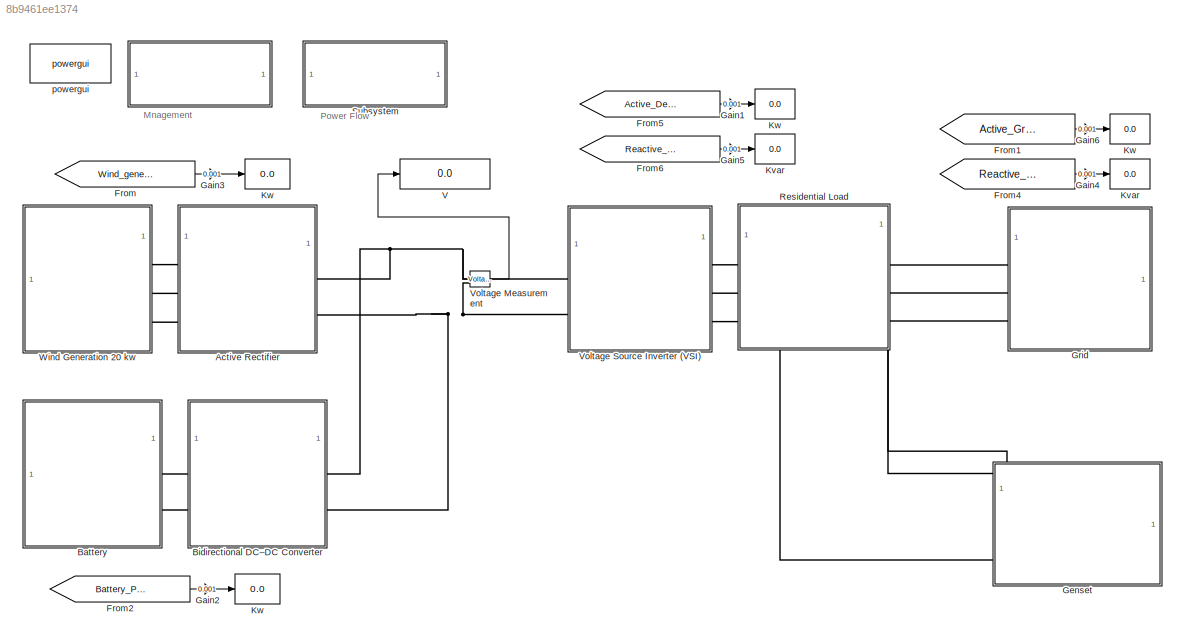
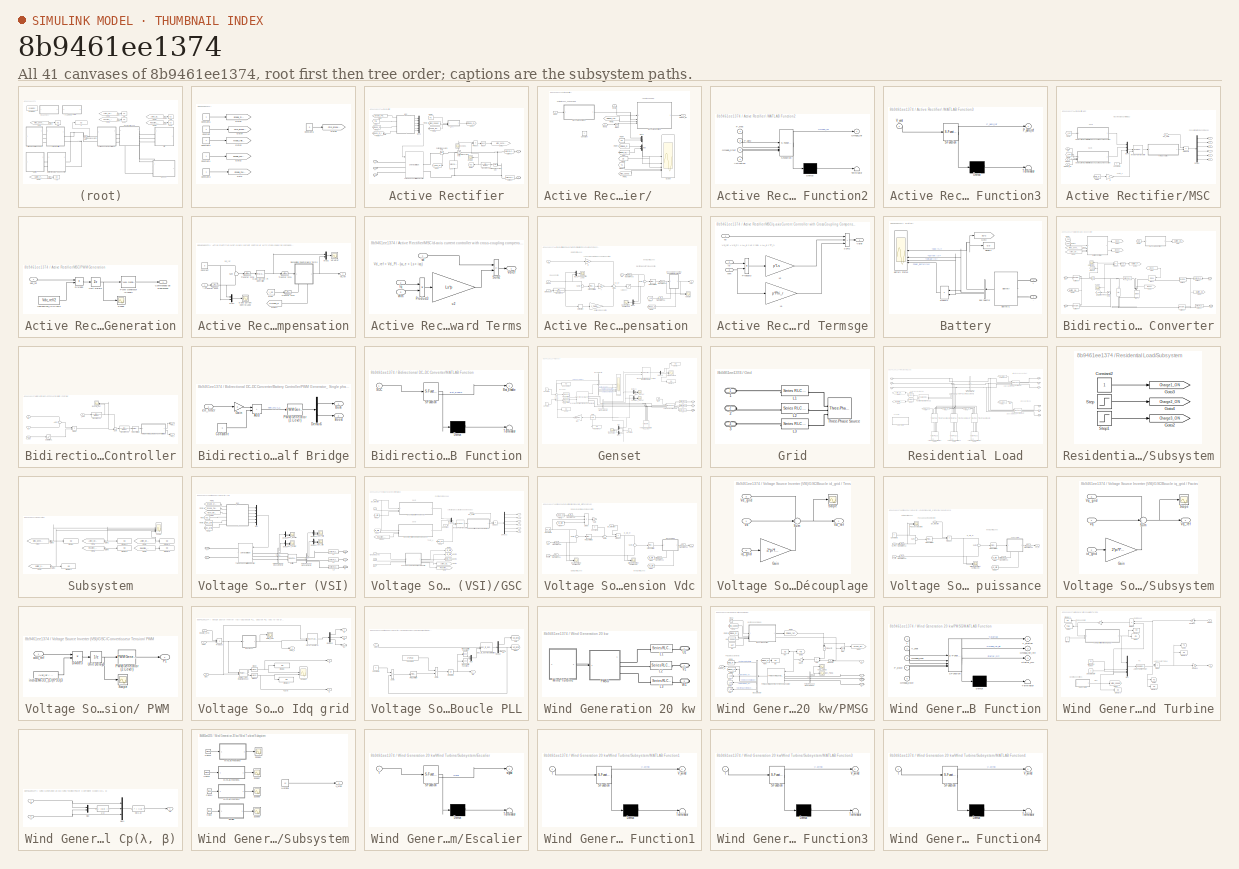
[diagram: thumbnail index - all 41 canvases of the model, root first then tree order]
MODEL slx_8b9461ee1374
KIND model
CONFIG AbsTol = auto
CONFIG EnableMultiTasking = off
CONFIG FixedStep = Ts
CONFIG MaxStep = auto
CONFIG MinStep = auto
CONFIG RelTol = 1e-3
CONFIG SampleTimeConstraint = Unconstrained
CONFIG SolverName = FixedStepAuto
CONFIG StartTime = 0.0
CONFIG StopTime = 6
BLOCK [SubSystem]     
  NameLocation = right
BLOCK [Constant]     /Constant
BLOCK [Constant]     /Constant1
BLOCK [Constant]     /Constant2
BLOCK [Constant]     /Constant3
BLOCK [Constant]     /Constant5
BLOCK [Constant]     /Constant6
  Value = 0
BLOCK [Goto]     /Goto
  GotoTag = Enable_PWM_MSC
  NameLocation = top
  TagVisibility = global
BLOCK [Goto]     /Goto2
  GotoTag = Enable_PWM_GSC
  TagVisibility = global
BLOCK [Goto]     /Goto3
  GotoTag = Mode_Injection_GSC
  TagVisibility = global
BLOCK [Goto]     /Goto4
  GotoTag = Cmd_Breaker_Grid
  TagVisibility = global
BLOCK [Goto]     /Goto5
  GotoTag = Enable_Sync
  TagVisibility = global
BLOCK [Goto]     /Goto6
  GotoTag = Cmd_Breaker_Disel
  NameLocation = top
  TagVisibility = global
BLOCK [SubSystem] Active Rectifier
BLOCK [SubSystem] Active Rectifier/      
BLOCK [Constant] Active Rectifier/      /Constant
BLOCK [From] Active Rectifier/      /From
  GotoTag = Omega_G_ref
  TagVisibility = global
BLOCK [From] Active Rectifier/      /From1
  GotoTag = wind_speed
  TagVisibility = global
BLOCK [From] Active Rectifier/      /From11
  GotoTag = Ta
  TagVisibility = global
BLOCK [From] Active Rectifier/      /From2
  GotoTag = Omega_ref_init
  TagVisibility = global
BLOCK [From] Active Rectifier/      /From4
  GotoTag = Pa
  TagVisibility = global
BLOCK [From] Active Rectifier/      /From7
  GotoTag = Omega_G
  TagVisibility = global
BLOCK [From] Active Rectifier/      /From9
  GotoTag = Cp
  TagVisibility = global
BLOCK [Inport] Active Rectifier/      /Input
  Port = 2
BLOCK [Inport] Active Rectifier/      /Input1
  Port = 3
BLOCK [Inport] Active Rectifier/      /Input2
BLOCK [SubSystem] Active Rectifier/      /MATLAB Function2
  ErrorFcn = Stateflow.Translate.translate
  PermitHierarchicalResolution = ExplicitOnly
  SFBlockType = MATLAB Function
  SystemSampleTime = 0.001
  TreatAsAtomicUnit = on
BLOCK [Demux] Active Rectifier/      /MATLAB Function2/ Demux 
  Outputs = 1
BLOCK [S-Function] Active Rectifier/      /MATLAB Function2/ SFunction 
  EnableBusSupport = on
  FunctionName = sf_sfun
  PortCounts = [4 2]
  SFcnIsStateOwnerBlock = off
  SFunctionDeploymentMode = off
  Tag = Stateflow S-Function 6
BLOCK [Terminator] Active Rectifier/      /MATLAB Function2/ Terminator 
BLOCK [Inport] Active Rectifier/      /MATLAB Function2/Activation
  Port = 4
BLOCK [Inport] Active Rectifier/      /MATLAB Function2/Omega_Start
  Port = 3
BLOCK [Outport] Active Rectifier/      /MATLAB Function2/Omega_ref
BLOCK [Inport] Active Rectifier/      /MATLAB Function2/P_betz
  Port = 2
BLOCK [Inport] Active Rectifier/      /MATLAB Function2/P_mes
BLOCK [SubSystem] Active Rectifier/      /MATLAB Function3
  ErrorFcn = Stateflow.Translate.translate
  PermitHierarchicalResolution = ExplicitOnly
  SFBlockType = MATLAB Function
  SystemSampleTime = 0.001
  TreatAsAtomicUnit = on
BLOCK [Demux] Active Rectifier/      /MATLAB Function3/ Demux 
  Outputs = 1
BLOCK [S-Function] Active Rectifier/      /MATLAB Function3/ SFunction 
  EnableBusSupport = on
  FunctionName = sf_sfun
  PortCounts = [1 2]
  SFcnIsStateOwnerBlock = off
  SFunctionDeploymentMode = off
  Tag = Stateflow S-Function 7
BLOCK [Terminator] Active Rectifier/      /MATLAB Function3/ Terminator 
BLOCK [Outport] Active Rectifier/      /MATLAB Function3/P_aero_ref
BLOCK [Inport] Active Rectifier/      /MATLAB Function3/V_vent
BLOCK [Mux] Active Rectifier/      /Mux
  DisplayOption = bar
  Inputs = 2
BLOCK [Mux] Active Rectifier/      /Mux1
  DisplayOption = bar
  Inputs = 2
BLOCK [Logic] Active Rectifier/      /NOT1
  AllPortsSameDT = off
  IconShape = distinctive
  Operator = NOT
  OutDataTypeStr = boolean
BLOCK [Outport] Active Rectifier/      /Omega_ref
BLOCK [Scope] Active Rectifier/      /Scope
  Floating = off
  NumInputPorts = 5
  ScopeSpecificationString = Simulink.scopes.TimeScopeBlockCfg('CurrentConfiguration', extmgr.ConfigurationSet(extmgr.Configuration('Core','General UI',true,'FigureColor',[1 1 1]),extmgr.Configuration('Core','Source UI',true),extmgr.Configuration('Sources','WiredSimulink',true,'DataLoggingVariableName','ScopeData1'),extmgr.Configuration('Visuals','Time Domain',true,'SerializedDisplays',{struct('MinYLimReal','-3129.69701','Max...<+7612ch>
BLOCK [PMIOPort] Active Rectifier/+
  Port = 4
  Side = Right
BLOCK [PMIOPort] Active Rectifier/-
  Port = 5
  Side = Right
BLOCK [Reference] Active Rectifier/C_dc  REF=spsSeriesRLCBranchLib/Series RLC Branch
  LibrarySourceBlock = sps_lib/Passives/Series RLC Branch
  NameLocation = right
  SourceBlock = spsSeriesRLCBranchLib/Series RLC Branch
  SourceType = Series RLC Branch
BLOCK [Reference] Active Rectifier/Current Measurement1  REF=spsCurrentMeasurementLib/Current Measurement
  LibrarySourceBlock = sps_lib/Sensors and Measurements/Current Measurement
  NameLocation = top
  SourceBlock = spsCurrentMeasurementLib/Current Measurement
  SourceType = Current Measurement
  UserDataPersistent = on
BLOCK [Reference] Active Rectifier/Current Measurement2  REF=spsCurrentMeasurementLib/Current Measurement
  LibrarySourceBlock = sps_lib/Sensors and Measurements/Current Measurement
  NameLocation = top
  SourceBlock = spsCurrentMeasurementLib/Current Measurement
  SourceType = Current Measurement
  UserDataPersistent = on
BLOCK [Reference] Active Rectifier/DC link 1  REF=spsSeriesRLCBranchLib/Series RLC Branch
  LibrarySourceBlock = sps_lib/Passives/Series RLC Branch
  NameLocation = top
  SourceBlock = spsSeriesRLCBranchLib/Series RLC Branch
  SourceType = Series RLC Branch
BLOCK [Reference] Active Rectifier/DC link 2  REF=spsSeriesRLCBranchLib/Series RLC Branch
  LibrarySourceBlock = sps_lib/Passives/Series RLC Branch
  NameLocation = top
  SourceBlock = spsSeriesRLCBranchLib/Series RLC Branch
  SourceType = Series RLC Branch
BLOCK [From] Active Rectifier/From
  GotoTag = Enable_PWM_MSC
  NameLocation = top
  TagVisibility = global
BLOCK [From] Active Rectifier/From1
  GotoTag = Omega_G
  TagVisibility = global
BLOCK [From] Active Rectifier/From3
  GotoTag = wind_speed
  NameLocation = top
  TagVisibility = global
BLOCK [From] Active Rectifier/From5
  GotoTag = Enable_MPPT
  TagVisibility = global
BLOCK [From] Active Rectifier/From6
  GotoTag = Pa
  TagVisibility = global
BLOCK [From] Active Rectifier/From7
  GotoTag = Tm
  TagVisibility = global
BLOCK [From] Active Rectifier/From8
  GotoTag = Omega_G_ref
  TagVisibility = global
BLOCK [Gain] Active Rectifier/Gain
BLOCK [Goto] Active Rectifier/Goto1
  GotoTag = Wind_generation_power
  TagVisibility = global
BLOCK [Goto] Active Rectifier/Goto2
  GotoTag = Vdc
  TagVisibility = global
BLOCK [Goto] Active Rectifier/Goto3
  GotoTag = Omega_G_ref
  TagVisibility = global
BLOCK [Goto] Active Rectifier/Goto9
  GotoTag = I_load_dc
  TagVisibility = global
BLOCK [SubSystem] Active Rectifier/MSC
  PortSchema = {"entries":[{"content":{"sides":[{"content":{},"type":"ConnectorPlacement.EquallySpacedRectSide","uuid":"68bdff09-e8ec-4d6d-b05e-55201ee357f5"},{"content":{"side":"RIGHT"},"type":"ConnectorPlacement.EquallySpacedRectSide","uuid":"a14a2bca-9db8-408e-b5bf-8e3869a2fb13"},{"content":{"connectorIds":["Out1","Out2","Out3","Out4","Out5","Out6"],"side":"TOP"},"type":"ConnectorPlacement.EquallySpacedRectSi...<+402ch>
BLOCK [Outport] Active Rectifier/MSC/ 
BLOCK [Outport] Active Rectifier/MSC/  
  Port = 2
BLOCK [Outport] Active Rectifier/MSC/   
  Port = 3
BLOCK [Outport] Active Rectifier/MSC/    
  Port = 4
BLOCK [Outport] Active Rectifier/MSC/     
  Port = 5
BLOCK [Outport] Active Rectifier/MSC/       
  Port = 6
BLOCK [Constant] Active Rectifier/MSC/Constant2
  Value = 0
BLOCK [Demux] Active Rectifier/MSC/Demux
  Outputs = 6
BLOCK [Inport] Active Rectifier/MSC/En_PWM
BLOCK [From] Active Rectifier/MSC/From1
  GotoTag = I_sq
  TagVisibility = global
BLOCK [From] Active Rectifier/MSC/From2
  GotoTag = I_sd
  TagVisibility = global
BLOCK [From] Active Rectifier/MSC/From6
  GotoTag = theta_m
  TagVisibility = global
BLOCK [Reference] Active Rectifier/MSC/Inverse Park Transform  REF=eeTransforms/Inverse
Park Transform
  LibrarySourceBlock = ee_sl_lib/Mathematical\nTransforms/Inverse\nPark Transform
  SourceBlock = eeTransforms/Inverse\nPark Transform
  SourceType = Inverse Park Transform
BLOCK [Mux] Active Rectifier/MSC/Mux4
  DisplayOption = bar
  Inputs = 3
BLOCK [Inport] Active Rectifier/MSC/Omega
  Port = 3
BLOCK [Inport] Active Rectifier/MSC/Omega_ref
  Port = 4
BLOCK [SubSystem] Active Rectifier/MSC/PWM Generation
BLOCK [Outport] Active Rectifier/MSC/PWM Generation/Commandes de Redresseur
BLOCK [Product] Active Rectifier/MSC/PWM Generation/Divide3
  Inputs = */
BLOCK [Reference] Active Rectifier/MSC/PWM Generation/PWM Generator (2-Level)  REF=spsPWMGenerator2LevelLib/PWM Generator
(2-Level)
  LibrarySourceBlock = sps_lib/Power Electronics/Power Electronics Control/PWM Generator\n(2-Level)
  SourceBlock = spsPWMGenerator2LevelLib/PWM Generator\n(2-Level)
  SourceType = PWM Generator (2-Level)
BLOCK [Scope] Active Rectifier/MSC/PWM Generation/Scope
  Floating = off
  NumInputPorts = 1
  ScopeSpecificationString = Simulink.scopes.TimeScopeBlockCfg('CurrentConfiguration', extmgr.ConfigurationSet(extmgr.Configuration('Core','General UI',true,'DisplayFullSourceName',false,'ShowMainToolbar',true),extmgr.Configuration('Sources','WiredSimulink',true,'DataLogging',false,'DataLoggingVariableName','ScopeData16','DataLoggingLimitDataPoints',false,'DataLoggingMaxPoints','5000','DataLoggingDecimateData',false,'DataLogg...<+2003ch>
BLOCK [UnitDelay] Active Rectifier/MSC/PWM Generation/Unit Delay1
  HasFrameUpgradeWarning = on
  SampleTime = Ts
BLOCK [Inport] Active Rectifier/MSC/PWM Generation/abc_ref
BLOCK [Constant] Active Rectifier/MSC/PWM Generation/indiceM=33_(1//(fr*33)3
  NameLocation = top
  Value = Vdc_ref/2
BLOCK [Product] Active Rectifier/MSC/Product2
BLOCK [Inport] Active Rectifier/MSC/Tm
  Port = 2
BLOCK [SubSystem] Active Rectifier/MSC/d-axis current controller with cross-coupling compensation
BLOCK [Scope] Active Rectifier/MSC/d-axis current controller with cross-coupling compensation/ Vd//Vdref
  Floating = off
  NumInputPorts = 1
  ScopeSpecificationString = Simulink.scopes.TimeScopeBlockCfg('CurrentConfiguration', extmgr.ConfigurationSet(extmgr.Configuration('Core','General UI',true,'FigureColor',[1 1 1]),extmgr.Configuration('Core','Source UI',true),extmgr.Configuration('Sources','WiredSimulink',true,'DataLoggingVariableName','ScopeData1'),extmgr.Configuration('Visuals','Time Domain',true,'SerializedDisplays',{struct('MinYLimReal','-30.15012','MaxYL...<+1853ch>
BLOCK [Constant] Active Rectifier/MSC/d-axis current controller with cross-coupling compensation/Constant
  Value = 0
BLOCK [SubSystem] Active Rectifier/MSC/d-axis current controller with cross-coupling compensation/Decoupling Feedforward Terms
  NameLocation = top
  PortSchema = {"entries":[{"content":{"sides":[{"content":{"connectorIds":["In1"]},"type":"ConnectorPlacement.EquallySpacedRectSide","uuid":"a35b541f-6c91-4579-89f1-6689e9beed7f"},{"content":{"connectorIds":["Out1"],"side":"RIGHT"},"type":"ConnectorPlacement.EquallySpacedRectSide","uuid":"c874527c-990c-4788-aa16-7f8a0c94d194"},{"content":{"side":"TOP"},"type":"ConnectorPlacement.EquallySpacedRectSide","uuid":"b...<+377ch>
BLOCK [Inport] Active Rectifier/MSC/d-axis current controller with cross-coupling compensation/Decoupling Feedforward Terms/Iq
  Port = 2
BLOCK [Product] Active Rectifier/MSC/d-axis current controller with cross-coupling compensation/Decoupling Feedforward Terms/Product3
  OutDataTypeStr = Inherit: Same as first input
  SaturateOnIntegerOverflow = on
BLOCK [Sum] Active Rectifier/MSC/d-axis current controller with cross-coupling compensation/Decoupling Feedforward Terms/Sum2
  IconShape = rectangular
  Inputs = +-
  SaturateOnIntegerOverflow = on
BLOCK [Outport] Active Rectifier/MSC/d-axis current controller with cross-coupling compensation/Decoupling Feedforward Terms/Vdref
BLOCK [Inport] Active Rectifier/MSC/d-axis current controller with cross-coupling compensation/Decoupling Feedforward Terms/Wm
  Port = 3
BLOCK [Gain] Active Rectifier/MSC/d-axis current controller with cross-coupling compensation/Decoupling Feedforward Terms/u2
  Gain = Ls*p
  OutDataTypeStr = Inherit: Same as input
  ParamDataTypeStr = Inherit: Same as input
  SaturateOnIntegerOverflow = on
BLOCK [Inport] Active Rectifier/MSC/d-axis current controller with cross-coupling compensation/Decoupling Feedforward Terms/vd
BLOCK [From] Active Rectifier/MSC/d-axis current controller with cross-coupling compensation/From
  GotoTag = I_sq
  TagVisibility = global
BLOCK [From] Active Rectifier/MSC/d-axis current controller with cross-coupling compensation/From1
  GotoTag = Omega_G
  TagVisibility = global
BLOCK [Inport] Active Rectifier/MSC/d-axis current controller with cross-coupling compensation/I_sd
BLOCK [Mux] Active Rectifier/MSC/d-axis current controller with cross-coupling compensation/Mux1
  DisplayOption = bar
  Inputs = 2
BLOCK [Mux] Active Rectifier/MSC/d-axis current controller with cross-coupling compensation/Mux2
  DisplayOption = bar
  Inputs = 2
BLOCK [Sum] Active Rectifier/MSC/d-axis current controller with cross-coupling compensation/Sum
  Inputs = +-
BLOCK [TransferFcn] Active Rectifier/MSC/d-axis current controller with cross-coupling compensation/Transfer Fcn1
  Denominator = [0.00004 1]
BLOCK [TransferFcn] Active Rectifier/MSC/d-axis current controller with cross-coupling compensation/Transfer Fcn2
  Denominator = [0.00004 1]
BLOCK [TransferFcn] Active Rectifier/MSC/d-axis current controller with cross-coupling compensation/Transfer Fcn3
  Denominator = [0.00004 1]
BLOCK [TransferFcn] Active Rectifier/MSC/d-axis current controller with cross-coupling compensation/Transfer Fcn4
  Denominator = [0.00004 1]
BLOCK [Outport] Active Rectifier/MSC/d-axis current controller with cross-coupling compensation/Vd_ref
BLOCK [Scope] Active Rectifier/MSC/d-axis current controller with cross-coupling compensation/d-axis Current Control Loop
  Floating = off
  NumInputPorts = 1
  ScopeSpecificationString = Simulink.scopes.TimeScopeBlockCfg('CurrentConfiguration', extmgr.ConfigurationSet(extmgr.Configuration('Core','General UI',true,'FigureColor',[1 1 1]),extmgr.Configuration('Core','Source UI',true),extmgr.Configuration('Sources','WiredSimulink',true,'DataLoggingVariableName','ScopeData4'),extmgr.Configuration('Visuals','Time Domain',true,'SerializedDisplays',{struct('MinYLimReal','-1897.36382','Max...<+1789ch>
BLOCK [Reference] Active Rectifier/MSC/d-axis current controller with cross-coupling compensation/d-axis Current PI Controller  REF=slpidlib/PID Controller
  LibrarySourceBlock = simulink/Continuous/PID Controller
  SourceBlock = slpidlib/PID Controller
  SourceType = PID 1dof
BLOCK [Gain] Active Rectifier/MSC/f2
  Gain = p
  OutDataTypeStr = Inherit: Same as input
  ParamDataTypeStr = Inherit: Same as input
  SaturateOnIntegerOverflow = on
BLOCK [SubSystem] Active Rectifier/MSC/q-axis Current Controller with Cross-Coupling Compensation 
BLOCK [Saturate] Active Rectifier/MSC/q-axis Current Controller with Cross-Coupling Compensation /  
  LowerLimit = -300
  UpperLimit = 0
BLOCK [Derivative] Active Rectifier/MSC/q-axis Current Controller with Cross-Coupling Compensation /Derivative
BLOCK [SubSystem] Active Rectifier/MSC/q-axis Current Controller with Cross-Coupling Compensation /DécouplaDecoupling Feedforward Termsge
  NameLocation = top
  PortSchema = {"entries":[{"content":{"sides":[{"content":{"connectorIds":["In1"]},"type":"ConnectorPlacement.EquallySpacedRectSide","uuid":"a35b541f-6c91-4579-89f1-6689e9beed7f"},{"content":{"connectorIds":["Out1"],"side":"RIGHT"},"type":"ConnectorPlacement.EquallySpacedRectSide","uuid":"c874527c-990c-4788-aa16-7f8a0c94d194"},{"content":{"side":"TOP"},"type":"ConnectorPlacement.EquallySpacedRectSide","uuid":"b...<+377ch>
BLOCK [Inport] Active Rectifier/MSC/q-axis Current Controller with Cross-Coupling Compensation /DécouplaDecoupling Feedforward Termsge/Id
  Port = 2
BLOCK [Product] Active Rectifier/MSC/q-axis Current Controller with Cross-Coupling Compensation /DécouplaDecoupling Feedforward Termsge/Product3
  OutDataTypeStr = Inherit: Same as first input
  SaturateOnIntegerOverflow = on
BLOCK [Sum] Active Rectifier/MSC/q-axis Current Controller with Cross-Coupling Compensation /DécouplaDecoupling Feedforward Termsge/Sum2
  IconShape = rectangular
  Inputs = +++
  SaturateOnIntegerOverflow = on
BLOCK [Outport] Active Rectifier/MSC/q-axis Current Controller with Cross-Coupling Compensation /DécouplaDecoupling Feedforward Termsge/Vqref
BLOCK [Inport] Active Rectifier/MSC/q-axis Current Controller with Cross-Coupling Compensation /DécouplaDecoupling Feedforward Termsge/Wm
  Port = 3
BLOCK [Gain] Active Rectifier/MSC/q-axis Current Controller with Cross-Coupling Compensation /DécouplaDecoupling Feedforward Termsge/u1
  Gain = p*Phi_r
  OutDataTypeStr = Inherit: Same as input
  ParamDataTypeStr = Inherit: Same as input
  SaturateOnIntegerOverflow = on
BLOCK [Gain] Active Rectifier/MSC/q-axis Current Controller with Cross-Coupling Compensation /DécouplaDecoupling Feedforward Termsge/u2
  Gain = p*Ls
  OutDataTypeStr = Inherit: Same as input
  ParamDataTypeStr = Inherit: Same as input
  SaturateOnIntegerOverflow = on
BLOCK [Inport] Active Rectifier/MSC/q-axis Current Controller with Cross-Coupling Compensation /DécouplaDecoupling Feedforward Termsge/vq
BLOCK [From] Active Rectifier/MSC/q-axis Current Controller with Cross-Coupling Compensation /From
  GotoTag = I_sd
  TagVisibility = global
BLOCK [From] Active Rectifier/MSC/q-axis Current Controller with Cross-Coupling Compensation /From1
  GotoTag = Omega_G
  TagVisibility = global
BLOCK [Mux] Active Rectifier/MSC/q-axis Current Controller with Cross-Coupling Compensation /Mux1
  DisplayOption = bar
  Inputs = 2
BLOCK [Mux] Active Rectifier/MSC/q-axis Current Controller with Cross-Coupling Compensation /Mux2
  DisplayOption = bar
  Inputs = 2
BLOCK [Inport] Active Rectifier/MSC/q-axis Current Controller with Cross-Coupling Compensation /Omega
  Port = 3
BLOCK [Inport] Active Rectifier/MSC/q-axis Current Controller with Cross-Coupling Compensation /Omega_ref
  Port = 4
BLOCK [Reference] Active Rectifier/MSC/q-axis Current Controller with Cross-Coupling Compensation /PID Controller1  REF=slpidlib/PID Controller
  LibrarySourceBlock = simulink/Continuous/PID Controller
  SourceBlock = slpidlib/PID Controller
  SourceType = PID 1dof
BLOCK [Reference] Active Rectifier/MSC/q-axis Current Controller with Cross-Coupling Compensation /PID Controller2  REF=slpidlib/PID Controller
  LibrarySourceBlock = simulink/Continuous/PID Controller
  SourceBlock = slpidlib/PID Controller
  SourceType = PID 1dof
BLOCK [Scope] Active Rectifier/MSC/q-axis Current Controller with Cross-Coupling Compensation /Speed Control Loop
  Floating = off
  NumInputPorts = 1
  ScopeSpecificationString = Simulink.scopes.TimeScopeBlockCfg('CurrentConfiguration', extmgr.ConfigurationSet(extmgr.Configuration('Core','General UI',true,'FigureColor',[1 1 1]),extmgr.Configuration('Core','Source UI',true),extmgr.Configuration('Sources','WiredSimulink',true,'DataLoggingVariableName','ScopeData1'),extmgr.Configuration('Visuals','Time Domain',true,'SerializedDisplays',{struct('MinYLimReal','-23.05942','MaxYL...<+1810ch>
BLOCK [Sum] Active Rectifier/MSC/q-axis Current Controller with Cross-Coupling Compensation /Sum
  Inputs = +++
BLOCK [Sum] Active Rectifier/MSC/q-axis Current Controller with Cross-Coupling Compensation /Sum1
  Inputs = -+
BLOCK [Sum] Active Rectifier/MSC/q-axis Current Controller with Cross-Coupling Compensation /Sum2
  Inputs = -+
BLOCK [Inport] Active Rectifier/MSC/q-axis Current Controller with Cross-Coupling Compensation /Tm
BLOCK [TransferFcn] Active Rectifier/MSC/q-axis Current Controller with Cross-Coupling Compensation /Transfer Fcn
  Denominator = [0.1 1]
BLOCK [TransferFcn] Active Rectifier/MSC/q-axis Current Controller with Cross-Coupling Compensation /Transfer Fcn1
  Denominator = [0.00004 1]
BLOCK [TransferFcn] Active Rectifier/MSC/q-axis Current Controller with Cross-Coupling Compensation /Transfer Fcn2
  Denominator = [0.00004 1]
BLOCK [TransferFcn] Active Rectifier/MSC/q-axis Current Controller with Cross-Coupling Compensation /Transfer Fcn3
  Denominator = [0.00004 1]
BLOCK [Scope] Active Rectifier/MSC/q-axis Current Controller with Cross-Coupling Compensation /Vq//Vqref
  Floating = off
  NumInputPorts = 2
  ScopeSpecificationString = Simulink.scopes.TimeScopeBlockCfg('CurrentConfiguration', extmgr.ConfigurationSet(extmgr.Configuration('Core','General UI',true,'FigureColor',[1 1 1]),extmgr.Configuration('Core','Source UI',true),extmgr.Configuration('Sources','WiredSimulink',true,'DataLoggingVariableName','ScopeData7'),extmgr.Configuration('Visuals','Time Domain',true,'SerializedDisplays',{struct('MinYLimReal','-32.17558','MaxYL...<+1866ch>
BLOCK [Outport] Active Rectifier/MSC/q-axis Current Controller with Cross-Coupling Compensation /Vqref
BLOCK [Gain] Active Rectifier/MSC/q-axis Current Controller with Cross-Coupling Compensation /f
  Gain = 1/Kt
  OutDataTypeStr = Inherit: Same as input
  ParamDataTypeStr = Inherit: Same as input
  SaturateOnIntegerOverflow = on
BLOCK [Gain] Active Rectifier/MSC/q-axis Current Controller with Cross-Coupling Compensation /f1
  Gain = J_PMSG / Kt
  OutDataTypeStr = Inherit: Same as input
  ParamDataTypeStr = Inherit: Same as input
  SaturateOnIntegerOverflow = on
BLOCK [Gain] Active Rectifier/MSC/q-axis Current Controller with Cross-Coupling Compensation /f2
  Gain = 1/Kt
  OutDataTypeStr = Inherit: Same as input
  ParamDataTypeStr = Inherit: Same as input
  SaturateOnIntegerOverflow = on
BLOCK [Inport] Active Rectifier/MSC/q-axis Current Controller with Cross-Coupling Compensation /isq
  Port = 2
BLOCK [Scope] Active Rectifier/MSC/q-axis Current Controller with Cross-Coupling Compensation /q-axis Current Control Loop
  Floating = off
  NumInputPorts = 1
  ScopeSpecificationString = Simulink.scopes.TimeScopeBlockCfg('CurrentConfiguration', extmgr.ConfigurationSet(extmgr.Configuration('Core','General UI',true,'FigureColor',[1 1 1]),extmgr.Configuration('Core','Source UI',true),extmgr.Configuration('Sources','WiredSimulink',true,'DataLoggingVariableName','ScopeData8'),extmgr.Configuration('Visuals','Time Domain',true,'SerializedDisplays',{struct('MinYLimReal','-250.35515','MaxY...<+1781ch>
BLOCK [Reference] Active Rectifier/Mean  REF=spsMeanLib/Mean
  LibrarySourceBlock = sps_lib/Sensors and Measurements/Mean
  SourceBlock = spsMeanLib/Mean
  SourceType = Mean
BLOCK [Mux] Active Rectifier/Mux1
  DisplayOption = bar
  Inputs = 6
BLOCK [Product] Active Rectifier/Product
BLOCK [Scope] Active Rectifier/Scope
  Floating = off
  NumInputPorts = 1
  ScopeSpecificationString = Simulink.scopes.TimeScopeBlockCfg('CurrentConfiguration', extmgr.ConfigurationSet(extmgr.Configuration('Core','General UI',true,'FigureColor',[1 1 1]),extmgr.Configuration('Core','Source UI',true),extmgr.Configuration('Sources','WiredSimulink',true,'DataLoggingVariableName','ScopeData1'),extmgr.Configuration('Visuals','Time Domain',true,'SerializedDisplays',{struct('MinYLimReal','-94.18682','MaxYL...<+1624ch>
BLOCK [Scope] Active Rectifier/Scope1
  Floating = off
  NumInputPorts = 1
  ScopeSpecificationString = Simulink.scopes.TimeScopeBlockCfg('CurrentConfiguration', extmgr.ConfigurationSet(extmgr.Configuration('Core','General UI',true,'FigureColor',[1 1 1]),extmgr.Configuration('Core','Source UI',true),extmgr.Configuration('Sources','WiredSimulink',true,'DataLoggingVariableName','ScopeData1'),extmgr.Configuration('Visuals','Time Domain',true,'SerializedDisplays',{struct('MinYLimReal','-85.70447','MaxYL...<+1621ch>
BLOCK [Reference] Active Rectifier/Three-Phase Full-Bridge Inverter  REF=spsUniversalBridgeLib/Universal Bridge
  SourceBlock = spsUniversalBridgeLib/Universal Bridge
  SourceType = Universal Bridge
BLOCK [TransferFcn] Active Rectifier/Transfer Fcn2
  Denominator = [1e-6 1]
BLOCK [PMIOPort] Active Rectifier/U
  Side = Left
BLOCK [PMIOPort] Active Rectifier/V
  Port = 2
  Side = Left
BLOCK [Reference] Active Rectifier/Voltage Measurement  REF=spsVoltageMeasurementLib/Voltage Measurement
  LibrarySourceBlock = sps_lib/Sensors and Measurements/Voltage Measurement
  NameLocation = top
  SourceBlock = spsVoltageMeasurementLib/Voltage Measurement
  SourceType = Voltage Measurement
  UserDataPersistent = on
BLOCK [PMIOPort] Active Rectifier/W
  Port = 3
  Side = Left
BLOCK [SubSystem] Battery
BLOCK [PMIOPort] Battery/+
  NameLocation = top
  Side = Right
BLOCK [PMIOPort] Battery/-
  NameLocation = top
  Port = 2
  Side = Right
BLOCK [Scope] Battery/Battery Status
  Floating = off
  NumInputPorts = 4
  ScopeSpecificationString = Simulink.scopes.TimeScopeBlockCfg('CurrentConfiguration', extmgr.ConfigurationSet(extmgr.Configuration('Core','General UI',true,'FigureColor',[1 1 1]),extmgr.Configuration('Core','Source UI',true),extmgr.Configuration('Sources','WiredSimulink',true,'DataLoggingVariableName','ScopeData2','DataLoggingSaveFormat','Array','DataLoggingDecimation','1'),extmgr.Configuration('Visuals','Time Domain',true,'...<+4099ch>
BLOCK [Reference] Battery/Battery1  REF=spsBatteryLib/Battery
  LibrarySourceBlock = electricdrivelib/Extra Sources/Battery
  NameLocation = top
  SourceBlock = spsBatteryLib/Battery
  SourceType = Battery
BLOCK [BusSelector] Battery/Bus Selector
  NameLocation = top
  OutputSignals = SOC (%),Current (A),Voltage (V)
BLOCK [Display] Battery/Display4
  Decimation = 1
  Format = bank
BLOCK [Goto] Battery/Goto
  GotoTag = SOC
  TagVisibility = global
BLOCK [Product] Battery/Product1
  NameLocation = top
  RndMeth = Zero
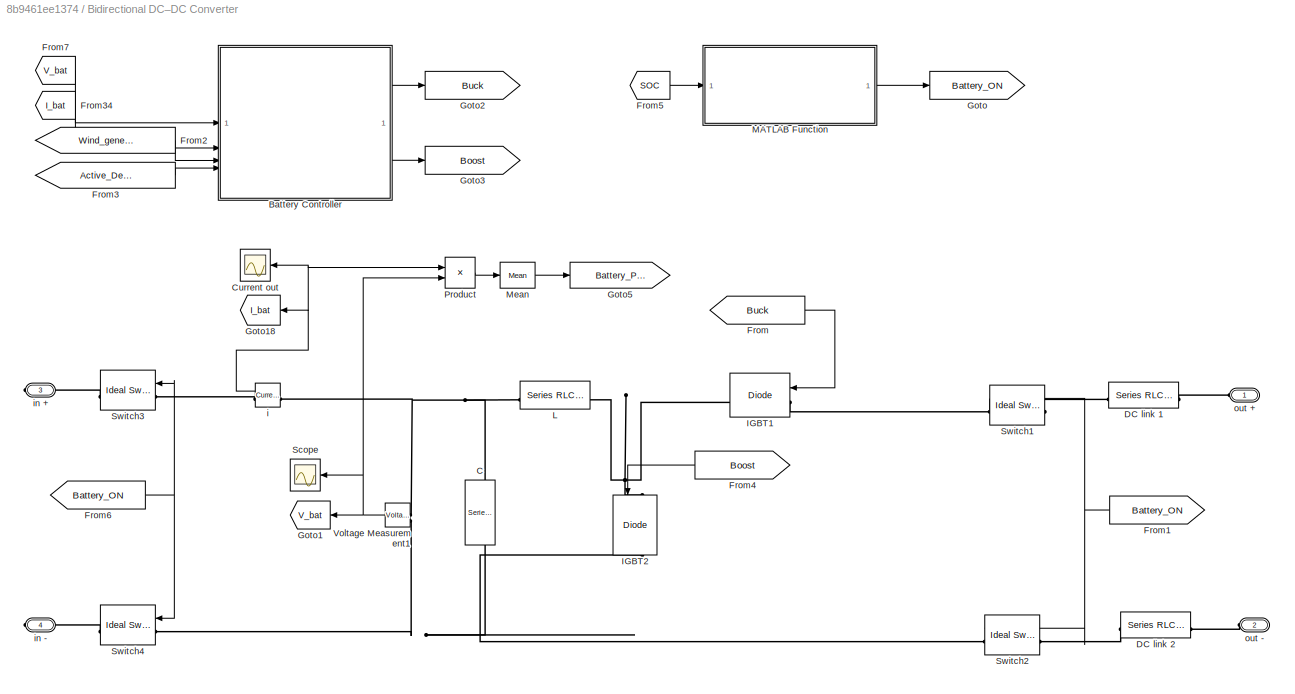
BLOCK [SubSystem] Bidirectional DC–DC Converter
BLOCK [SubSystem] Bidirectional DC–DC Converter/Battery Controller
BLOCK [Sum] Bidirectional DC–DC Converter/Battery Controller/Add2
  Inputs = +-
  NameLocation = top
BLOCK [Scope] Bidirectional DC–DC Converter/Battery Controller/Boucle I_bat
  Floating = off
  NumInputPorts = 2
  ScopeSpecificationString = Simulink.scopes.TimeScopeBlockCfg('CurrentConfiguration', extmgr.ConfigurationSet(extmgr.Configuration('Core','General UI',true,'FigureColor',[1 1 1]),extmgr.Configuration('Core','Source UI',true),extmgr.Configuration('Sources','WiredSimulink',true,'DataLoggingVariableName','ScopeData3'),extmgr.Configuration('Visuals','Time Domain',true,'SerializedDisplays',{struct('MinYLimReal','-11228572.20786',...<+1738ch>
BLOCK [Product] Bidirectional DC–DC Converter/Battery Controller/Divide
  Inputs = */
BLOCK [Inport] Bidirectional DC–DC Converter/Battery Controller/I_bat
  Port = 2
BLOCK [Inport] Bidirectional DC–DC Converter/Battery Controller/P1
  Port = 3
BLOCK [Inport] Bidirectional DC–DC Converter/Battery Controller/P2
  Port = 4
BLOCK [Reference] Bidirectional DC–DC Converter/Battery Controller/PID Controller3  REF=slpidlib/PID Controller
  SourceBlock = slpidlib/PID Controller
  SourceType = PID 1dof
BLOCK [SubSystem] Bidirectional DC–DC Converter/Battery Controller/PWM Generator_ Single phase Half Bridge
BLOCK [Sum] Bidirectional DC–DC Converter/Battery Controller/PWM Generator_ Single phase Half Bridge/Add
  IconShape = rectangular
BLOCK [Outport] Bidirectional DC–DC Converter/Battery Controller/PWM Generator_ Single phase Half Bridge/Boost
  Port = 2
BLOCK [Outport] Bidirectional DC–DC Converter/Battery Controller/PWM Generator_ Single phase Half Bridge/Buck
BLOCK [Constant] Bidirectional DC–DC Converter/Battery Controller/PWM Generator_ Single phase Half Bridge/Constant
  Value = -1
BLOCK [Demux] Bidirectional DC–DC Converter/Battery Controller/PWM Generator_ Single phase Half Bridge/Demux5
  Outputs = 2
BLOCK [Gain] Bidirectional DC–DC Converter/Battery Controller/PWM Generator_ Single phase Half Bridge/Gain
  Gain = 2
BLOCK [Reference] Bidirectional DC–DC Converter/Battery Controller/PWM Generator_ Single phase Half Bridge/PWM Generator (2-Level)  REF=spsPWMGenerator2LevelLib/PWM Generator
(2-Level)
  LibrarySourceBlock = sps_lib/Power Electronics/Power Electronics Control/PWM Generator\n(2-Level)
  SourceBlock = spsPWMGenerator2LevelLib/PWM Generator\n(2-Level)
  SourceType = PWM Generator (2-Level)
BLOCK [Inport] Bidirectional DC–DC Converter/Battery Controller/PWM Generator_ Single phase Half Bridge/err_filter
BLOCK [Outport] Bidirectional DC–DC Converter/Battery Controller/PWM_1
  InitialOutput = 0
  NameLocation = top
  OutputWhenDisabled = reset
  VectorParamsAs1DForOutWhenUnconnected = off
BLOCK [Outport] Bidirectional DC–DC Converter/Battery Controller/PWM_2
  InitialOutput = 0
  OutputWhenDisabled = reset
  Port = 2
  VectorParamsAs1DForOutWhenUnconnected = off
BLOCK [Saturate] Bidirectional DC–DC Converter/Battery Controller/Saturation1
  LowerLimit = 0.001
  UpperLimit = 700
BLOCK [Sum] Bidirectional DC–DC Converter/Battery Controller/Sum
  Inputs = -+|
  NameLocation = top
BLOCK [TransferFcn] Bidirectional DC–DC Converter/Battery Controller/Transfer Fcn3
  Denominator = [1e-6 1]
BLOCK [TransferFcn] Bidirectional DC–DC Converter/Battery Controller/Transfer Fcn4
  Denominator = [1e-6 1]
BLOCK [Inport] Bidirectional DC–DC Converter/Battery Controller/V_bat
BLOCK [Reference] Bidirectional DC–DC Converter/C  REF=spsSeriesRLCBranchLib/Series RLC Branch
  LibrarySourceBlock = sps_lib/Passives/Series RLC Branch
  NameLocation = left
  SourceBlock = spsSeriesRLCBranchLib/Series RLC Branch
  SourceType = Series RLC Branch
BLOCK [Scope] Bidirectional DC–DC Converter/Current out
  Floating = off
  NameLocation = left
  NumInputPorts = 1
  ScopeSpecificationString = Simulink.scopes.TimeScopeBlockCfg('CurrentConfiguration', extmgr.ConfigurationSet(extmgr.Configuration('Core','General UI',true),extmgr.Configuration('Core','Source UI',true),extmgr.Configuration('Sources','WiredSimulink',true,'DataLoggingVariableName','ScopeData1'),extmgr.Configuration('Visuals','Time Domain',true,'SerializedDisplays',{struct('MinYLimReal','-0.000243276','MaxYLimReal','-0.0002432...<+1580ch>
BLOCK [Reference] Bidirectional DC–DC Converter/DC link 1  REF=spsSeriesRLCBranchLib/Series RLC Branch
  LibrarySourceBlock = sps_lib/Passives/Series RLC Branch
  NameLocation = top
  SourceBlock = spsSeriesRLCBranchLib/Series RLC Branch
  SourceType = Series RLC Branch
BLOCK [Reference] Bidirectional DC–DC Converter/DC link 2  REF=spsSeriesRLCBranchLib/Series RLC Branch
  LibrarySourceBlock = sps_lib/Passives/Series RLC Branch
  NameLocation = top
  SourceBlock = spsSeriesRLCBranchLib/Series RLC Branch
  SourceType = Series RLC Branch
BLOCK [From] Bidirectional DC–DC Converter/From
  GotoTag = Buck
  NameLocation = top
  TagVisibility = global
BLOCK [From] Bidirectional DC–DC Converter/From1
  GotoTag = Battery_ON
  TagVisibility = global
BLOCK [From] Bidirectional DC–DC Converter/From2
  GotoTag = Wind_generation_power
  NameLocation = top
  TagVisibility = global
BLOCK [From] Bidirectional DC–DC Converter/From3
  GotoTag = Active_Demand_Power
  NameLocation = top
  TagVisibility = global
BLOCK [From] Bidirectional DC–DC Converter/From34
  GotoTag = I_bat
  TagVisibility = global
BLOCK [From] Bidirectional DC–DC Converter/From4
  GotoTag = Boost
  TagVisibility = global
BLOCK [From] Bidirectional DC–DC Converter/From5
  GotoTag = SOC
  TagVisibility = global
BLOCK [From] Bidirectional DC–DC Converter/From6
  GotoTag = Battery_ON
  TagVisibility = global
BLOCK [From] Bidirectional DC–DC Converter/From7
  GotoTag = V_bat
  NameLocation = top
  TagVisibility = global
BLOCK [Goto] Bidirectional DC–DC Converter/Goto
  GotoTag = Battery_ON
  TagVisibility = global
BLOCK [Goto] Bidirectional DC–DC Converter/Goto1
  GotoTag = V_bat
  TagVisibility = global
BLOCK [Goto] Bidirectional DC–DC Converter/Goto18
  GotoTag = I_bat
  TagVisibility = global
BLOCK [Goto] Bidirectional DC–DC Converter/Goto2
  GotoTag = Buck
  TagVisibility = global
BLOCK [Goto] Bidirectional DC–DC Converter/Goto3
  GotoTag = Boost
  TagVisibility = global
BLOCK [Goto] Bidirectional DC–DC Converter/Goto5
  GotoTag = Battery_Power
  TagVisibility = global
BLOCK [Reference] Bidirectional DC–DC Converter/IGBT1  REF=spsIGBTDiodeLib/IGBT//Diode
  LibrarySourceBlock = sps_lib/Power Electronics/IGBT//Diode
  SourceBlock = spsIGBTDiodeLib/IGBT//Diode
  SourceType = IGBT/Diode
BLOCK [Reference] Bidirectional DC–DC Converter/IGBT2  REF=spsIGBTDiodeLib/IGBT//Diode
  LibrarySourceBlock = sps_lib/Power Electronics/IGBT//Diode
  NameLocation = right
  SourceBlock = spsIGBTDiodeLib/IGBT//Diode
  SourceType = IGBT/Diode
BLOCK [Reference] Bidirectional DC–DC Converter/L  REF=spsSeriesRLCBranchLib/Series RLC Branch
  LibrarySourceBlock = sps_lib/Passives/Series RLC Branch
  NameLocation = top
  SourceBlock = spsSeriesRLCBranchLib/Series RLC Branch
  SourceType = Series RLC Branch
BLOCK [SubSystem] Bidirectional DC–DC Converter/MATLAB Function
  ErrorFcn = Stateflow.Translate.translate
  PermitHierarchicalResolution = ExplicitOnly
  SFBlockType = MATLAB Function
  TreatAsAtomicUnit = on
BLOCK [Demux] Bidirectional DC–DC Converter/MATLAB Function/ Demux 
  Outputs = 1
BLOCK [S-Function] Bidirectional DC–DC Converter/MATLAB Function/ SFunction 
  EnableBusSupport = on
  FunctionName = sf_sfun
  PortCounts = [1 2]
  SFcnIsStateOwnerBlock = off
  SFunctionDeploymentMode = off
  Tag = Stateflow S-Function 1
BLOCK [Terminator] Bidirectional DC–DC Converter/MATLAB Function/ Terminator 
BLOCK [Outport] Bidirectional DC–DC Converter/MATLAB Function/Bat_Enable
BLOCK [Inport] Bidirectional DC–DC Converter/MATLAB Function/SOC
BLOCK [Reference] Bidirectional DC–DC Converter/Mean  REF=spsMeanLib/Mean
  LibrarySourceBlock = sps_lib/Sensors and Measurements/Mean
  SourceBlock = spsMeanLib/Mean
  SourceType = Mean
BLOCK [Product] Bidirectional DC–DC Converter/Product
BLOCK [Scope] Bidirectional DC–DC Converter/Scope
  Floating = off
  NumInputPorts = 1
  ScopeSpecificationString = Simulink.scopes.TimeScopeBlockCfg('CurrentConfiguration', extmgr.ConfigurationSet(extmgr.Configuration('Core','General UI',true),extmgr.Configuration('Core','Source UI',true),extmgr.Configuration('Sources','WiredSimulink',true,'DataLoggingVariableName','ScopeData2'),extmgr.Configuration('Visuals','Time Domain',true,'SerializedDisplays',{struct('MinYLimReal','-66.21031','MaxYLimReal','532.66937','Y...<+1549ch>
BLOCK [Reference] Bidirectional DC–DC Converter/Switch1  REF=spsIdealSwitchLib/Ideal Switch
  LibrarySourceBlock = sps_lib/Power Electronics/Ideal Switch
  NameLocation = top
  SourceBlock = spsIdealSwitchLib/Ideal Switch
  SourceType = Ideal Switch
BLOCK [Reference] Bidirectional DC–DC Converter/Switch2  REF=spsIdealSwitchLib/Ideal Switch
  LibrarySourceBlock = sps_lib/Power Electronics/Ideal Switch
  NameLocation = top
  SourceBlock = spsIdealSwitchLib/Ideal Switch
  SourceType = Ideal Switch
BLOCK [Reference] Bidirectional DC–DC Converter/Switch3  REF=spsIdealSwitchLib/Ideal Switch
  LibrarySourceBlock = sps_lib/Power Electronics/Ideal Switch
  NameLocation = top
  SourceBlock = spsIdealSwitchLib/Ideal Switch
  SourceType = Ideal Switch
BLOCK [Reference] Bidirectional DC–DC Converter/Switch4  REF=spsIdealSwitchLib/Ideal Switch
  LibrarySourceBlock = sps_lib/Power Electronics/Ideal Switch
  NameLocation = top
  SourceBlock = spsIdealSwitchLib/Ideal Switch
  SourceType = Ideal Switch
BLOCK [Reference] Bidirectional DC–DC Converter/Voltage Measurement1  REF=spsVoltageMeasurementLib/Voltage Measurement
  LibrarySourceBlock = sps_lib/Sensors and Measurements/Voltage Measurement
  SourceBlock = spsVoltageMeasurementLib/Voltage Measurement
  SourceType = Voltage Measurement
  UserDataPersistent = on
BLOCK [Reference] Bidirectional DC–DC Converter/i  REF=spsCurrentMeasurementLib/Current Measurement
  LibrarySourceBlock = sps_lib/Sensors and Measurements/Current Measurement
  SourceBlock = spsCurrentMeasurementLib/Current Measurement
  SourceType = Current Measurement
BLOCK [PMIOPort] Bidirectional DC–DC Converter/in +
  Port = 3
  Side = Right
BLOCK [PMIOPort] Bidirectional DC–DC Converter/in -
  Port = 4
  Side = Right
BLOCK [PMIOPort] Bidirectional DC–DC Converter/out +
  Side = Left
BLOCK [PMIOPort] Bidirectional DC–DC Converter/out -
  Port = 2
  Side = Left
BLOCK [From] From
  GotoTag = Wind_generation_power
  NameLocation = top
  TagVisibility = global
BLOCK [From] From1
  GotoTag = Active_Grid_Power
  TagVisibility = global
BLOCK [From] From2
  GotoTag = Battery_Power
  TagVisibility = global
BLOCK [From] From4
  GotoTag = Reactive_Grid_Power
  TagVisibility = global
BLOCK [From] From5
  GotoTag = Active_Demand_Power
  TagVisibility = global
BLOCK [From] From6
  GotoTag = Reactive_Demand_Power
  TagVisibility = global
BLOCK [Gain] Gain1
  Gain = 0.001
BLOCK [Gain] Gain2
  Gain = 0.001
BLOCK [Gain] Gain3
  Gain = 0.001
BLOCK [Gain] Gain4
  Gain = 0.001
BLOCK [Gain] Gain5
  Gain = 0.001
BLOCK [Gain] Gain6
  Gain = 0.001
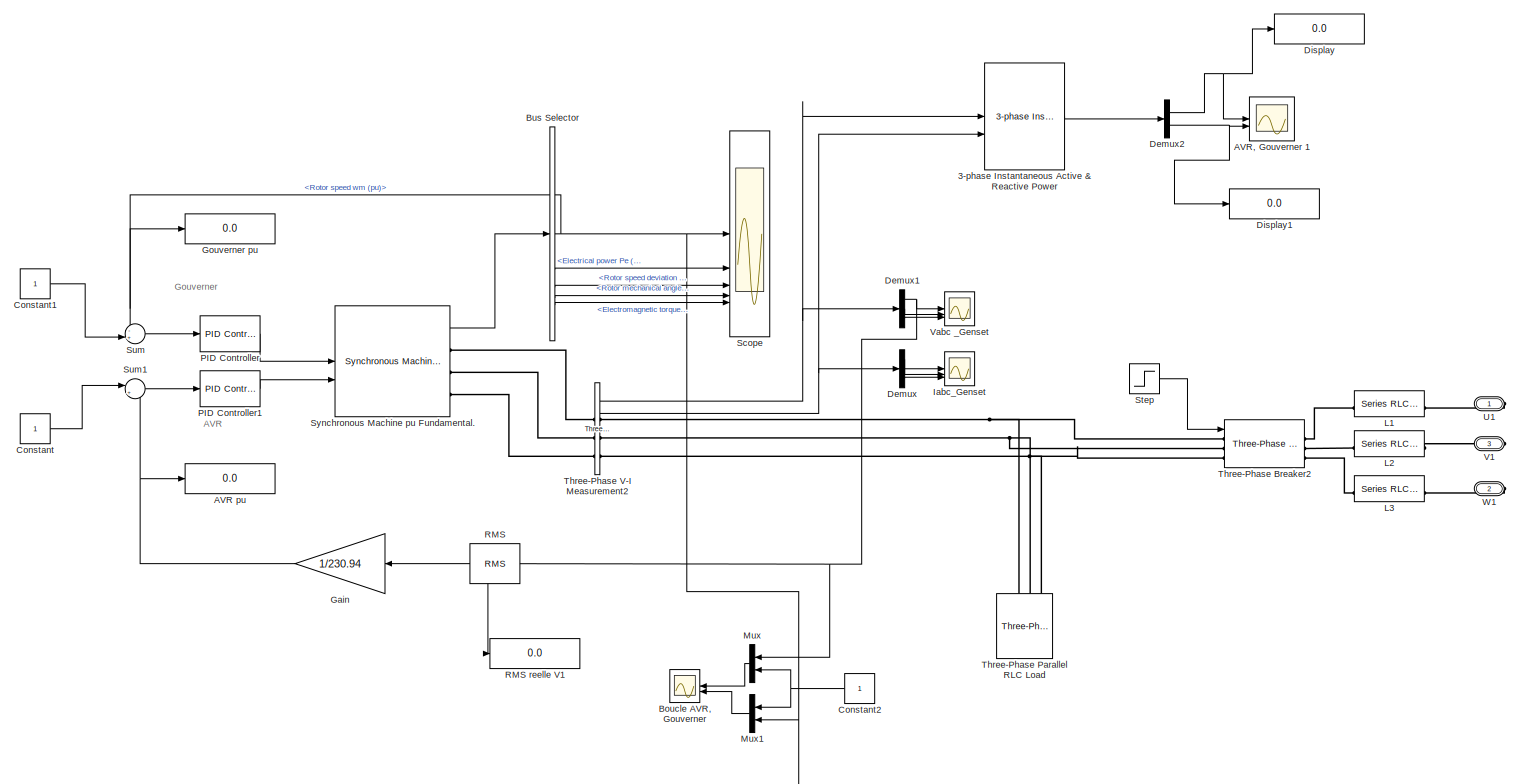
[diagram: Genset - part 1/1, most of the canvas]
BLOCK [SubSystem] Genset
BLOCK [Reference] Genset/3-phase Instantaneous Active & Reactive Power  REF=powerlib_extras/Measurements/3-phase 
Instantaneous 
Active & Reactive Power
  SourceBlock = powerlib_extras/Measurements/3-phase \nInstantaneous \nActive & Reactive Power
  SourceType = 3-phase instantaneous active and reactive power
BLOCK [Display] Genset/AVR pu
  Decimation = 1
BLOCK [Scope] Genset/AVR, Gouverner 1
  Floating = off
  NumInputPorts = 2
  ScopeSpecificationString = Simulink.scopes.TimeScopeBlockCfg('CurrentConfiguration', extmgr.ConfigurationSet(extmgr.Configuration('Core','General UI',true,'FigureColor',[1 1 1]),extmgr.Configuration('Core','Source UI',true),extmgr.Configuration('Sources','WiredSimulink',true,'DataLoggingVariableName','ScopeData2'),extmgr.Configuration('Visuals','Time Domain',true,'SerializedDisplays',{struct('MinYLimReal','-213.32724','MaxY...<+2634ch>
BLOCK [Scope] Genset/Boucle AVR, Gouverner 
  Floating = off
  NameLocation = top
  NumInputPorts = 2
  ScopeSpecificationString = Simulink.scopes.TimeScopeBlockCfg('CurrentConfiguration', extmgr.ConfigurationSet(extmgr.Configuration('Core','General UI',true,'FigureColor',[1 1 1]),extmgr.Configuration('Core','Source UI',true),extmgr.Configuration('Sources','WiredSimulink',true,'DataLoggingVariableName','ScopeData1'),extmgr.Configuration('Visuals','Time Domain',true,'SerializedDisplays',{struct('MinYLimReal','0.81743','MaxYLim...<+2657ch>
BLOCK [BusSelector] Genset/Bus Selector
  OutputSignals = Mechanical.Rotor speed  wm (pu),Mechanical.Electrical power  Pe (pu),Mechanical.Rotor speed deviation  dw (pu),Mechanical.Rotor mechanical angle  theta (deg),Mechanical.Electromagnetic torque  Te (pu)
BLOCK [Constant] Genset/Constant
BLOCK [Constant] Genset/Constant1
BLOCK [Constant] Genset/Constant2
  NameLocation = top
BLOCK [Demux] Genset/Demux
  Outputs = 3
BLOCK [Demux] Genset/Demux1
  Outputs = 3
BLOCK [Demux] Genset/Demux2
  Outputs = 2
BLOCK [Display] Genset/Display
  Decimation = 1
  Format = bank
BLOCK [Display] Genset/Display1
  Decimation = 1
  Format = bank
BLOCK [Gain] Genset/Gain
  Gain = 1/230.94
  NameLocation = top
BLOCK [Display] Genset/Gouverner pu
  Decimation = 1
BLOCK [Scope] Genset/Iabc_Genset
  Floating = off
  NameLocation = right
  NumInputPorts = 3
  ScopeSpecificationString = Simulink.scopes.TimeScopeBlockCfg('CurrentConfiguration', extmgr.ConfigurationSet(extmgr.Configuration('Core','General UI',true,'FigureColor',[1 1 1]),extmgr.Configuration('Core','Source UI',true),extmgr.Configuration('Sources','WiredSimulink',true,'DataLoggingVariableName','ScopeData3'),extmgr.Configuration('Visuals','Time Domain',true,'SerializedDisplays',{struct('MinYLimReal','-794.55389','MaxY...<+3391ch>
BLOCK [Reference] Genset/L1  REF=spsSeriesRLCBranchLib/Series RLC Branch
  LibrarySourceBlock = sps_lib/Passives/Series RLC Branch
  NameLocation = top
  SourceBlock = spsSeriesRLCBranchLib/Series RLC Branch
  SourceType = Series RLC Branch
BLOCK [Reference] Genset/L2  REF=spsSeriesRLCBranchLib/Series RLC Branch
  LibrarySourceBlock = sps_lib/Passives/Series RLC Branch
  NameLocation = top
  SourceBlock = spsSeriesRLCBranchLib/Series RLC Branch
  SourceType = Series RLC Branch
BLOCK [Reference] Genset/L3  REF=spsSeriesRLCBranchLib/Series RLC Branch
  LibrarySourceBlock = sps_lib/Passives/Series RLC Branch
  NameLocation = top
  SourceBlock = spsSeriesRLCBranchLib/Series RLC Branch
  SourceType = Series RLC Branch
BLOCK [Mux] Genset/Mux
  DisplayOption = bar
  Inputs = 2
  NameLocation = top
BLOCK [Mux] Genset/Mux1
  DisplayOption = bar
  Inputs = 2
  NameLocation = top
BLOCK [Reference] Genset/PID Controller  REF=slpidlib/PID Controller
  LibrarySourceBlock = simulink/Continuous/PID Controller
  SourceBlock = slpidlib/PID Controller
  SourceType = PID 1dof
BLOCK [Reference] Genset/PID Controller1  REF=slpidlib/PID Controller
  LibrarySourceBlock = simulink/Continuous/PID Controller
  SourceBlock = slpidlib/PID Controller
  SourceType = PID 1dof
BLOCK [Reference] Genset/RMS  REF=spsRMSLib/RMS
  LibrarySourceBlock = sps_lib/Sensors and Measurements/RMS
  NameLocation = top
  SourceBlock = spsRMSLib/RMS
  SourceType = RMS
BLOCK [Display] Genset/RMS reelle V1
  Decimation = 1
BLOCK [Scope] Genset/Scope
  Floating = off
  NumInputPorts = 5
  ScopeSpecificationString = Simulink.scopes.TimeScopeBlockCfg('CurrentConfiguration', extmgr.ConfigurationSet(extmgr.Configuration('Core','General UI',true),extmgr.Configuration('Core','Source UI',true),extmgr.Configuration('Sources','WiredSimulink',true,'DataLoggingVariableName','ScopeData4'),extmgr.Configuration('Visuals','Time Domain',true,'SerializedDisplays',{struct('MinYLimReal','0.9998','MaxYLimReal','1.00008','YLabel...<+5464ch>
BLOCK [Step] Genset/Step
  After = 0
  Before = 1
  SampleTime = 0
  Time = 0
BLOCK [Sum] Genset/Sum
  Inputs = -+|
BLOCK [Sum] Genset/Sum1
  Inputs = |+-
BLOCK [Reference] Genset/Synchronous Machine pu Fundamental.  REF=spsSynchronousMachinepuFundamentalLib/Synchronous Machine
pu Fundamental
  LibrarySourceBlock = sps_lib/Electrical Machines/Synchronous Machine\npu Fundamental
  SourceBlock = spsSynchronousMachinepuFundamentalLib/Synchronous Machine\npu Fundamental
  SourceType = Synchronous Machine
BLOCK [Reference] Genset/Three-Phase Breaker2  REF=spsThreePhaseBreakerLib/Three-Phase Breaker
  LibrarySourceBlock = sps_lib/Power Grid Elements/Three-Phase Breaker
  SourceBlock = spsThreePhaseBreakerLib/Three-Phase Breaker
  SourceType = Three-Phase Breaker
BLOCK [Reference] Genset/Three-Phase Parallel RLC Load  REF=spsThreePhaseParallelRLCLoadLib/Three-Phase
Parallel RLC Load
  AttributesFormatString = \n
  LibrarySourceBlock = sps_lib/Passives/Three-Phase\nParallel RLC Load
  SourceBlock = spsThreePhaseParallelRLCLoadLib/Three-Phase\nParallel RLC Load
  SourceType = Three-Phase Parallel RLC Load
BLOCK [Reference] Genset/Three-Phase V-I Measurement2  REF=spsThreePhaseVIMeasurementLib/Three-Phase
V-I Measurement
  LibrarySourceBlock = sps_lib/Sensors and Measurements/Three-Phase\nV-I Measurement
  SourceBlock = spsThreePhaseVIMeasurementLib/Three-Phase\nV-I Measurement
  SourceType = Three-Phase VI Measurement
BLOCK [PMIOPort] Genset/U1
  Side = Right
BLOCK [PMIOPort] Genset/V1
  Port = 3
  Side = Right
BLOCK [Scope] Genset/Vabc _Genset
  Floating = off
  NameLocation = right
  NumInputPorts = 3
  ScopeSpecificationString = Simulink.scopes.TimeScopeBlockCfg('CurrentConfiguration', extmgr.ConfigurationSet(extmgr.Configuration('Core','General UI',true,'FigureColor',[1 1 1]),extmgr.Configuration('Core','Source UI',true),extmgr.Configuration('Sources','WiredSimulink',true,'DataLoggingVariableName','ScopeData5'),extmgr.Configuration('Visuals','Time Domain',true,'SerializedDisplays',{struct('MinYLimReal','-471.32168','MaxY...<+3392ch>
BLOCK [PMIOPort] Genset/W1
  Port = 2
  Side = Right
BLOCK [SubSystem] Grid
BLOCK [PMIOPort] Grid/1
  Side = Left
BLOCK [PMIOPort] Grid/2
  Port = 2
  Side = Left
BLOCK [PMIOPort] Grid/3
  Port = 3
  Side = Left
BLOCK [Reference] Grid/L1  REF=spsSeriesRLCBranchLib/Series RLC Branch
  LibrarySourceBlock = sps_lib/Passives/Series RLC Branch
  NameLocation = top
  SourceBlock = spsSeriesRLCBranchLib/Series RLC Branch
  SourceType = Series RLC Branch
BLOCK [Reference] Grid/L2  REF=spsSeriesRLCBranchLib/Series RLC Branch
  LibrarySourceBlock = sps_lib/Passives/Series RLC Branch
  NameLocation = top
  SourceBlock = spsSeriesRLCBranchLib/Series RLC Branch
  SourceType = Series RLC Branch
BLOCK [Reference] Grid/L3  REF=spsSeriesRLCBranchLib/Series RLC Branch
  LibrarySourceBlock = sps_lib/Passives/Series RLC Branch
  NameLocation = top
  SourceBlock = spsSeriesRLCBranchLib/Series RLC Branch
  SourceType = Series RLC Branch
BLOCK [Reference] Grid/Three-Phase Source  REF=spsThreePhaseSourceLib/Three-Phase Source
  LibrarySourceBlock = sps_lib/Sources/Three-Phase Source
  SourceBlock = spsThreePhaseSourceLib/Three-Phase Source
  SourceType = Three-Phase Source
BLOCK [Display] Kvar
  Decimation = 1
  Format = bank
  NameLocation = right
BLOCK [Display] Kvar  
  Decimation = 1
  Format = bank
  NameLocation = right
BLOCK [Display] Kw
  Decimation = 1
  Format = bank
  NameLocation = right
BLOCK [Display] Kw  
  Decimation = 1
  Format = bank
  NameLocation = right
BLOCK [Display] Kw   
  Decimation = 1
  Format = bank
  NameLocation = right
BLOCK [Display] Kw    
  Decimation = 1
  Format = bank
  NameLocation = right
BLOCK [SubSystem] Residential Load
  NameLocation = top
  PortSchema = {"entries":[{"content":{"sides":[{"content":{"connectorIds":["LConn1","LConn2","LConn3"]},"type":"ConnectorPlacement.EquallySpacedRectSide","uuid":"15385e33-3697-4ec0-8f2e-b1014489e4b6"},{"content":{"connectorIds":["RConn1","RConn2","RConn3"],"side":"RIGHT"},"type":"ConnectorPlacement.EquallySpacedRectSide","uuid":"d6a0931e-fc44-44c1-903e-3bbebba5ba41"},{"content":{"side":"TOP"},"type":"ConnectorP...<+433ch>
BLOCK [PMIOPort] Residential Load/A
  Side = Left
BLOCK [PMIOPort] Residential Load/A1
  Port = 4
  Side = Right
BLOCK [PMIOPort] Residential Load/A2
  Port = 9
  Side = Right
BLOCK [PMIOPort] Residential Load/B
  Port = 2
  Side = Left
BLOCK [PMIOPort] Residential Load/B1
  Port = 5
  Side = Right
BLOCK [PMIOPort] Residential Load/B2
  Port = 8
  Side = Right
BLOCK [PMIOPort] Residential Load/C
  Port = 3
  Side = Left
BLOCK [PMIOPort] Residential Load/C1
  Port = 6
  Side = Right
BLOCK [PMIOPort] Residential Load/C2
  Port = 7
  Side = Right
BLOCK [From] Residential Load/From
  GotoTag = Cmd_Breaker_Grid
  TagVisibility = global
BLOCK [From] Residential Load/From1
  GotoTag = Charge2_ON
  TagVisibility = global
BLOCK [From] Residential Load/From2
  GotoTag = Cmd_Breaker_Disel
  TagVisibility = global
BLOCK [From] Residential Load/From3
  GotoTag = Charge1_ON
  TagVisibility = global
BLOCK [From] Residential Load/From4
  GotoTag = Charge3_ON
  TagVisibility = global
BLOCK [Goto] Residential Load/Goto1
  GotoTag = Active_Demand_Power
  NameLocation = top
  TagVisibility = global
BLOCK [Goto] Residential Load/Goto2
  GotoTag = Reactive_Demand_Power
  NameLocation = top
  TagVisibility = global
BLOCK [Reference] Residential Load/Mean  REF=spsMeanLib/Mean
  LibrarySourceBlock = sps_lib/Sensors and Measurements/Mean
  SourceBlock = spsMeanLib/Mean
  SourceType = Mean
BLOCK [Reference] Residential Load/Mean1  REF=spsMeanLib/Mean
  LibrarySourceBlock = sps_lib/Sensors and Measurements/Mean
  SourceBlock = spsMeanLib/Mean
  SourceType = Mean
BLOCK [Logic] Residential Load/NOT
  AllPortsSameDT = off
  IconShape = distinctive
  Operator = NOT
  OutDataTypeStr = boolean
BLOCK [Reference] Residential Load/Power (3ph, Instantaneous)1  REF=spsPower3phInstantaneousLib/Power
(3ph, Instantaneous)
  LibrarySourceBlock = sps_lib/Sensors and Measurements/Power\n(3ph, Instantaneous)
  SourceBlock = spsPower3phInstantaneousLib/Power\n(3ph, Instantaneous)
  SourceType = Power (3ph, Instantaneous)
BLOCK [SubSystem] Residential Load/Subsystem
BLOCK [Constant] Residential Load/Subsystem/Constant2
BLOCK [Goto] Residential Load/Subsystem/Goto2
  GotoTag = Charge3_ON
  TagVisibility = global
BLOCK [Goto] Residential Load/Subsystem/Goto3
  GotoTag = Charge1_ON
  TagVisibility = global
BLOCK [Goto] Residential Load/Subsystem/Goto4
  GotoTag = Charge2_ON
  TagVisibility = global
BLOCK [Step] Residential Load/Subsystem/Step
  SampleTime = 0
  Time = 2
BLOCK [Step] Residential Load/Subsystem/Step1
  SampleTime = 0
  Time = 4
BLOCK [Reference] Residential Load/Three-Phase Breaker  REF=spsThreePhaseBreakerLib/Three-Phase Breaker
  LibrarySourceBlock = sps_lib/Power Grid Elements/Three-Phase Breaker
  SourceBlock = spsThreePhaseBreakerLib/Three-Phase Breaker
  SourceType = Three-Phase Breaker
BLOCK [Reference] Residential Load/Three-Phase Breaker1  REF=spsThreePhaseBreakerLib/Three-Phase Breaker
  LibrarySourceBlock = sps_lib/Power Grid Elements/Three-Phase Breaker
  NameLocation = left
  SourceBlock = spsThreePhaseBreakerLib/Three-Phase Breaker
  SourceType = Three-Phase Breaker
BLOCK [Reference] Residential Load/Three-Phase Breaker2  REF=spsThreePhaseBreakerLib/Three-Phase Breaker
  LibrarySourceBlock = sps_lib/Power Grid Elements/Three-Phase Breaker
  SourceBlock = spsThreePhaseBreakerLib/Three-Phase Breaker
  SourceType = Three-Phase Breaker
BLOCK [Reference] Residential Load/Three-Phase Breaker3  REF=spsThreePhaseBreakerLib/Three-Phase Breaker
  LibrarySourceBlock = sps_lib/Power Grid Elements/Three-Phase Breaker
  NameLocation = left
  SourceBlock = spsThreePhaseBreakerLib/Three-Phase Breaker
  SourceType = Three-Phase Breaker
BLOCK [Reference] Residential Load/Three-Phase Breaker4  REF=spsThreePhaseBreakerLib/Three-Phase Breaker
  LibrarySourceBlock = sps_lib/Power Grid Elements/Three-Phase Breaker
  NameLocation = left
  SourceBlock = spsThreePhaseBreakerLib/Three-Phase Breaker
  SourceType = Three-Phase Breaker
BLOCK [Reference] Residential Load/Three-Phase Parallel RLC Load  REF=spsThreePhaseParallelRLCLoadLib/Three-Phase
Parallel RLC Load
  AttributesFormatString = \n
  LibrarySourceBlock = sps_lib/Passives/Three-Phase\nParallel RLC Load
  SourceBlock = spsThreePhaseParallelRLCLoadLib/Three-Phase\nParallel RLC Load
  SourceType = Three-Phase Parallel RLC Load
BLOCK [Reference] Residential Load/Three-Phase Parallel RLC Load1  REF=spsThreePhaseParallelRLCLoadLib/Three-Phase
Parallel RLC Load
  AttributesFormatString = \n
  LibrarySourceBlock = sps_lib/Passives/Three-Phase\nParallel RLC Load
  SourceBlock = spsThreePhaseParallelRLCLoadLib/Three-Phase\nParallel RLC Load
  SourceType = Three-Phase Parallel RLC Load
BLOCK [Reference] Residential Load/Three-Phase Parallel RLC Load2  REF=spsThreePhaseParallelRLCLoadLib/Three-Phase
Parallel RLC Load
  AttributesFormatString = \n
  LibrarySourceBlock = sps_lib/Passives/Three-Phase\nParallel RLC Load
  SourceBlock = spsThreePhaseParallelRLCLoadLib/Three-Phase\nParallel RLC Load
  SourceType = Three-Phase Parallel RLC Load
BLOCK [Reference] Residential Load/Three-Phase V-I Measurement3  REF=spsThreePhaseVIMeasurementLib/Three-Phase
V-I Measurement
  LibrarySourceBlock = sps_lib/Sensors and Measurements/Three-Phase\nV-I Measurement
  NameLocation = left
  SourceBlock = spsThreePhaseVIMeasurementLib/Three-Phase\nV-I Measurement
  SourceType = Three-Phase VI Measurement
BLOCK [Reference] Residential Load/Three-Phase V-I Measurement4  REF=spsThreePhaseVIMeasurementLib/Three-Phase
V-I Measurement
  LibrarySourceBlock = sps_lib/Sensors and Measurements/Three-Phase\nV-I Measurement
  SourceBlock = spsThreePhaseVIMeasurementLib/Three-Phase\nV-I Measurement
  SourceType = Three-Phase VI Measurement
BLOCK [SubSystem] Subsystem
BLOCK [Display] Subsystem/Display
  Decimation = 1
  Format = bank
BLOCK [Display] Subsystem/Display1
  Decimation = 1
  Format = bank
  NameLocation = top
BLOCK [Display] Subsystem/Display2
  Decimation = 1
  Format = bank
  NameLocation = top
BLOCK [Display] Subsystem/Display3
  Decimation = 1
  Format = bank
BLOCK [Display] Subsystem/Display5
  Decimation = 1
  Format = bank
BLOCK [Display] Subsystem/Display6
  Decimation = 1
  Format = bank
  NameLocation = top
BLOCK [From] Subsystem/From
  GotoTag = Wind_generation_power
  NameLocation = top
  TagVisibility = global
BLOCK [From] Subsystem/From1
  GotoTag = Active_Grid_Power
  TagVisibility = global
BLOCK [From] Subsystem/From2
  GotoTag = Battery_power
BLOCK [From] Subsystem/From4
  GotoTag = Reactive_Grid_Power
  TagVisibility = global
BLOCK [From] Subsystem/From5
  GotoTag = Active_Demand_Power
  TagVisibility = global
BLOCK [From] Subsystem/From6
  GotoTag = Reactive_Demand_Power
  TagVisibility = global
BLOCK [Gain] Subsystem/Gain1
BLOCK [Gain] Subsystem/Gain2
BLOCK [Gain] Subsystem/Gain3
BLOCK [Gain] Subsystem/Gain5
BLOCK [Scope] Subsystem/Scope
  Floating = off
  NumInputPorts = 4
  ScopeSpecificationString = Simulink.scopes.TimeScopeBlockCfg('CurrentConfiguration', extmgr.ConfigurationSet(extmgr.Configuration('Core','General UI',true,'FigureColor',[1 1 1]),extmgr.Configuration('Core','Source UI',true),extmgr.Configuration('Sources','WiredSimulink',true,'DataLoggingVariableName','ScopeData1'),extmgr.Configuration('Visuals','Time Domain',true,'SerializedDisplays',{struct('MinYLimReal','-6585.1286','MaxY...<+4668ch>
BLOCK [Display] V
  Decimation = 1
  Format = bank
  NameLocation = right
BLOCK [Reference] Voltage Measurement  REF=spsVoltageMeasurementLib/Voltage Measurement
  LibrarySourceBlock = sps_lib/Sensors and Measurements/Voltage Measurement
  NameLocation = top
  SourceBlock = spsVoltageMeasurementLib/Voltage Measurement
  SourceType = Voltage Measurement
  UserDataPersistent = on
BLOCK [SubSystem] Voltage Source Inverter (VSI)
BLOCK [PMIOPort] Voltage Source Inverter (VSI)/+
  Side = Left
BLOCK [PMIOPort] Voltage Source Inverter (VSI)/-
  Port = 2
  Side = Left
BLOCK [Demux] Voltage Source Inverter (VSI)/Demux
  Outputs = 3
BLOCK [Demux] Voltage Source Inverter (VSI)/Demux1
  Outputs = 3
BLOCK [Demux] Voltage Source Inverter (VSI)/Demux2
  Outputs = 3
BLOCK [Demux] Voltage Source Inverter (VSI)/Demux3
  Outputs = 3
BLOCK [From] Voltage Source Inverter (VSI)/From
  GotoTag = Vdc
  TagVisibility = global
BLOCK [From] Voltage Source Inverter (VSI)/From1
  GotoTag = Iabc_grid
  TagVisibility = global
BLOCK [From] Voltage Source Inverter (VSI)/From2
  GotoTag = Enable_Sync
  TagVisibility = global
BLOCK [From] Voltage Source Inverter (VSI)/From3
  GotoTag = Enable_PWM_GSC
  TagVisibility = global
BLOCK [From] Voltage Source Inverter (VSI)/From5
  GotoTag = Vabc_grid
  TagVisibility = global
BLOCK [From] Voltage Source Inverter (VSI)/From7
  GotoTag = Mode_Injection_GSC
  TagVisibility = global
BLOCK [SubSystem] Voltage Source Inverter (VSI)/GSC
  PortSchema = {"entries":[{"content":{"sides":[{"content":{},"type":"ConnectorPlacement.EquallySpacedRectSide","uuid":"68bdff09-e8ec-4d6d-b05e-55201ee357f5"},{"content":{"side":"RIGHT"},"type":"ConnectorPlacement.EquallySpacedRectSide","uuid":"a14a2bca-9db8-408e-b5bf-8e3869a2fb13"},{"content":{"connectorIds":["Out1","Out2","Out3","Out4","Out5","Out6"],"side":"TOP"},"type":"ConnectorPlacement.EquallySpacedRectSi...<+414ch>
BLOCK [Outport] Voltage Source Inverter (VSI)/GSC/ 
BLOCK [Outport] Voltage Source Inverter (VSI)/GSC/  
  Port = 2
BLOCK [Outport] Voltage Source Inverter (VSI)/GSC/   
  Port = 3
BLOCK [Outport] Voltage Source Inverter (VSI)/GSC/    
  Port = 4
BLOCK [Outport] Voltage Source Inverter (VSI)/GSC/     
  Port = 5
BLOCK [Outport] Voltage Source Inverter (VSI)/GSC/      
  Port = 6
BLOCK [SubSystem] Voltage Source Inverter (VSI)/GSC/Boucle id_grid // Tension Vdc
BLOCK [Constant] Voltage Source Inverter (VSI)/GSC/Boucle id_grid // Tension Vdc/Constant2
  Value = 0
BLOCK [Constant] Voltage Source Inverter (VSI)/GSC/Boucle id_grid // Tension Vdc/Constant3
  Value = Vdc_ref
BLOCK [Scope] Voltage Source Inverter (VSI)/GSC/Boucle id_grid // Tension Vdc/DC-Link Voltage Control Loop
  Floating = off
  NumInputPorts = 2
  ScopeSpecificationString = Simulink.scopes.TimeScopeBlockCfg('CurrentConfiguration', extmgr.ConfigurationSet(extmgr.Configuration('Core','General UI',true,'FigureColor',[1 1 1]),extmgr.Configuration('Core','Source UI',true),extmgr.Configuration('Sources','WiredSimulink',true,'DataLoggingVariableName','ScopeData5'),extmgr.Configuration('Visuals','Time Domain',true,'SerializedDisplays',{struct('MinYLimReal','-88.70655','MaxYL...<+1855ch>
BLOCK [Product] Voltage Source Inverter (VSI)/GSC/Boucle id_grid // Tension Vdc/Divide
  Inputs = **/
BLOCK [SubSystem] Voltage Source Inverter (VSI)/GSC/Boucle id_grid // Tension Vdc/Découplage
  NameLocation = top
  PortSchema = {"entries":[{"content":{"sides":[{"content":{"connectorIds":["In1"]},"type":"ConnectorPlacement.EquallySpacedRectSide","uuid":"7d3af298-2f9f-475a-a651-f5eac2186357"},{"content":{"connectorIds":["Out1"],"side":"RIGHT"},"type":"ConnectorPlacement.EquallySpacedRectSide","uuid":"aa22588b-a98c-4a55-adf5-26eaad5d3043"},{"content":{"side":"TOP"},"type":"ConnectorPlacement.EquallySpacedRectSide","uuid":"8...<+377ch>
BLOCK [Gain] Voltage Source Inverter (VSI)/GSC/Boucle id_grid // Tension Vdc/Découplage/Gain
  Gain = -2*pi*f*Lf
BLOCK [Scope] Voltage Source Inverter (VSI)/GSC/Boucle id_grid // Tension Vdc/Découplage/Scope
  Floating = off
  NumInputPorts = 1
  ScopeSpecificationString = Simulink.scopes.TimeScopeBlockCfg('CurrentConfiguration', extmgr.ConfigurationSet(extmgr.Configuration('Core','General UI',true,'DisplayFullSourceName',false,'ShowMainToolbar',true),extmgr.Configuration('Sources','WiredSimulink',true,'DataLogging',false,'DataLoggingVariableName','ScopeData1','DataLoggingLimitDataPoints',false,'DataLoggingMaxPoints','5000','DataLoggingDecimateData',false,'DataLoggi...<+1536ch>
BLOCK [Sum] Voltage Source Inverter (VSI)/GSC/Boucle id_grid // Tension Vdc/Découplage/Sum
  Inputs = +++
BLOCK [Inport] Voltage Source Inverter (VSI)/GSC/Boucle id_grid // Tension Vdc/Découplage/Vd
BLOCK [Inport] Voltage Source Inverter (VSI)/GSC/Boucle id_grid // Tension Vdc/Découplage/Vd_grid
  Port = 3
BLOCK [Outport] Voltage Source Inverter (VSI)/GSC/Boucle id_grid // Tension Vdc/Découplage/Vd_ref
BLOCK [Inport] Voltage Source Inverter (VSI)/GSC/Boucle id_grid // Tension Vdc/Découplage/iq_grid
  Port = 2
BLOCK [Inport] Voltage Source Inverter (VSI)/GSC/Boucle id_grid // Tension Vdc/En_Injection
BLOCK [From] Voltage Source Inverter (VSI)/GSC/Boucle id_grid // Tension Vdc/From
  GotoTag = iq_grid
  TagVisibility = global
BLOCK [From] Voltage Source Inverter (VSI)/GSC/Boucle id_grid // Tension Vdc/From1
  GotoTag = Vd_grid
  TagVisibility = global
BLOCK [From] Voltage Source Inverter (VSI)/GSC/Boucle id_grid // Tension Vdc/From2
  GotoTag = I_load_dc
  TagVisibility = global
BLOCK [From] Voltage Source Inverter (VSI)/GSC/Boucle id_grid // Tension Vdc/From4
  GotoTag = Vd_grid
  TagVisibility = global
BLOCK [Gain] Voltage Source Inverter (VSI)/GSC/Boucle id_grid // Tension Vdc/Gain
  Gain = 2/3
BLOCK [Scope] Voltage Source Inverter (VSI)/GSC/Boucle id_grid // Tension Vdc/Grid d-axis Current Control Loop
  Floating = off
  NumInputPorts = 2
  ScopeSpecificationString = Simulink.scopes.TimeScopeBlockCfg('CurrentConfiguration', extmgr.ConfigurationSet(extmgr.Configuration('Core','General UI',true,'FigureColor',[1 1 1]),extmgr.Configuration('Core','Source UI',true),extmgr.Configuration('Sources','WiredSimulink',true,'DataLoggingVariableName','ScopeData6'),extmgr.Configuration('Visuals','Time Domain',true,'SerializedDisplays',{struct('MinYLimReal','-100.25438','MaxY...<+1797ch>
BLOCK [Reference] Voltage Source Inverter (VSI)/GSC/Boucle id_grid // Tension Vdc/PID Controller  REF=slpidlib/PID Controller
  LibrarySourceBlock = simulink/Continuous/PID Controller
  SourceBlock = slpidlib/PID Controller
  SourceType = PID 1dof
BLOCK [Reference] Voltage Source Inverter (VSI)/GSC/Boucle id_grid // Tension Vdc/PID Controller2  REF=slpidlib/PID Controller
  LibrarySourceBlock = simulink/Continuous/PID Controller
  SourceBlock = slpidlib/PID Controller
  SourceType = PID 1dof
BLOCK [Product] Voltage Source Inverter (VSI)/GSC/Boucle id_grid // Tension Vdc/Product
BLOCK [Sum] Voltage Source Inverter (VSI)/GSC/Boucle id_grid // Tension Vdc/Sum
  Inputs = ++|
  NameLocation = top
BLOCK [Sum] Voltage Source Inverter (VSI)/GSC/Boucle id_grid // Tension Vdc/Sum1
  Inputs = +-
BLOCK [Sum] Voltage Source Inverter (VSI)/GSC/Boucle id_grid // Tension Vdc/Sum2
  Inputs = +-
BLOCK [TransferFcn] Voltage Source Inverter (VSI)/GSC/Boucle id_grid // Tension Vdc/Transfer Fcn1
  Denominator = [0.00005 1]
BLOCK [TransferFcn] Voltage Source Inverter (VSI)/GSC/Boucle id_grid // Tension Vdc/Transfer Fcn2
  Denominator = [0.00005 1]
BLOCK [TransferFcn] Voltage Source Inverter (VSI)/GSC/Boucle id_grid // Tension Vdc/Transfer Fcn3
  Denominator = [0.00005 1]
BLOCK [TransferFcn] Voltage Source Inverter (VSI)/GSC/Boucle id_grid // Tension Vdc/Transfer Fcn4
  Denominator = [0.00005 1]
BLOCK [TransferFcn] Voltage Source Inverter (VSI)/GSC/Boucle id_grid // Tension Vdc/Transfer Fcn5
  Denominator = [0.00005 1]
BLOCK [Outport] Voltage Source Inverter (VSI)/GSC/Boucle id_grid // Tension Vdc/Vd_ref
BLOCK [Inport] Voltage Source Inverter (VSI)/GSC/Boucle id_grid // Tension Vdc/Vdc
  Port = 2
BLOCK [Inport] Voltage Source Inverter (VSI)/GSC/Boucle id_grid // Tension Vdc/id_grid
  Port = 3
BLOCK [SubSystem] Voltage Source Inverter (VSI)/GSC/Boucle iq_grid // Facteur de puissance
BLOCK [Constant] Voltage Source Inverter (VSI)/GSC/Boucle iq_grid // Facteur de puissance/Constant3
  Value = 0
BLOCK [Inport] Voltage Source Inverter (VSI)/GSC/Boucle iq_grid // Facteur de puissance/En_Injection
BLOCK [From] Voltage Source Inverter (VSI)/GSC/Boucle iq_grid // Facteur de puissance/From
  GotoTag = id_grid
  TagVisibility = global
BLOCK [From] Voltage Source Inverter (VSI)/GSC/Boucle iq_grid // Facteur de puissance/From1
  GotoTag = Vq_grid
  TagVisibility = global
BLOCK [Scope] Voltage Source Inverter (VSI)/GSC/Boucle iq_grid // Facteur de puissance/Grid q-axis Current Control Loop
  Floating = off
  NumInputPorts = 2
  ScopeSpecificationString = Simulink.scopes.TimeScopeBlockCfg('CurrentConfiguration', extmgr.ConfigurationSet(extmgr.Configuration('Core','General UI',true,'FigureColor',[1 1 1]),extmgr.Configuration('Core','Source UI',true),extmgr.Configuration('Sources','WiredSimulink',true,'DataLoggingVariableName','ScopeData8'),extmgr.Configuration('Visuals','Time Domain',true,'SerializedDisplays',{struct('MinYLimReal','-17.45233','MaxYL...<+1742ch>
BLOCK [Reference] Voltage Source Inverter (VSI)/GSC/Boucle iq_grid // Facteur de puissance/PID Controller1  REF=slpidlib/PID Controller
  LibrarySourceBlock = simulink/Continuous/PID Controller
  SourceBlock = slpidlib/PID Controller
  SourceType = PID 1dof
BLOCK [Reference] Voltage Source Inverter (VSI)/GSC/Boucle iq_grid // Facteur de puissance/PID Controller3  REF=slpidlib/PID Controller
  LibrarySourceBlock = simulink/Continuous/PID Controller
  SourceBlock = slpidlib/PID Controller
  SourceType = PID 1dof
BLOCK [Product] Voltage Source Inverter (VSI)/GSC/Boucle iq_grid // Facteur de puissance/Product
BLOCK [Scope] Voltage Source Inverter (VSI)/GSC/Boucle iq_grid // Facteur de puissance/Puissance réactive
  Floating = off
  NumInputPorts = 2
  ScopeSpecificationString = Simulink.scopes.TimeScopeBlockCfg('CurrentConfiguration', extmgr.ConfigurationSet(extmgr.Configuration('Core','General UI',true,'FigureColor',[1 1 1]),extmgr.Configuration('Core','Source UI',true),extmgr.Configuration('Sources','WiredSimulink',true,'DataLoggingVariableName','ScopeData7'),extmgr.Configuration('Visuals','Time Domain',true,'SerializedDisplays',{struct('MinYLimReal','-1857.47879','Max...<+1762ch>
BLOCK [Inport] Voltage Source Inverter (VSI)/GSC/Boucle iq_grid // Facteur de puissance/Q_mes
  Port = 3
BLOCK [SubSystem] Voltage Source Inverter (VSI)/GSC/Boucle iq_grid // Facteur de puissance/Subsystem
  PortSchema = {"entries":[{"content":{"sides":[{"content":{"connectorIds":["In1"]},"type":"ConnectorPlacement.EquallySpacedRectSide","uuid":"7d3af298-2f9f-475a-a651-f5eac2186357"},{"content":{"connectorIds":["Out1"],"side":"RIGHT"},"type":"ConnectorPlacement.EquallySpacedRectSide","uuid":"aa22588b-a98c-4a55-adf5-26eaad5d3043"},{"content":{"side":"TOP"},"type":"ConnectorPlacement.EquallySpacedRectSide","uuid":"8...<+377ch>
BLOCK [Gain] Voltage Source Inverter (VSI)/GSC/Boucle iq_grid // Facteur de puissance/Subsystem/Gain
  Gain = 2*pi*f*Lf
BLOCK [Scope] Voltage Source Inverter (VSI)/GSC/Boucle iq_grid // Facteur de puissance/Subsystem/Scope
  Floating = off
  NumInputPorts = 1
  ScopeSpecificationString = Simulink.scopes.TimeScopeBlockCfg('CurrentConfiguration', extmgr.ConfigurationSet(extmgr.Configuration('Core','General UI',true,'DisplayFullSourceName',false,'ShowMainToolbar',true),extmgr.Configuration('Sources','WiredSimulink',true,'DataLogging',false,'DataLoggingVariableName','ScopeData2','DataLoggingLimitDataPoints',false,'DataLoggingMaxPoints','5000','DataLoggingDecimateData',false,'DataLoggi...<+1536ch>
BLOCK [Sum] Voltage Source Inverter (VSI)/GSC/Boucle iq_grid // Facteur de puissance/Subsystem/Sum
  Inputs = +++
BLOCK [Inport] Voltage Source Inverter (VSI)/GSC/Boucle iq_grid // Facteur de puissance/Subsystem/Vq
BLOCK [Inport] Voltage Source Inverter (VSI)/GSC/Boucle iq_grid // Facteur de puissance/Subsystem/Vq_grid
  Port = 3
BLOCK [Outport] Voltage Source Inverter (VSI)/GSC/Boucle iq_grid // Facteur de puissance/Subsystem/Vq_ref
BLOCK [Inport] Voltage Source Inverter (VSI)/GSC/Boucle iq_grid // Facteur de puissance/Subsystem/id_grid
  Port = 2
BLOCK [Sum] Voltage Source Inverter (VSI)/GSC/Boucle iq_grid // Facteur de puissance/Sum
  Inputs = +-
BLOCK [Sum] Voltage Source Inverter (VSI)/GSC/Boucle iq_grid // Facteur de puissance/Sum2
  Inputs = +-
BLOCK [TransferFcn] Voltage Source Inverter (VSI)/GSC/Boucle iq_grid // Facteur de puissance/Transfer Fcn1
  Denominator = [0.00004 1]
BLOCK [TransferFcn] Voltage Source Inverter (VSI)/GSC/Boucle iq_grid // Facteur de puissance/Transfer Fcn2
  Denominator = [0.00004 1]
BLOCK [TransferFcn] Voltage Source Inverter (VSI)/GSC/Boucle iq_grid // Facteur de puissance/Transfer Fcn3
  Denominator = [0.00004 1]
BLOCK [TransferFcn] Voltage Source Inverter (VSI)/GSC/Boucle iq_grid // Facteur de puissance/Transfer Fcn4
  Denominator = [0.00004 1]
BLOCK [Outport] Voltage Source Inverter (VSI)/GSC/Boucle iq_grid // Facteur de puissance/Vq_ref
BLOCK [Inport] Voltage Source Inverter (VSI)/GSC/Boucle iq_grid // Facteur de puissance/iq_grid
  Port = 2
BLOCK [Constant] Voltage Source Inverter (VSI)/GSC/Constant
  Value = 0
BLOCK [SubSystem] Voltage Source Inverter (VSI)/GSC/Convertisseur Tension// PWM 
BLOCK [Product] Voltage Source Inverter (VSI)/GSC/Convertisseur Tension// PWM /Divide3
  Inputs = */
BLOCK [Outport] Voltage Source Inverter (VSI)/GSC/Convertisseur Tension// PWM /P1
BLOCK [Reference] Voltage Source Inverter (VSI)/GSC/Convertisseur Tension// PWM /PWM Generator (2-Level)  REF=spsPWMGenerator2LevelLib/PWM Generator
(2-Level)
  LibrarySourceBlock = sps_lib/Power Electronics/Power Electronics Control/PWM Generator\n(2-Level)
  SourceBlock = spsPWMGenerator2LevelLib/PWM Generator\n(2-Level)
  SourceType = PWM Generator (2-Level)
BLOCK [Scope] Voltage Source Inverter (VSI)/GSC/Convertisseur Tension// PWM /Scope
  Floating = off
  NumInputPorts = 1
  ScopeSpecificationString = Simulink.scopes.TimeScopeBlockCfg('CurrentConfiguration', extmgr.ConfigurationSet(extmgr.Configuration('Core','General UI',true),extmgr.Configuration('Core','Source UI',true),extmgr.Configuration('Sources','WiredSimulink',true,'DataLoggingVariableName','ScopeData15'),extmgr.Configuration('Visuals','Time Domain',true,'SerializedDisplays',{struct('MinYLimReal','-4118.63022','MaxYLimReal','3178.19533...<+1621ch>
BLOCK [UnitDelay] Voltage Source Inverter (VSI)/GSC/Convertisseur Tension// PWM /Unit Delay1
  HasFrameUpgradeWarning = on
  SampleTime = Ts
BLOCK [Inport] Voltage Source Inverter (VSI)/GSC/Convertisseur Tension// PWM /abc_ref
BLOCK [Constant] Voltage Source Inverter (VSI)/GSC/Convertisseur Tension// PWM /indiceM=33_(1//(fr*33)3
  NameLocation = top
  Value = (Vdc_ref / 2)
BLOCK [Demux] Voltage Source Inverter (VSI)/GSC/Demux2
  Outputs = 6
BLOCK [Inport] Voltage Source Inverter (VSI)/GSC/En_Injection
  Port = 3
BLOCK [Inport] Voltage Source Inverter (VSI)/GSC/En_PWM
  Port = 2
BLOCK [Inport] Voltage Source Inverter (VSI)/GSC/Enable_Sync
BLOCK [From] Voltage Source Inverter (VSI)/GSC/From1
  GotoTag = theta_PLL
  TagVisibility = global
BLOCK [From] Voltage Source Inverter (VSI)/GSC/From10
  GotoTag = Reactive_Grid_Power
  TagVisibility = global
BLOCK [From] Voltage Source Inverter (VSI)/GSC/From2
  GotoTag = id_grid
  TagVisibility = global
BLOCK [From] Voltage Source Inverter (VSI)/GSC/From4
  GotoTag = iq_grid
  TagVisibility = global
BLOCK [Goto] Voltage Source Inverter (VSI)/GSC/Goto
  GotoTag = Reactive_Grid_Power
  TagVisibility = global
BLOCK [Goto] Voltage Source Inverter (VSI)/GSC/Goto1
  GotoTag = Active_Grid_Power
  TagVisibility = global
BLOCK [Goto] Voltage Source Inverter (VSI)/GSC/Goto2
  GotoTag = id_grid
  TagVisibility = global
BLOCK [Goto] Voltage Source Inverter (VSI)/GSC/Goto3
  GotoTag = theta_PLL
  TagVisibility = global
BLOCK [Goto] Voltage Source Inverter (VSI)/GSC/Goto5
  GotoTag = iq_grid
  TagVisibility = global
BLOCK [Inport] Voltage Source Inverter (VSI)/GSC/Iabc
  Port = 6
BLOCK [Reference] Voltage Source Inverter (VSI)/GSC/Inverse Park Transform  REF=eeTransforms/Inverse
Park Transform
  LibrarySourceBlock = ee_sl_lib/Mathematical\nTransforms/Inverse\nPark Transform
  SourceBlock = eeTransforms/Inverse\nPark Transform
  SourceType = Inverse Park Transform
BLOCK [Mux] Voltage Source Inverter (VSI)/GSC/Mux2
  DisplayOption = bar
  Inputs = 3
BLOCK [Product] Voltage Source Inverter (VSI)/GSC/Product
BLOCK [Inport] Voltage Source Inverter (VSI)/GSC/Vabc
  Port = 5
BLOCK [Inport] Voltage Source Inverter (VSI)/GSC/Vdc
  Port = 4
BLOCK [SubSystem] Voltage Source Inverter (VSI)/GSC/boucle PLL, Calcul de PQ, Iabc to Idq grid
BLOCK [SubSystem] Voltage Source Inverter (VSI)/GSC/boucle PLL, Calcul de PQ, Iabc to Idq grid/Boucle PLL
BLOCK [Constant] Voltage Source Inverter (VSI)/GSC/boucle PLL, Calcul de PQ, Iabc to Idq grid/Boucle PLL/Constant1
  Value = 0
BLOCK [Constant] Voltage Source Inverter (VSI)/GSC/boucle PLL, Calcul de PQ, Iabc to Idq grid/Boucle PLL/Constant2
  Value = 2*pi*50
BLOCK [Demux] Voltage Source Inverter (VSI)/GSC/boucle PLL, Calcul de PQ, Iabc to Idq grid/Boucle PLL/Demux
  Outputs = 3
BLOCK [Goto] Voltage Source Inverter (VSI)/GSC/boucle PLL, Calcul de PQ, Iabc to Idq grid/Boucle PLL/Goto
  GotoTag = Vd_grid
  TagVisibility = global
BLOCK [Goto] Voltage Source Inverter (VSI)/GSC/boucle PLL, Calcul de PQ, Iabc to Idq grid/Boucle PLL/Goto1
  GotoTag = Vq_grid
  TagVisibility = global
BLOCK [Integrator] Voltage Source Inverter (VSI)/GSC/boucle PLL, Calcul de PQ, Iabc to Idq grid/Boucle PLL/Integrator2
BLOCK [Mux] Voltage Source Inverter (VSI)/GSC/boucle PLL, Calcul de PQ, Iabc to Idq grid/Boucle PLL/Mux
  DisplayOption = bar
  Inputs = 2
BLOCK [Reference] Voltage Source Inverter (VSI)/GSC/boucle PLL, Calcul de PQ, Iabc to Idq grid/Boucle PLL/PID Controller  REF=slpidlib/PID Controller
  LibrarySourceBlock = simulink/Continuous/PID Controller
  SourceBlock = slpidlib/PID Controller
  SourceType = PID 1dof
BLOCK [Sum] Voltage Source Inverter (VSI)/GSC/boucle PLL, Calcul de PQ, Iabc to Idq grid/Boucle PLL/Sum1
  IconShape = rectangular
  SaturateOnIntegerOverflow = on
BLOCK [Sum] Voltage Source Inverter (VSI)/GSC/boucle PLL, Calcul de PQ, Iabc to Idq grid/Boucle PLL/Sum3
  IconShape = rectangular
  Inputs = +-
  SaturateOnIntegerOverflow = on
BLOCK [Trigonometry] Voltage Source Inverter (VSI)/GSC/boucle PLL, Calcul de PQ, Iabc to Idq grid/Boucle PLL/Trigonometric Function
BLOCK [Trigonometry] Voltage Source Inverter (VSI)/GSC/boucle PLL, Calcul de PQ, Iabc to Idq grid/Boucle PLL/Trigonometric Function1
  Operator = cos
BLOCK [Inport] Voltage Source Inverter (VSI)/GSC/boucle PLL, Calcul de PQ, Iabc to Idq grid/Boucle PLL/Vabc
BLOCK [Reference] Voltage Source Inverter (VSI)/GSC/boucle PLL, Calcul de PQ, Iabc to Idq grid/Boucle PLL/abc_to_dq0 Transformation1  REF=powerlib_extras/Measurements/abc_to_dq0
Transformation
  SourceBlock = powerlib_extras/Measurements/abc_to_dq0\nTransformation
  SourceType = abc to dq0 Transformation
BLOCK [Terminator] Voltage Source Inverter (VSI)/GSC/boucle PLL, Calcul de PQ, Iabc to Idq grid/Boucle PLL/b1
BLOCK [Outport] Voltage Source Inverter (VSI)/GSC/boucle PLL, Calcul de PQ, Iabc to Idq grid/Boucle PLL/teta
BLOCK [Demux] Voltage Source Inverter (VSI)/GSC/boucle PLL, Calcul de PQ, Iabc to Idq grid/Demux2
  DisplayOption = none
  NameLocation = top
  Outputs = 3
BLOCK [Display] Voltage Source Inverter (VSI)/GSC/boucle PLL, Calcul de PQ, Iabc to Idq grid/Display
  Decimation = 1
  Format = bank
BLOCK [Display] Voltage Source Inverter (VSI)/GSC/boucle PLL, Calcul de PQ, Iabc to Idq grid/Display1
  Decimation = 1
  Format = bank
BLOCK [Inport] Voltage Source Inverter (VSI)/GSC/boucle PLL, Calcul de PQ, Iabc to Idq grid/Enable_Sync
BLOCK [Inport] Voltage Source Inverter (VSI)/GSC/boucle PLL, Calcul de PQ, Iabc to Idq grid/Iabc
  Port = 3
BLOCK [Reference] Voltage Source Inverter (VSI)/GSC/boucle PLL, Calcul de PQ, Iabc to Idq grid/Mean  REF=spsMeanLib/Mean
  LibrarySourceBlock = sps_lib/Sensors and Measurements/Mean
  SourceBlock = spsMeanLib/Mean
  SourceType = Mean
BLOCK [Reference] Voltage Source Inverter (VSI)/GSC/boucle PLL, Calcul de PQ, Iabc to Idq grid/Mean1  REF=spsMeanLib/Mean
  LibrarySourceBlock = sps_lib/Sensors and Measurements/Mean
  SourceBlock = spsMeanLib/Mean
  SourceType = Mean
BLOCK [Outport] Voltage Source Inverter (VSI)/GSC/boucle PLL, Calcul de PQ, Iabc to Idq grid/P
  Port = 4
BLOCK [Reference] Voltage Source Inverter (VSI)/GSC/boucle PLL, Calcul de PQ, Iabc to Idq grid/Park Transform  REF=eeTransforms/Park Transform
  LibrarySourceBlock = ee_sl_lib/Mathematical\nTransforms/Park Transform
  SourceBlock = eeTransforms/Park Transform
  SourceType = Park Transform
BLOCK [Reference] Voltage Source Inverter (VSI)/GSC/boucle PLL, Calcul de PQ, Iabc to Idq grid/Power (3ph, Instantaneous)  REF=spsPower3phInstantaneousLib/Power
(3ph, Instantaneous)
  LibrarySourceBlock = sps_lib/Sensors and Measurements/Power\n(3ph, Instantaneous)
  SourceBlock = spsPower3phInstantaneousLib/Power\n(3ph, Instantaneous)
  SourceType = Power (3ph, Instantaneous)
BLOCK [Product] Voltage Source Inverter (VSI)/GSC/boucle PLL, Calcul de PQ, Iabc to Idq grid/Product
BLOCK [Outport] Voltage Source Inverter (VSI)/GSC/boucle PLL, Calcul de PQ, Iabc to Idq grid/Q
  Port = 5
BLOCK [Scope] Voltage Source Inverter (VSI)/GSC/boucle PLL, Calcul de PQ, Iabc to Idq grid/Scope4
  Floating = off
  NumInputPorts = 2
  ScopeSpecificationString = Simulink.scopes.TimeScopeBlockCfg('CurrentConfiguration', extmgr.ConfigurationSet(extmgr.Configuration('Core','General UI',true,'FigureColor',[1 1 1]),extmgr.Configuration('Core','Source UI',true),extmgr.Configuration('Sources','WiredSimulink',true,'DataLoggingVariableName','ScopeData5'),extmgr.Configuration('Visuals','Time Domain',true,'SerializedDisplays',{struct('MinYLimReal','-76992.46773','Ma...<+2402ch>
BLOCK [Inport] Voltage Source Inverter (VSI)/GSC/boucle PLL, Calcul de PQ, Iabc to Idq grid/Vabc
  Port = 2
BLOCK [Terminator] Voltage Source Inverter (VSI)/GSC/boucle PLL, Calcul de PQ, Iabc to Idq grid/b1
BLOCK [Outport] Voltage Source Inverter (VSI)/GSC/boucle PLL, Calcul de PQ, Iabc to Idq grid/id
BLOCK [Outport] Voltage Source Inverter (VSI)/GSC/boucle PLL, Calcul de PQ, Iabc to Idq grid/iq
  Port = 2
BLOCK [Outport] Voltage Source Inverter (VSI)/GSC/boucle PLL, Calcul de PQ, Iabc to Idq grid/theta_e
  Port = 3
BLOCK [Scope] Voltage Source Inverter (VSI)/GSC/boucle PLL, Calcul de PQ, Iabc to Idq grid/theta_grid
  Floating = off
  NumInputPorts = 1
  ScopeSpecificationString = Simulink.scopes.TimeScopeBlockCfg('CurrentConfiguration', extmgr.ConfigurationSet(extmgr.Configuration('Core','General UI',true),extmgr.Configuration('Core','Source UI',true),extmgr.Configuration('Sources','WiredSimulink',true,'DataLoggingVariableName','ScopeData11','DataLoggingDecimateData',true,'DataLoggingDecimation','1','DataLoggingSaveFormat','Structure With Time'),extmgr.Configuration('Visua...<+1757ch>
BLOCK [Scope] Voltage Source Inverter (VSI)/Iabc_Grid
  Floating = off
  NumInputPorts = 3
  ScopeSpecificationString = Simulink.scopes.TimeScopeBlockCfg('CurrentConfiguration', extmgr.ConfigurationSet(extmgr.Configuration('Core','General UI',true,'FigureColor',[1 1 1]),extmgr.Configuration('Core','Source UI',true),extmgr.Configuration('Sources','WiredSimulink',true,'DataLoggingVariableName','ScopeData4'),extmgr.Configuration('Visuals','Time Domain',true,'SerializedDisplays',{struct('MinYLimReal','-79.48103','MaxYL...<+3240ch>
BLOCK [Scope] Voltage Source Inverter (VSI)/Iabc_Inverter
  Floating = off
  NumInputPorts = 3
  ScopeSpecificationString = Simulink.scopes.TimeScopeBlockCfg('CurrentConfiguration', extmgr.ConfigurationSet(extmgr.Configuration('Core','General UI',true,'FigureColor',[1 1 1]),extmgr.Configuration('Core','Source UI',true),extmgr.Configuration('Sources','WiredSimulink',true,'DataLoggingVariableName','ScopeData2'),extmgr.Configuration('Visuals','Time Domain',true,'SerializedDisplays',{struct('MinYLimReal','-378.56853','MaxY...<+4799ch>
BLOCK [Reference] Voltage Source Inverter (VSI)/L1  REF=spsSeriesRLCBranchLib/Series RLC Branch
  LibrarySourceBlock = sps_lib/Passives/Series RLC Branch
  NameLocation = top
  SourceBlock = spsSeriesRLCBranchLib/Series RLC Branch
  SourceType = Series RLC Branch
BLOCK [Reference] Voltage Source Inverter (VSI)/L2  REF=spsSeriesRLCBranchLib/Series RLC Branch
  LibrarySourceBlock = sps_lib/Passives/Series RLC Branch
  NameLocation = top
  SourceBlock = spsSeriesRLCBranchLib/Series RLC Branch
  SourceType = Series RLC Branch
BLOCK [Reference] Voltage Source Inverter (VSI)/L3  REF=spsSeriesRLCBranchLib/Series RLC Branch
  LibrarySourceBlock = sps_lib/Passives/Series RLC Branch
  NameLocation = top
  SourceBlock = spsSeriesRLCBranchLib/Series RLC Branch
  SourceType = Series RLC Branch
BLOCK [Mux] Voltage Source Inverter (VSI)/Mux
  DisplayOption = bar
  Inputs = 6
BLOCK [Reference] Voltage Source Inverter (VSI)/RL filter  REF=spsThreePhaseSeriesRLCBranchLib/Three-Phase
Series RLC Branch
  AttributesFormatString = \n
  LibrarySourceBlock = sps_lib/Passives/Three-Phase\nSeries RLC Branch
  SourceBlock = spsThreePhaseSeriesRLCBranchLib/Three-Phase\nSeries RLC Branch
  SourceType = Three-Phase Series RLC Branch
BLOCK [Reference] Voltage Source Inverter (VSI)/Three-Phase Full-Bridge Inverter  REF=spsUniversalBridgeLib/Universal Bridge
  SourceBlock = spsUniversalBridgeLib/Universal Bridge
  SourceType = Universal Bridge
BLOCK [Reference] Voltage Source Inverter (VSI)/Three-Phase V-I Measurement1  REF=spsThreePhaseVIMeasurementLib/Three-Phase
V-I Measurement
  LibrarySourceBlock = sps_lib/Sensors and Measurements/Three-Phase\nV-I Measurement
  SourceBlock = spsThreePhaseVIMeasurementLib/Three-Phase\nV-I Measurement
  SourceType = Three-Phase VI Measurement
BLOCK [Reference] Voltage Source Inverter (VSI)/Three-Phase V-I Measurement2  REF=spsThreePhaseVIMeasurementLib/Three-Phase
V-I Measurement
  LibrarySourceBlock = sps_lib/Sensors and Measurements/Three-Phase\nV-I Measurement
  SourceBlock = spsThreePhaseVIMeasurementLib/Three-Phase\nV-I Measurement
  SourceType = Three-Phase VI Measurement
BLOCK [PMIOPort] Voltage Source Inverter (VSI)/U
  Port = 3
  Side = Right
BLOCK [PMIOPort] Voltage Source Inverter (VSI)/V
  Port = 4
  Side = Right
BLOCK [Scope] Voltage Source Inverter (VSI)/Vabc_Grid
  Floating = off
  NumInputPorts = 3
  ScopeSpecificationString = Simulink.scopes.TimeScopeBlockCfg('CurrentConfiguration', extmgr.ConfigurationSet(extmgr.Configuration('Core','General UI',true,'FigureColor',[1 1 1]),extmgr.Configuration('Core','Source UI',true),extmgr.Configuration('Sources','WiredSimulink',true,'DataLoggingVariableName','ScopeData3'),extmgr.Configuration('Visuals','Time Domain',true,'SerializedDisplays',{struct('MinYLimReal','-408.26542','MaxY...<+3305ch>
BLOCK [Scope] Voltage Source Inverter (VSI)/Vabc_Inverter
  Floating = off
  NumInputPorts = 3
  ScopeSpecificationString = Simulink.scopes.TimeScopeBlockCfg('CurrentConfiguration', extmgr.ConfigurationSet(extmgr.Configuration('Core','General UI',true,'FigureColor',[1 1 1]),extmgr.Configuration('Core','Source UI',true),extmgr.Configuration('Sources','WiredSimulink',true,'DataLoggingVariableName','ScopeData1'),extmgr.Configuration('Visuals','Time Domain',true,'SerializedDisplays',{struct('MinYLimReal','-2735.87881','Max...<+3252ch>
BLOCK [PMIOPort] Voltage Source Inverter (VSI)/W
  Port = 5
  Side = Right
BLOCK [SubSystem] Wind Generation 20 kw
BLOCK [Reference] Wind Generation 20 kw/L1  REF=spsSeriesRLCBranchLib/Series RLC Branch
  LibrarySourceBlock = sps_lib/Passives/Series RLC Branch
  NameLocation = top
  SourceBlock = spsSeriesRLCBranchLib/Series RLC Branch
  SourceType = Series RLC Branch
BLOCK [Reference] Wind Generation 20 kw/L2  REF=spsSeriesRLCBranchLib/Series RLC Branch
  LibrarySourceBlock = sps_lib/Passives/Series RLC Branch
  NameLocation = top
  SourceBlock = spsSeriesRLCBranchLib/Series RLC Branch
  SourceType = Series RLC Branch
BLOCK [Reference] Wind Generation 20 kw/L3  REF=spsSeriesRLCBranchLib/Series RLC Branch
  LibrarySourceBlock = sps_lib/Passives/Series RLC Branch
  NameLocation = top
  SourceBlock = spsSeriesRLCBranchLib/Series RLC Branch
  SourceType = Series RLC Branch
BLOCK [SubSystem] Wind Generation 20 kw/PMSG
  PortSchema = {"entries":[{"content":{"sides":[{"content":{"connectorIds":["Out1","In1"]},"type":"ConnectorPlacement.EquallySpacedRectSide","uuid":"3f25ae88-b85d-4aa8-83e0-c8881128a15f"},{"content":{"connectorIds":["RConn1","RConn2","RConn3"],"side":"RIGHT"},"type":"ConnectorPlacement.EquallySpacedRectSide","uuid":"21769176-b893-4bdb-b404-3c9a8a9ec7d7"},{"content":{"side":"TOP"},"type":"ConnectorPlacement.Equal...<+249ch>
BLOCK [Sum] Wind Generation 20 kw/PMSG/Add
  IconShape = rectangular
BLOCK [BusSelector] Wind Generation 20 kw/PMSG/Bus Selector
  NameLocation = top
  OutputSignals = Rotor angle thetam (rad),Rotor speed wm (rad/s),Stator current is_q (A),Stator current is_d (A),Electromagnetic torque Te (N*m)
BLOCK [Clock] Wind Generation 20 kw/PMSG/Clock
  NameLocation = top
BLOCK [From] Wind Generation 20 kw/PMSG/From
  GotoTag = Omega_G
  NameLocation = top
  TagVisibility = global
BLOCK [From] Wind Generation 20 kw/PMSG/From1
  GotoTag = wind_speed
  TagVisibility = global
BLOCK [From] Wind Generation 20 kw/PMSG/From2
  GotoTag = Omega_G
  TagVisibility = global
BLOCK [Gain] Wind Generation 20 kw/PMSG/Gain3
  Gain = -1
BLOCK [Goto] Wind Generation 20 kw/PMSG/Goto
  GotoTag = T_em
  TagVisibility = global
BLOCK [Goto] Wind Generation 20 kw/PMSG/Goto1
  GotoTag = Omega_ref_init
  TagVisibility = global
BLOCK [Goto] Wind Generation 20 kw/PMSG/Goto2
  GotoTag = Enable_MPPT
  NameLocation = top
  TagVisibility = global
BLOCK [Goto] Wind Generation 20 kw/PMSG/Goto3
  GotoTag = Omega_G
  TagVisibility = global
BLOCK [Goto] Wind Generation 20 kw/PMSG/Goto5
  GotoTag = Tm
  TagVisibility = global
BLOCK [Goto] Wind Generation 20 kw/PMSG/Goto6
  GotoTag = I_sd
  TagVisibility = global
BLOCK [Goto] Wind Generation 20 kw/PMSG/Goto7
  GotoTag = I_sq
  TagVisibility = global
BLOCK [Goto] Wind Generation 20 kw/PMSG/Goto8
  GotoTag = theta_m
  TagVisibility = global
BLOCK [Scope] Wind Generation 20 kw/PMSG/Iabc_PMSG
  Floating = off
  NameLocation = right
  NumInputPorts = 1
  ScopeSpecificationString = Simulink.scopes.TimeScopeBlockCfg('CurrentConfiguration', extmgr.ConfigurationSet(extmgr.Configuration('Core','General UI',true),extmgr.Configuration('Core','Source UI',true),extmgr.Configuration('Sources','WiredSimulink',true,'DataLoggingVariableName','ScopeData11'),extmgr.Configuration('Visuals','Time Domain',true,'SerializedDisplays',{struct('MinYLimReal','-276.97645','MaxYLimReal','277.54113',...<+1753ch>
BLOCK [Constant] Wind Generation 20 kw/PMSG/Kw
  NameLocation = left
  Value = 25000
BLOCK [SubSystem] Wind Generation 20 kw/PMSG/MATLAB Function
  ErrorFcn = Stateflow.Translate.translate
  NameLocation = top
  PermitHierarchicalResolution = ExplicitOnly
  SFBlockType = MATLAB Function
  SystemSampleTime = Ts
  TreatAsAtomicUnit = on
BLOCK [Demux] Wind Generation 20 kw/PMSG/MATLAB Function/ Demux 
  Outputs = 1
BLOCK [S-Function] Wind Generation 20 kw/PMSG/MATLAB Function/ SFunction 
  EnableBusSupport = on
  FunctionName = sf_sfun
  PortCounts = [5 4]
  SFcnIsStateOwnerBlock = off
  SFunctionDeploymentMode = off
  Tag = Stateflow S-Function 3
BLOCK [Terminator] Wind Generation 20 kw/PMSG/MATLAB Function/ Terminator 
BLOCK [Inport] Wind Generation 20 kw/PMSG/MATLAB Function/Omega_cible
  Port = 5
BLOCK [Inport] Wind Generation 20 kw/PMSG/MATLAB Function/Omega_mes
  Port = 3
BLOCK [Outport] Wind Generation 20 kw/PMSG/MATLAB Function/Omega_ref_init
  Port = 2
BLOCK [Inport] Wind Generation 20 kw/PMSG/MATLAB Function/P_cible
  Port = 4
BLOCK [Outport] Wind Generation 20 kw/PMSG/MATLAB Function/Starter_Off
  Port = 3
BLOCK [Outport] Wind Generation 20 kw/PMSG/MATLAB Function/T_startup
BLOCK [Inport] Wind Generation 20 kw/PMSG/MATLAB Function/V_vent
  Port = 2
BLOCK [Inport] Wind Generation 20 kw/PMSG/MATLAB Function/t
BLOCK [Display] Wind Generation 20 kw/PMSG/N.m
  Decimation = 1
  Format = bank
  NameLocation = top
BLOCK [Logic] Wind Generation 20 kw/PMSG/NOT
  AllPortsSameDT = off
  IconShape = distinctive
  Operator = NOT
  OutDataTypeStr = boolean
BLOCK [Outport] Wind Generation 20 kw/PMSG/Omega_G
  NameLocation = top
BLOCK [Reference] Wind Generation 20 kw/PMSG/Permanent Magnent Synchronou Generator  REF=spsPermanentMagnetSynchronousMachineLib/Permanent Magnet
Synchronous Machine
  LibrarySourceBlock = sps_lib/Electrical Machines/Permanent Magnet\nSynchronous Machine
  SourceBlock = spsPermanentMagnetSynchronousMachineLib/Permanent Magnet\nSynchronous Machine
  SourceType = Permanent Magnet Synchronous Machine
BLOCK [Product] Wind Generation 20 kw/PMSG/Product1
BLOCK [Product] Wind Generation 20 kw/PMSG/Product2
  NameLocation = right
BLOCK [Reference] Wind Generation 20 kw/PMSG/Three-Phase V-I Measurement  REF=spsThreePhaseVIMeasurementLib/Three-Phase
V-I Measurement
  LibrarySourceBlock = sps_lib/Sensors and Measurements/Three-Phase\nV-I Measurement
  SourceBlock = spsThreePhaseVIMeasurementLib/Three-Phase\nV-I Measurement
  SourceType = Three-Phase VI Measurement
BLOCK [Inport] Wind Generation 20 kw/PMSG/Tm
  NameLocation = top
BLOCK [PMIOPort] Wind Generation 20 kw/PMSG/U
  Side = Right
BLOCK [PMIOPort] Wind Generation 20 kw/PMSG/V
  Port = 2
  Side = Right
BLOCK [Scope] Wind Generation 20 kw/PMSG/Vabc_PMSG
  Floating = off
  NameLocation = right
  NumInputPorts = 1
  ScopeSpecificationString = Simulink.scopes.TimeScopeBlockCfg('CurrentConfiguration', extmgr.ConfigurationSet(extmgr.Configuration('Core','General UI',true),extmgr.Configuration('Core','Source UI',true),extmgr.Configuration('Sources','WiredSimulink',true,'DataLoggingVariableName','ScopeData9'),extmgr.Configuration('Visuals','Time Domain',true,'SerializedDisplays',{struct('MinYLimReal','-650.91652','MaxYLimReal','649.53497','...<+3389ch>
BLOCK [PMIOPort] Wind Generation 20 kw/PMSG/W
  Port = 3
  Side = Right
BLOCK [Display] Wind Generation 20 kw/PMSG/rd//s
  Decimation = 1
  Format = bank
BLOCK [Constant] Wind Generation 20 kw/PMSG/rd//s 
  NameLocation = left
  Value = 157
BLOCK [PMIOPort] Wind Generation 20 kw/U1
  Side = Right
BLOCK [PMIOPort] Wind Generation 20 kw/V1
  Port = 2
  Side = Right
BLOCK [PMIOPort] Wind Generation 20 kw/W1
  Port = 3
  Side = Right
BLOCK [SubSystem] Wind Generation 20 kw/Wind Turbine
  PortSchema = {"entries":[{"content":{"sides":[{"content":{},"type":"ConnectorPlacement.EquallySpacedRectSide","uuid":"46343f75-74e6-4f4c-9efc-4b43e6213925"},{"content":{"connectorIds":["In1","Out1"],"side":"RIGHT"},"type":"ConnectorPlacement.EquallySpacedRectSide","uuid":"10880a8c-ba30-44f8-b93e-97455e8769b4"},{"content":{"side":"TOP"},"type":"ConnectorPlacement.EquallySpacedRectSide","uuid":"fc9f6e01-6aae-438...<+206ch>
BLOCK [Gain] Wind Generation 20 kw/Wind Turbine/   
  Gain = R
BLOCK [Fcn] Wind Generation 20 kw/Wind Turbine/Aerodynamic Power 
  Expr = 0.5*u(1)*u(3)*u(2)*(u(4)^3)
BLOCK [Constant] Wind Generation 20 kw/Wind Turbine/Air Density ρ (kg·m⁻³)
  Value = rho
BLOCK [Display] Wind Generation 20 kw/Wind Turbine/Display1
  Decimation = 1
  Format = bank
  NameLocation = top
BLOCK [Display] Wind Generation 20 kw/Wind Turbine/Display2
  Decimation = 1
  Format = bank
BLOCK [Display] Wind Generation 20 kw/Wind Turbine/Display3
  Decimation = 1
  Format = bank
BLOCK [Display] Wind Generation 20 kw/Wind Turbine/Display4
  Decimation = 1
  Format = bank
BLOCK [Display] Wind Generation 20 kw/Wind Turbine/Display5
  Decimation = 1
  Format = bank
BLOCK [Product] Wind Generation 20 kw/Wind Turbine/Divide
  Inputs = /*
BLOCK [Product] Wind Generation 20 kw/Wind Turbine/Divide1
  Inputs = */
BLOCK [Gain] Wind Generation 20 kw/Wind Turbine/Gearbox
  Gain = 1/G
BLOCK [Gain] Wind Generation 20 kw/Wind Turbine/Gearbox   
  Gain = 1/G
BLOCK [Goto] Wind Generation 20 kw/Wind Turbine/Goto1
  GotoTag = Pa
  TagVisibility = global
BLOCK [Goto] Wind Generation 20 kw/Wind Turbine/Goto2
  GotoTag = Ta
  TagVisibility = global
BLOCK [Goto] Wind Generation 20 kw/Wind Turbine/Goto3
  GotoTag = wind_speed
  TagVisibility = global
BLOCK [Goto] Wind Generation 20 kw/Wind Turbine/Goto4
  GotoTag = Cp
  NameLocation = top
  TagVisibility = global
BLOCK [Goto] Wind Generation 20 kw/Wind Turbine/Goto6
  GotoTag = TSR
  NameLocation = top
  TagVisibility = global
BLOCK [Mux] Wind Generation 20 kw/Wind Turbine/Mux
  DisplayOption = bar
BLOCK [Inport] Wind Generation 20 kw/Wind Turbine/Omega
BLOCK [Constant] Wind Generation 20 kw/Wind Turbine/Pitch (β) 
  Value = 0
BLOCK [SubSystem] Wind Generation 20 kw/Wind Turbine/Power Coefficient Model Cp(λ, β)
BLOCK [Fcn] Wind Generation 20 kw/Wind Turbine/Power Coefficient Model Cp(λ, β)/ Cp(λ,β)
  Expr = A1 * ( ((A2 * u(2)) - (A3 * u(1)) - A4) * exp(A5 * u(2)) + (A6 * u(3)) )
BLOCK [Fcn] Wind Generation 20 kw/Wind Turbine/Power Coefficient Model Cp(λ, β)/1//λi
  Expr = (1 / (u(2) + (0.08 * u(1)))) - (0.035 / ((u(1)^3) + 1))
BLOCK [Outport] Wind Generation 20 kw/Wind Turbine/Power Coefficient Model Cp(λ, β)/Cp
BLOCK [Mux] Wind Generation 20 kw/Wind Turbine/Power Coefficient Model Cp(λ, β)/Mux
  DisplayOption = bar
  Inputs = 2
BLOCK [Mux] Wind Generation 20 kw/Wind Turbine/Power Coefficient Model Cp(λ, β)/Mux1
  DisplayOption = bar
  Inputs = 3
BLOCK [Inport] Wind Generation 20 kw/Wind Turbine/Power Coefficient Model Cp(λ, β)/β
  Port = 2
BLOCK [Inport] Wind Generation 20 kw/Wind Turbine/Power Coefficient Model Cp(λ, β)/λ
BLOCK [SubSystem] Wind Generation 20 kw/Wind Turbine/Subsystem
BLOCK [Clock] Wind Generation 20 kw/Wind Turbine/Subsystem/Clock
BLOCK [Clock] Wind Generation 20 kw/Wind Turbine/Subsystem/Clock2
BLOCK [Clock] Wind Generation 20 kw/Wind Turbine/Subsystem/Clock3
BLOCK [Clock] Wind Generation 20 kw/Wind Turbine/Subsystem/Clock4
BLOCK [SubSystem] Wind Generation 20 kw/Wind Turbine/Subsystem/Escalier
  ErrorFcn = Stateflow.Translate.translate
  PermitHierarchicalResolution = ExplicitOnly
  SFBlockType = MATLAB Function
  TreatAsAtomicUnit = on
BLOCK [Demux] Wind Generation 20 kw/Wind Turbine/Subsystem/Escalier/ Demux 
  Outputs = 1
BLOCK [S-Function] Wind Generation 20 kw/Wind Turbine/Subsystem/Escalier/ SFunction 
  EnableBusSupport = on
  FunctionName = sf_sfun
  PortCounts = [1 2]
  SFcnIsStateOwnerBlock = off
  SFunctionDeploymentMode = off
  Tag = Stateflow S-Function 2
BLOCK [Terminator] Wind Generation 20 kw/Wind Turbine/Subsystem/Escalier/ Terminator 
BLOCK [Outport] Wind Generation 20 kw/Wind Turbine/Subsystem/Escalier/signal
BLOCK [Inport] Wind Generation 20 kw/Wind Turbine/Subsystem/Escalier/t
BLOCK [SubSystem] Wind Generation 20 kw/Wind Turbine/Subsystem/MATLAB Function1
  ErrorFcn = Stateflow.Translate.translate
  PermitHierarchicalResolution = ExplicitOnly
  SFBlockType = MATLAB Function
  SystemSampleTime = 0.001
  TreatAsAtomicUnit = on
BLOCK [Demux] Wind Generation 20 kw/Wind Turbine/Subsystem/MATLAB Function1/ Demux 
  Outputs = 1
BLOCK [S-Function] Wind Generation 20 kw/Wind Turbine/Subsystem/MATLAB Function1/ SFunction 
  EnableBusSupport = on
  FunctionName = sf_sfun
  PortCounts = [1 2]
  SFcnIsStateOwnerBlock = off
  SFunctionDeploymentMode = off
  Tag = Stateflow S-Function 5
BLOCK [Terminator] Wind Generation 20 kw/Wind Turbine/Subsystem/MATLAB Function1/ Terminator 
BLOCK [Outport] Wind Generation 20 kw/Wind Turbine/Subsystem/MATLAB Function1/V_wind
BLOCK [Inport] Wind Generation 20 kw/Wind Turbine/Subsystem/MATLAB Function1/t
BLOCK [SubSystem] Wind Generation 20 kw/Wind Turbine/Subsystem/MATLAB Function3
  ErrorFcn = Stateflow.Translate.translate
  PermitHierarchicalResolution = ExplicitOnly
  SFBlockType = MATLAB Function
  SystemSampleTime = 0.001
  TreatAsAtomicUnit = on
BLOCK [Demux] Wind Generation 20 kw/Wind Turbine/Subsystem/MATLAB Function3/ Demux 
  Outputs = 1
BLOCK [S-Function] Wind Generation 20 kw/Wind Turbine/Subsystem/MATLAB Function3/ SFunction 
  EnableBusSupport = on
  FunctionName = sf_sfun
  PortCounts = [1 2]
  SFcnIsStateOwnerBlock = off
  SFunctionDeploymentMode = off
  Tag = Stateflow S-Function 4
BLOCK [Terminator] Wind Generation 20 kw/Wind Turbine/Subsystem/MATLAB Function3/ Terminator 
BLOCK [Outport] Wind Generation 20 kw/Wind Turbine/Subsystem/MATLAB Function3/V_wind
BLOCK [Inport] Wind Generation 20 kw/Wind Turbine/Subsystem/MATLAB Function3/t
BLOCK [SubSystem] Wind Generation 20 kw/Wind Turbine/Subsystem/MATLAB Function4
  ErrorFcn = Stateflow.Translate.translate
  PermitHierarchicalResolution = ExplicitOnly
  SFBlockType = MATLAB Function
  SystemSampleTime = 0.001
  TreatAsAtomicUnit = on
BLOCK [Demux] Wind Generation 20 kw/Wind Turbine/Subsystem/MATLAB Function4/ Demux 
  Outputs = 1
BLOCK [S-Function] Wind Generation 20 kw/Wind Turbine/Subsystem/MATLAB Function4/ SFunction 
  EnableBusSupport = on
  FunctionName = sf_sfun
  PortCounts = [1 2]
  SFcnIsStateOwnerBlock = off
  SFunctionDeploymentMode = off
  Tag = Stateflow S-Function 8
BLOCK [Terminator] Wind Generation 20 kw/Wind Turbine/Subsystem/MATLAB Function4/ Terminator 
BLOCK [Outport] Wind Generation 20 kw/Wind Turbine/Subsystem/MATLAB Function4/V_wind
BLOCK [Inport] Wind Generation 20 kw/Wind Turbine/Subsystem/MATLAB Function4/t
BLOCK [Constant] Wind Generation 20 kw/Wind Turbine/Subsystem/Nominal
  Value = 12
BLOCK [Scope] Wind Generation 20 kw/Wind Turbine/Subsystem/Scope1
  Floating = off
  NumInputPorts = 1
  ScopeSpecificationString = Simulink.scopes.TimeScopeBlockCfg('CurrentConfiguration', extmgr.ConfigurationSet(extmgr.Configuration('Core','General UI',true,'FigureColor',[1 1 1]),extmgr.Configuration('Core','Source UI',true),extmgr.Configuration('Sources','WiredSimulink',true,'DataLoggingVariableName','ScopeData1'),extmgr.Configuration('Visuals','Time Domain',true,'SerializedDisplays',{struct('MinYLimReal','8.1045','MaxYLimR...<+1732ch>
BLOCK [Scope] Wind Generation 20 kw/Wind Turbine/Subsystem/Scope7
  Floating = off
  NumInputPorts = 1
  ScopeSpecificationString = Simulink.scopes.TimeScopeBlockCfg('CurrentConfiguration', extmgr.ConfigurationSet(extmgr.Configuration('Core','General UI',true,'FigureColor',[1 1 1]),extmgr.Configuration('Core','Source UI',true),extmgr.Configuration('Sources','WiredSimulink',true,'DataLoggingVariableName','ScopeData1'),extmgr.Configuration('Visuals','Time Domain',true,'SerializedDisplays',{struct('MinYLimReal','8.1045','MaxYLimR...<+1732ch>
BLOCK [Scope] Wind Generation 20 kw/Wind Turbine/Subsystem/Scope8
  Floating = off
  NumInputPorts = 1
  ScopeSpecificationString = Simulink.scopes.TimeScopeBlockCfg('CurrentConfiguration', extmgr.ConfigurationSet(extmgr.Configuration('Core','General UI',true,'FigureColor',[1 1 1]),extmgr.Configuration('Core','Source UI',true),extmgr.Configuration('Sources','WiredSimulink',true,'DataLoggingVariableName','ScopeData2'),extmgr.Configuration('Visuals','Time Domain',true,'SerializedDisplays',{struct('MinYLimReal','4.00000','MaxYLim...<+1736ch>
BLOCK [Scope] Wind Generation 20 kw/Wind Turbine/Subsystem/Scope9
  Floating = off
  NumInputPorts = 1
  ScopeSpecificationString = Simulink.scopes.TimeScopeBlockCfg('CurrentConfiguration', extmgr.ConfigurationSet(extmgr.Configuration('Core','General UI',true,'FigureColor',[1 1 1]),extmgr.Configuration('Core','Source UI',true),extmgr.Configuration('Sources','WiredSimulink',true,'DataLoggingVariableName','ScopeData3'),extmgr.Configuration('Visuals','Time Domain',true,'SerializedDisplays',{struct('MinYLimReal','2.00000','MaxYLim...<+1732ch>
BLOCK [Outport] Wind Generation 20 kw/Wind Turbine/Subsystem/V_wind
BLOCK [Constant] Wind Generation 20 kw/Wind Turbine/Swept area (m²)
  Value = S
BLOCK [Outport] Wind Generation 20 kw/Wind Turbine/Tm
BLOCK [Reference] powergui  REF=spspowerguiLib/powergui
  LibrarySourceBlock = sps_lib/powergui
  Priority = 1
  SourceBlock = spspowerguiLib/powergui
  SourceType = PSB option menu block
ANNOTATION (root): Mnagement
ANNOTATION (root): Power Flow
ANNOTATION Active Rectifier: MPPT
ANNOTATION Active Rectifier/      : Adaptive P&O
ANNOTATION Active Rectifier/      : Estimation de P_aéro Maximale
ANNOTATION Active Rectifier/MSC: d-axis
ANNOTATION Active Rectifier/MSC: q-axis
ANNOTATION Active Rectifier/MSC: Machine-Side Control (MSC)
ANNOTATION Active Rectifier/MSC: Theta_e
ANNOTATION Active Rectifier/MSC: Converter Switching Commands
ANNOTATION Active Rectifier/MSC/d-axis current controller with cross-coupling compensation: isd_ref
ANNOTATION Active Rectifier/MSC/d-axis current controller with cross-coupling compensation/Decoupling Feedforward Terms: Vd_ref = Vd_PI - (ω_e × Ls × isq)
ANNOTATION Active Rectifier/MSC/q-axis Current Controller with Cross-Coupling Compensation : Speed Control
ANNOTATION Active Rectifier/MSC/q-axis Current Controller with Cross-Coupling Compensation : Inertia Compensation
ANNOTATION Active Rectifier/MSC/q-axis Current Controller with Cross-Coupling Compensation : Load Torque Disturbance Compensation
ANNOTATION Active Rectifier/MSC/q-axis Current Controller with Cross-Coupling Compensation : sat (0, -300)
ANNOTATION Active Rectifier/MSC/q-axis Current Controller with Cross-Coupling Compensation : Inner Control Level
ANNOTATION Active Rectifier/MSC/q-axis Current Controller with Cross-Coupling Compensation : Outer Control Level
ANNOTATION Active Rectifier/MSC/q-axis Current Controller with Cross-Coupling Compensation : Electromagnetic Torque Control
ANNOTATION Active Rectifier/MSC/q-axis Current Controller with Cross-Coupling Compensation : isq_ref
ANNOTATION Active Rectifier/MSC/q-axis Current Controller with Cross-Coupling Compensation /DécouplaDecoupling Feedforward Termsge: Vq_ref = Vq_PI + (ω_e × Ls × isd) + (ω_e × Φ_r)
ANNOTATION Genset: AVR
ANNOTATION Genset: Gouverner
ANNOTATION Residential Load: Puissance demandée
ANNOTATION Residential Load: 10 Kw
ANNOTATION Residential Load: Arrivée Réseau 400 V / 50 Hz
ANNOTATION Residential Load: Groupe électrogène
ANNOTATION Residential Load: Scénarios
ANNOTATION Residential Load: Disjoncteur Groupe
ANNOTATION Residential Load: Disjoncteur Réseau
ANNOTATION Voltage Source Inverter (VSI)/GSC: d-axis
ANNOTATION Voltage Source Inverter (VSI)/GSC: q-axis
ANNOTATION Voltage Source Inverter (VSI)/GSC: Activation /Désactivation de de l'onduleur
ANNOTATION Voltage Source Inverter (VSI)/GSC: Theta_e
ANNOTATION Voltage Source Inverter (VSI)/GSC: Controle Coté Réseau
ANNOTATION Voltage Source Inverter (VSI)/GSC/Boucle id_grid // Tension Vdc: Inner Control Level
ANNOTATION Voltage Source Inverter (VSI)/GSC/Boucle id_grid // Tension Vdc: Outer Control Level
ANNOTATION Voltage Source Inverter (VSI)/GSC/Boucle id_grid // Tension Vdc: DC-Link Overvoltage Compensation
ANNOTATION Voltage Source Inverter (VSI)/GSC/Boucle id_grid // Tension Vdc: id_grid_ref
ANNOTATION Voltage Source Inverter (VSI)/GSC/Boucle iq_grid // Facteur de puissance: Passage au mode injection
ANNOTATION Voltage Source Inverter (VSI)/GSC/Boucle iq_grid // Facteur de puissance: Outer Control Level
ANNOTATION Voltage Source Inverter (VSI)/GSC/Boucle iq_grid // Facteur de puissance: Inner Control Level
ANNOTATION Voltage Source Inverter (VSI)/GSC/Boucle iq_grid // Facteur de puissance: iq_grid_ref
ANNOTATION Voltage Source Inverter (VSI)/GSC/boucle PLL, Calcul de PQ, Iabc to Idq grid: P,Q Grid
ANNOTATION Wind Generation 20 kw/PMSG: Gestion de démarage
ANNOTATION Wind Generation 20 kw/PMSG: PMSG Measurements
ANNOTATION Wind Generation 20 kw/Wind Turbine: Pa
ANNOTATION Wind Generation 20 kw/Wind Turbine: Operating Conditions
ANNOTATION Wind Generation 20 kw/Wind Turbine: Aerodynamic Torque
ANNOTATION Wind Generation 20 kw/Wind Turbine: Rotor Speed
ANNOTATION Wind Generation 20 kw/Wind Turbine: wind
ANNOTATION Wind Generation 20 kw/Wind Turbine: Tip-Speed Ratio
LINE     /Constant1:1 ->     /Goto2:1
LINE     /Constant2:1 ->     /Goto3:1
LINE     /Constant3:1 ->     /Goto:1
LINE     /Constant5:1 ->     /Goto5:1
LINE     /Constant6:1 ->     /Goto6:1
LINE     /Constant:1 ->     /Goto4:1
LINE Active Rectifier/      /From11:1 -> Active Rectifier/      /Scope:4
LINE Active Rectifier/      /From1:1 -> Active Rectifier/      /Scope:5
LINE Active Rectifier/      /From2:1 -> Active Rectifier/      /MATLAB Function2:3
LINE Active Rectifier/      /From4:1 -> Active Rectifier/      /Mux1:2
LINE Active Rectifier/      /From7:1 -> Active Rectifier/      /Mux:1
LINE Active Rectifier/      /From9:1 -> Active Rectifier/      /Scope:3
LINE Active Rectifier/      /From:1 -> Active Rectifier/      /Mux:2
LINE Active Rectifier/      /Input1:1 -> Active Rectifier/      /NOT1:1
LINE Active Rectifier/      /Input2:1 -> Active Rectifier/      /MATLAB Function2:1
LINE Active Rectifier/      /Input:1 -> Active Rectifier/      /MATLAB Function3:1
LINE Active Rectifier/      /MATLAB Function2:1 -> Active Rectifier/      /Omega_ref:1
NET Active Rectifier/      /MATLAB Function3:1 -> Active Rectifier/      /MATLAB Function2:2, Active Rectifier/      /Mux1:1
LINE Active Rectifier/      /Mux1:1 -> Active Rectifier/      /Scope:1
LINE Active Rectifier/      /Mux:1 -> Active Rectifier/      /Scope:2
LINE Active Rectifier/      /NOT1:1 -> Active Rectifier/      /MATLAB Function2:4
LINE Active Rectifier/      :1 -> Active Rectifier/Goto3:1
LINE Active Rectifier/Current Measurement1:1 -> Active Rectifier/Goto9:1
NET Active Rectifier/Current Measurement2:1 -> Active Rectifier/Product:1, Active Rectifier/Scope1:1
LINE Active Rectifier/From1:1 -> Active Rectifier/MSC:3
LINE Active Rectifier/From3:1 -> Active Rectifier/      :2
LINE Active Rectifier/From5:1 -> Active Rectifier/      :3
LINE Active Rectifier/From6:1 -> Active Rectifier/      :1
LINE Active Rectifier/From7:1 -> Active Rectifier/MSC:2
LINE Active Rectifier/From8:1 -> Active Rectifier/Gain:1
LINE Active Rectifier/From:1 -> Active Rectifier/MSC:1
LINE Active Rectifier/Gain:1 -> Active Rectifier/MSC:4
LINE Active Rectifier/MSC/Constant2:1 -> Active Rectifier/MSC/Mux4:3
LINE Active Rectifier/MSC/Demux:1 -> Active Rectifier/MSC/ :1
LINE Active Rectifier/MSC/Demux:2 -> Active Rectifier/MSC/  :1
LINE Active Rectifier/MSC/Demux:3 -> Active Rectifier/MSC/   :1
LINE Active Rectifier/MSC/Demux:4 -> Active Rectifier/MSC/    :1
LINE Active Rectifier/MSC/Demux:5 -> Active Rectifier/MSC/     :1
LINE Active Rectifier/MSC/Demux:6 -> Active Rectifier/MSC/       :1
LINE Active Rectifier/MSC/En_PWM:1 -> Active Rectifier/MSC/Product2:1
LINE Active Rectifier/MSC/From1:1 -> Active Rectifier/MSC/q-axis Current Controller with Cross-Coupling Compensation :2
LINE Active Rectifier/MSC/From2:1 -> Active Rectifier/MSC/d-axis current controller with cross-coupling compensation:1
LINE Active Rectifier/MSC/From6:1 -> Active Rectifier/MSC/f2:1
LINE Active Rectifier/MSC/Inverse Park Transform:1 -> Active Rectifier/MSC/PWM Generation:1
LINE Active Rectifier/MSC/Mux4:1 -> Active Rectifier/MSC/Inverse Park Transform:1
LINE Active Rectifier/MSC/Omega:1 -> Active Rectifier/MSC/q-axis Current Controller with Cross-Coupling Compensation :3
LINE Active Rectifier/MSC/Omega_ref:1 -> Active Rectifier/MSC/q-axis Current Controller with Cross-Coupling Compensation :4
LINE Active Rectifier/MSC/PWM Generation/Divide3:1 -> Active Rectifier/MSC/PWM Generation/Unit Delay1:1
LINE Active Rectifier/MSC/PWM Generation/PWM Generator (2-Level):1 -> Active Rectifier/MSC/PWM Generation/Commandes de Redresseur:1
NET Active Rectifier/MSC/PWM Generation/Unit Delay1:1 -> Active Rectifier/MSC/PWM Generation/PWM Generator (2-Level):1, Active Rectifier/MSC/PWM Generation/Scope:1
LINE Active Rectifier/MSC/PWM Generation/abc_ref:1 -> Active Rectifier/MSC/PWM Generation/Divide3:1
LINE Active Rectifier/MSC/PWM Generation/indiceM=33_(1//(fr*33)3:1 -> Active Rectifier/MSC/PWM Generation/Divide3:2
LINE Active Rectifier/MSC/PWM Generation:1 -> Active Rectifier/MSC/Product2:2
LINE Active Rectifier/MSC/Product2:1 -> Active Rectifier/MSC/Demux:1
LINE Active Rectifier/MSC/Tm:1 -> Active Rectifier/MSC/q-axis Current Controller with Cross-Coupling Compensation :1
NET Active Rectifier/MSC/d-axis current controller with cross-coupling compensation/Constant:1 -> Active Rectifier/MSC/d-axis current controller with cross-coupling compensation/Mux1:2, Active Rectifier/MSC/d-axis current controller with cross-coupling compensation/Sum:1
LINE Active Rectifier/MSC/d-axis current controller with cross-coupling compensation/Decoupling Feedforward Terms/Iq:1 -> Active Rectifier/MSC/d-axis current controller with cross-coupling compensation/Decoupling Feedforward Terms/Product3:1
LINE Active Rectifier/MSC/d-axis current controller with cross-coupling compensation/Decoupling Feedforward Terms/Product3:1 -> Active Rectifier/MSC/d-axis current controller with cross-coupling compensation/Decoupling Feedforward Terms/u2:1
LINE Active Rectifier/MSC/d-axis current controller with cross-coupling compensation/Decoupling Feedforward Terms/Sum2:1 -> Active Rectifier/MSC/d-axis current controller with cross-coupling compensation/Decoupling Feedforward Terms/Vdref:1
LINE Active Rectifier/MSC/d-axis current controller with cross-coupling compensation/Decoupling Feedforward Terms/Wm:1 -> Active Rectifier/MSC/d-axis current controller with cross-coupling compensation/Decoupling Feedforward Terms/Product3:2
LINE Active Rectifier/MSC/d-axis current controller with cross-coupling compensation/Decoupling Feedforward Terms/u2:1 -> Active Rectifier/MSC/d-axis current controller with cross-coupling compensation/Decoupling Feedforward Terms/Sum2:2
LINE Active Rectifier/MSC/d-axis current controller with cross-coupling compensation/Decoupling Feedforward Terms/vd:1 -> Active Rectifier/MSC/d-axis current controller with cross-coupling compensation/Decoupling Feedforward Terms/Sum2:1
NET Active Rectifier/MSC/d-axis current controller with cross-coupling compensation/Decoupling Feedforward Terms:1 -> Active Rectifier/MSC/d-axis current controller with cross-coupling compensation/Mux2:2, Active Rectifier/MSC/d-axis current controller with cross-coupling compensation/Vd_ref:1
LINE Active Rectifier/MSC/d-axis current controller with cross-coupling compensation/From1:1 -> Active Rectifier/MSC/d-axis current controller with cross-coupling compensation/Decoupling Feedforward Terms:3
LINE Active Rectifier/MSC/d-axis current controller with cross-coupling compensation/From:1 -> Active Rectifier/MSC/d-axis current controller with cross-coupling compensation/Transfer Fcn2:1
LINE Active Rectifier/MSC/d-axis current controller with cross-coupling compensation/I_sd:1 -> Active Rectifier/MSC/d-axis current controller with cross-coupling compensation/Transfer Fcn4:1
LINE Active Rectifier/MSC/d-axis current controller with cross-coupling compensation/Mux1:1 -> Active Rectifier/MSC/d-axis current controller with cross-coupling compensation/d-axis Current Control Loop:1
LINE Active Rectifier/MSC/d-axis current controller with cross-coupling compensation/Mux2:1 -> Active Rectifier/MSC/d-axis current controller with cross-coupling compensation/ Vd//Vdref:1
LINE Active Rectifier/MSC/d-axis current controller with cross-coupling compensation/Sum:1 -> Active Rectifier/MSC/d-axis current controller with cross-coupling compensation/Transfer Fcn3:1
LINE Active Rectifier/MSC/d-axis current controller with cross-coupling compensation/Transfer Fcn1:1 -> Active Rectifier/MSC/d-axis current controller with cross-coupling compensation/Decoupling Feedforward Terms:1
LINE Active Rectifier/MSC/d-axis current controller with cross-coupling compensation/Transfer Fcn2:1 -> Active Rectifier/MSC/d-axis current controller with cross-coupling compensation/Decoupling Feedforward Terms:2
LINE Active Rectifier/MSC/d-axis current controller with cross-coupling compensation/Transfer Fcn3:1 -> Active Rectifier/MSC/d-axis current controller with cross-coupling compensation/d-axis Current PI Controller:1
NET Active Rectifier/MSC/d-axis current controller with cross-coupling compensation/Transfer Fcn4:1 -> Active Rectifier/MSC/d-axis current controller with cross-coupling compensation/Mux1:1, Active Rectifier/MSC/d-axis current controller with cross-coupling compensation/Sum:2
NET Active Rectifier/MSC/d-axis current controller with cross-coupling compensation/d-axis Current PI Controller:1 -> Active Rectifier/MSC/d-axis current controller with cross-coupling compensation/Mux2:1, Active Rectifier/MSC/d-axis current controller with cross-coupling compensation/Transfer Fcn1:1
LINE Active Rectifier/MSC/d-axis current controller with cross-coupling compensation:1 -> Active Rectifier/MSC/Mux4:1
LINE Active Rectifier/MSC/f2:1 -> Active Rectifier/MSC/Inverse Park Transform:2
NET Active Rectifier/MSC/q-axis Current Controller with Cross-Coupling Compensation /  :1 -> Active Rectifier/MSC/q-axis Current Controller with Cross-Coupling Compensation /Mux1:2, Active Rectifier/MSC/q-axis Current Controller with Cross-Coupling Compensation /Sum1:2
LINE Active Rectifier/MSC/q-axis Current Controller with Cross-Coupling Compensation /Derivative:1 -> Active Rectifier/MSC/q-axis Current Controller with Cross-Coupling Compensation /f1:1
LINE Active Rectifier/MSC/q-axis Current Controller with Cross-Coupling Compensation /DécouplaDecoupling Feedforward Termsge/Id:1 -> Active Rectifier/MSC/q-axis Current Controller with Cross-Coupling Compensation /DécouplaDecoupling Feedforward Termsge/Product3:1
LINE Active Rectifier/MSC/q-axis Current Controller with Cross-Coupling Compensation /DécouplaDecoupling Feedforward Termsge/Product3:1 -> Active Rectifier/MSC/q-axis Current Controller with Cross-Coupling Compensation /DécouplaDecoupling Feedforward Termsge/u2:1
LINE Active Rectifier/MSC/q-axis Current Controller with Cross-Coupling Compensation /DécouplaDecoupling Feedforward Termsge/Sum2:1 -> Active Rectifier/MSC/q-axis Current Controller with Cross-Coupling Compensation /DécouplaDecoupling Feedforward Termsge/Vqref:1
NET Active Rectifier/MSC/q-axis Current Controller with Cross-Coupling Compensation /DécouplaDecoupling Feedforward Termsge/Wm:1 -> Active Rectifier/MSC/q-axis Current Controller with Cross-Coupling Compensation /DécouplaDecoupling Feedforward Termsge/Product3:2, Active Rectifier/MSC/q-axis Current Controller with Cross-Coupling Compensation /DécouplaDecoupling Feedforward Termsge/u1:1
LINE Active Rectifier/MSC/q-axis Current Controller with Cross-Coupling Compensation /DécouplaDecoupling Feedforward Termsge/u1:1 -> Active Rectifier/MSC/q-axis Current Controller with Cross-Coupling Compensation /DécouplaDecoupling Feedforward Termsge/Sum2:3
LINE Active Rectifier/MSC/q-axis Current Controller with Cross-Coupling Compensation /DécouplaDecoupling Feedforward Termsge/u2:1 -> Active Rectifier/MSC/q-axis Current Controller with Cross-Coupling Compensation /DécouplaDecoupling Feedforward Termsge/Sum2:2
LINE Active Rectifier/MSC/q-axis Current Controller with Cross-Coupling Compensation /DécouplaDecoupling Feedforward Termsge/vq:1 -> Active Rectifier/MSC/q-axis Current Controller with Cross-Coupling Compensation /DécouplaDecoupling Feedforward Termsge/Sum2:1
NET Active Rectifier/MSC/q-axis Current Controller with Cross-Coupling Compensation /DécouplaDecoupling Feedforward Termsge:1 -> Active Rectifier/MSC/q-axis Current Controller with Cross-Coupling Compensation /Vq//Vqref:2, Active Rectifier/MSC/q-axis Current Controller with Cross-Coupling Compensation /Vqref:1
LINE Active Rectifier/MSC/q-axis Current Controller with Cross-Coupling Compensation /From1:1 -> Active Rectifier/MSC/q-axis Current Controller with Cross-Coupling Compensation /DécouplaDecoupling Feedforward Termsge:3
LINE Active Rectifier/MSC/q-axis Current Controller with Cross-Coupling Compensation /From:1 -> Active Rectifier/MSC/q-axis Current Controller with Cross-Coupling Compensation /Transfer Fcn2:1
LINE Active Rectifier/MSC/q-axis Current Controller with Cross-Coupling Compensation /Mux1:1 -> Active Rectifier/MSC/q-axis Current Controller with Cross-Coupling Compensation /q-axis Current Control Loop:1
LINE Active Rectifier/MSC/q-axis Current Controller with Cross-Coupling Compensation /Mux2:1 -> Active Rectifier/MSC/q-axis Current Controller with Cross-Coupling Compensation /Speed Control Loop:1
NET Active Rectifier/MSC/q-axis Current Controller with Cross-Coupling Compensation /Omega:1 -> Active Rectifier/MSC/q-axis Current Controller with Cross-Coupling Compensation /Mux2:2, Active Rectifier/MSC/q-axis Current Controller with Cross-Coupling Compensation /Sum2:1
LINE Active Rectifier/MSC/q-axis Current Controller with Cross-Coupling Compensation /Omega_ref:1 -> Active Rectifier/MSC/q-axis Current Controller with Cross-Coupling Compensation /Transfer Fcn:1
LINE Active Rectifier/MSC/q-axis Current Controller with Cross-Coupling Compensation /PID Controller1:1 -> Active Rectifier/MSC/q-axis Current Controller with Cross-Coupling Compensation /f:1
LINE Active Rectifier/MSC/q-axis Current Controller with Cross-Coupling Compensation /PID Controller2:1 -> Active Rectifier/MSC/q-axis Current Controller with Cross-Coupling Compensation /Transfer Fcn1:1
LINE Active Rectifier/MSC/q-axis Current Controller with Cross-Coupling Compensation /Sum1:1 -> Active Rectifier/MSC/q-axis Current Controller with Cross-Coupling Compensation /PID Controller2:1
LINE Active Rectifier/MSC/q-axis Current Controller with Cross-Coupling Compensation /Sum2:1 -> Active Rectifier/MSC/q-axis Current Controller with Cross-Coupling Compensation /PID Controller1:1
LINE Active Rectifier/MSC/q-axis Current Controller with Cross-Coupling Compensation /Sum:1 -> Active Rectifier/MSC/q-axis Current Controller with Cross-Coupling Compensation /  :1
LINE Active Rectifier/MSC/q-axis Current Controller with Cross-Coupling Compensation /Tm:1 -> Active Rectifier/MSC/q-axis Current Controller with Cross-Coupling Compensation /f2:1
NET Active Rectifier/MSC/q-axis Current Controller with Cross-Coupling Compensation /Transfer Fcn1:1 -> Active Rectifier/MSC/q-axis Current Controller with Cross-Coupling Compensation /DécouplaDecoupling Feedforward Termsge:1, Active Rectifier/MSC/q-axis Current Controller with Cross-Coupling Compensation /Vq//Vqref:1
LINE Active Rectifier/MSC/q-axis Current Controller with Cross-Coupling Compensation /Transfer Fcn2:1 -> Active Rectifier/MSC/q-axis Current Controller with Cross-Coupling Compensation /DécouplaDecoupling Feedforward Termsge:2
NET Active Rectifier/MSC/q-axis Current Controller with Cross-Coupling Compensation /Transfer Fcn3:1 -> Active Rectifier/MSC/q-axis Current Controller with Cross-Coupling Compensation /Mux1:1, Active Rectifier/MSC/q-axis Current Controller with Cross-Coupling Compensation /Sum1:1
NET Active Rectifier/MSC/q-axis Current Controller with Cross-Coupling Compensation /Transfer Fcn:1 -> Active Rectifier/MSC/q-axis Current Controller with Cross-Coupling Compensation /Derivative:1, Active Rectifier/MSC/q-axis Current Controller with Cross-Coupling Compensation /Mux2:1, Active Rectifier/MSC/q-axis Current Controller with Cross-Coupling Compensation /Sum2:2
LINE Active Rectifier/MSC/q-axis Current Controller with Cross-Coupling Compensation /f1:1 -> Active Rectifier/MSC/q-axis Current Controller with Cross-Coupling Compensation /Sum:3
LINE Active Rectifier/MSC/q-axis Current Controller with Cross-Coupling Compensation /f2:1 -> Active Rectifier/MSC/q-axis Current Controller with Cross-Coupling Compensation /Sum:1
LINE Active Rectifier/MSC/q-axis Current Controller with Cross-Coupling Compensation /f:1 -> Active Rectifier/MSC/q-axis Current Controller with Cross-Coupling Compensation /Sum:2
LINE Active Rectifier/MSC/q-axis Current Controller with Cross-Coupling Compensation /isq:1 -> Active Rectifier/MSC/q-axis Current Controller with Cross-Coupling Compensation /Transfer Fcn3:1
LINE Active Rectifier/MSC/q-axis Current Controller with Cross-Coupling Compensation :1 -> Active Rectifier/MSC/Mux4:2
LINE Active Rectifier/MSC:1 -> Active Rectifier/Mux1:1
LINE Active Rectifier/MSC:2 -> Active Rectifier/Mux1:2
LINE Active Rectifier/MSC:3 -> Active Rectifier/Mux1:3
LINE Active Rectifier/MSC:4 -> Active Rectifier/Mux1:4
LINE Active Rectifier/MSC:5 -> Active Rectifier/Mux1:5
LINE Active Rectifier/MSC:6 -> Active Rectifier/Mux1:6
LINE Active Rectifier/Mean:1 -> Active Rectifier/Goto1:1
LINE Active Rectifier/Mux1:1 -> Active Rectifier/Three-Phase Full-Bridge Inverter:1
LINE Active Rectifier/Product:1 -> Active Rectifier/Mean:1
NET Active Rectifier/Transfer Fcn2:1 -> Active Rectifier/Goto2:1, Active Rectifier/Product:2, Active Rectifier/Scope:1
LINE Active Rectifier/Voltage Measurement:1 -> Active Rectifier/Transfer Fcn2:1
LINE Battery/Battery1:1 -> Battery/Bus Selector:1
NET Battery/Bus Selector:1 -> Battery/Battery Status:1, Battery/Display4:1, Battery/Goto:1
NET Battery/Bus Selector:2 -> Battery/Battery Status:2, Battery/Product1:1
NET Battery/Bus Selector:3 -> Battery/Battery Status:3, Battery/Product1:2
LINE Battery/Product1:1 -> Battery/Battery Status:4
LINE Bidirectional DC–DC Converter/Battery Controller/Add2:1 -> Bidirectional DC–DC Converter/Battery Controller/Divide:1
NET Bidirectional DC–DC Converter/Battery Controller/Divide:1 -> Bidirectional DC–DC Converter/Battery Controller/Boucle I_bat:1, Bidirectional DC–DC Converter/Battery Controller/Sum:2
LINE Bidirectional DC–DC Converter/Battery Controller/I_bat:1 -> Bidirectional DC–DC Converter/Battery Controller/Transfer Fcn4:1
LINE Bidirectional DC–DC Converter/Battery Controller/P1:1 -> Bidirectional DC–DC Converter/Battery Controller/Add2:1
LINE Bidirectional DC–DC Converter/Battery Controller/P2:1 -> Bidirectional DC–DC Converter/Battery Controller/Add2:2
LINE Bidirectional DC–DC Converter/Battery Controller/PID Controller3:1 -> Bidirectional DC–DC Converter/Battery Controller/PWM Generator_ Single phase Half Bridge:1
LINE Bidirectional DC–DC Converter/Battery Controller/PWM Generator_ Single phase Half Bridge/Add:1 -> Bidirectional DC–DC Converter/Battery Controller/PWM Generator_ Single phase Half Bridge/PWM Generator (2-Level):1
LINE Bidirectional DC–DC Converter/Battery Controller/PWM Generator_ Single phase Half Bridge/Constant:1 -> Bidirectional DC–DC Converter/Battery Controller/PWM Generator_ Single phase Half Bridge/Add:2
LINE Bidirectional DC–DC Converter/Battery Controller/PWM Generator_ Single phase Half Bridge/Demux5:1 -> Bidirectional DC–DC Converter/Battery Controller/PWM Generator_ Single phase Half Bridge/Buck:1
LINE Bidirectional DC–DC Converter/Battery Controller/PWM Generator_ Single phase Half Bridge/Demux5:2 -> Bidirectional DC–DC Converter/Battery Controller/PWM Generator_ Single phase Half Bridge/Boost:1
LINE Bidirectional DC–DC Converter/Battery Controller/PWM Generator_ Single phase Half Bridge/Gain:1 -> Bidirectional DC–DC Converter/Battery Controller/PWM Generator_ Single phase Half Bridge/Add:1
LINE Bidirectional DC–DC Converter/Battery Controller/PWM Generator_ Single phase Half Bridge/PWM Generator (2-Level):1 -> Bidirectional DC–DC Converter/Battery Controller/PWM Generator_ Single phase Half Bridge/Demux5:1
LINE Bidirectional DC–DC Converter/Battery Controller/PWM Generator_ Single phase Half Bridge/err_filter:1 -> Bidirectional DC–DC Converter/Battery Controller/PWM Generator_ Single phase Half Bridge/Gain:1
LINE Bidirectional DC–DC Converter/Battery Controller/PWM Generator_ Single phase Half Bridge:1 -> Bidirectional DC–DC Converter/Battery Controller/PWM_1:1
LINE Bidirectional DC–DC Converter/Battery Controller/PWM Generator_ Single phase Half Bridge:2 -> Bidirectional DC–DC Converter/Battery Controller/PWM_2:1
LINE Bidirectional DC–DC Converter/Battery Controller/Saturation1:1 -> Bidirectional DC–DC Converter/Battery Controller/Divide:2
LINE Bidirectional DC–DC Converter/Battery Controller/Sum:1 -> Bidirectional DC–DC Converter/Battery Controller/Transfer Fcn3:1
LINE Bidirectional DC–DC Converter/Battery Controller/Transfer Fcn3:1 -> Bidirectional DC–DC Converter/Battery Controller/PID Controller3:1
NET Bidirectional DC–DC Converter/Battery Controller/Transfer Fcn4:1 -> Bidirectional DC–DC Converter/Battery Controller/Boucle I_bat:2, Bidirectional DC–DC Converter/Battery Controller/Sum:1
LINE Bidirectional DC–DC Converter/Battery Controller/V_bat:1 -> Bidirectional DC–DC Converter/Battery Controller/Saturation1:1
LINE Bidirectional DC–DC Converter/Battery Controller:1 -> Bidirectional DC–DC Converter/Goto2:1
LINE Bidirectional DC–DC Converter/Battery Controller:2 -> Bidirectional DC–DC Converter/Goto3:1
NET Bidirectional DC–DC Converter/From1:1 -> Bidirectional DC–DC Converter/Switch1:1, Bidirectional DC–DC Converter/Switch2:1
LINE Bidirectional DC–DC Converter/From2:1 -> Bidirectional DC–DC Converter/Battery Controller:3
LINE Bidirectional DC–DC Converter/From34:1 -> Bidirectional DC–DC Converter/Battery Controller:2
LINE Bidirectional DC–DC Converter/From3:1 -> Bidirectional DC–DC Converter/Battery Controller:4
LINE Bidirectional DC–DC Converter/From4:1 -> Bidirectional DC–DC Converter/IGBT2:1
LINE Bidirectional DC–DC Converter/From5:1 -> Bidirectional DC–DC Converter/MATLAB Function:1
NET Bidirectional DC–DC Converter/From6:1 -> Bidirectional DC–DC Converter/Switch3:1, Bidirectional DC–DC Converter/Switch4:1
LINE Bidirectional DC–DC Converter/From7:1 -> Bidirectional DC–DC Converter/Battery Controller:1
LINE Bidirectional DC–DC Converter/From:1 -> Bidirectional DC–DC Converter/IGBT1:1
LINE Bidirectional DC–DC Converter/MATLAB Function:1 -> Bidirectional DC–DC Converter/Goto:1
LINE Bidirectional DC–DC Converter/Mean:1 -> Bidirectional DC–DC Converter/Goto5:1
LINE Bidirectional DC–DC Converter/Product:1 -> Bidirectional DC–DC Converter/Mean:1
NET Bidirectional DC–DC Converter/Voltage Measurement1:1 -> Bidirectional DC–DC Converter/Goto1:1, Bidirectional DC–DC Converter/Product:2, Bidirectional DC–DC Converter/Scope:1
NET Bidirectional DC–DC Converter/i:1 -> Bidirectional DC–DC Converter/Current out:1, Bidirectional DC–DC Converter/Goto18:1, Bidirectional DC–DC Converter/Product:1
LINE From1:1 -> Gain6:1
LINE From2:1 -> Gain2:1
LINE From4:1 -> Gain4:1
LINE From5:1 -> Gain1:1
LINE From6:1 -> Gain5:1
LINE From:1 -> Gain3:1
LINE Gain1:1 -> Kw   :1
LINE Gain2:1 -> Kw  :1
LINE Gain3:1 -> Kw:1
LINE Gain4:1 -> Kvar  :1
LINE Gain5:1 -> Kvar:1
LINE Gain6:1 -> Kw    :1
LINE Genset/3-phase Instantaneous Active & Reactive Power:1 -> Genset/Demux2:1
NET Genset/Bus Selector:1 -> Genset/Gouverner pu:1, Genset/Mux1:2, Genset/Scope:1, Genset/Sum:1
LINE Genset/Bus Selector:2 -> Genset/Scope:2
LINE Genset/Bus Selector:3 -> Genset/Scope:3
LINE Genset/Bus Selector:4 -> Genset/Scope:4
LINE Genset/Bus Selector:5 -> Genset/Scope:5
LINE Genset/Constant1:1 -> Genset/Sum:2
NET Genset/Constant2:1 -> Genset/Mux1:1, Genset/Mux:2
LINE Genset/Constant:1 -> Genset/Sum1:1
NET Genset/Demux1:1 -> Genset/Mux:1, Genset/RMS:1, Genset/Vabc _Genset:1
LINE Genset/Demux1:2 -> Genset/Vabc _Genset:2
LINE Genset/Demux1:3 -> Genset/Vabc _Genset:3
NET Genset/Demux2:1 -> Genset/AVR, Gouverner 1:1, Genset/Display:1
NET Genset/Demux2:2 -> Genset/AVR, Gouverner 1:2, Genset/Display1:1
LINE Genset/Demux:1 -> Genset/Iabc_Genset:1
LINE Genset/Demux:2 -> Genset/Iabc_Genset:2
LINE Genset/Demux:3 -> Genset/Iabc_Genset:3
NET Genset/Gain:1 -> Genset/AVR pu:1, Genset/Sum1:2
LINE Genset/Mux1:1 -> Genset/Boucle AVR, Gouverner :2
LINE Genset/Mux:1 -> Genset/Boucle AVR, Gouverner :1
LINE Genset/PID Controller1:1 -> Genset/Synchronous Machine pu Fundamental.:2
LINE Genset/PID Controller:1 -> Genset/Synchronous Machine pu Fundamental.:1
NET Genset/RMS:1 -> Genset/Gain:1, Genset/RMS reelle V1:1
LINE Genset/Step:1 -> Genset/Three-Phase Breaker2:1
LINE Genset/Sum1:1 -> Genset/PID Controller1:1
LINE Genset/Sum:1 -> Genset/PID Controller:1
LINE Genset/Synchronous Machine pu Fundamental.:1 -> Genset/Bus Selector:1
NET Genset/Three-Phase V-I Measurement2:1 -> Genset/3-phase Instantaneous Active & Reactive Power:1, Genset/Demux1:1
NET Genset/Three-Phase V-I Measurement2:2 -> Genset/3-phase Instantaneous Active & Reactive Power:2, Genset/Demux:1
LINE Residential Load/From1:1 -> Residential Load/Three-Phase Breaker1:1
LINE Residential Load/From2:1 -> Residential Load/NOT:1
LINE Residential Load/From3:1 -> Residential Load/Three-Phase Breaker3:1
LINE Residential Load/From4:1 -> Residential Load/Three-Phase Breaker4:1
LINE Residential Load/From:1 -> Residential Load/Three-Phase Breaker:1
LINE Residential Load/Mean1:1 -> Residential Load/Goto2:1
LINE Residential Load/Mean:1 -> Residential Load/Goto1:1
LINE Residential Load/NOT:1 -> Residential Load/Three-Phase Breaker2:1
LINE Residential Load/Power (3ph, Instantaneous)1:1 -> Residential Load/Mean:1
LINE Residential Load/Power (3ph, Instantaneous)1:2 -> Residential Load/Mean1:1
LINE Residential Load/Subsystem/Constant2:1 -> Residential Load/Subsystem/Goto3:1
LINE Residential Load/Subsystem/Step1:1 -> Residential Load/Subsystem/Goto2:1
LINE Residential Load/Subsystem/Step:1 -> Residential Load/Subsystem/Goto4:1
LINE Residential Load/Three-Phase V-I Measurement3:1 -> Residential Load/Power (3ph, Instantaneous)1:1
LINE Residential Load/Three-Phase V-I Measurement3:2 -> Residential Load/Power (3ph, Instantaneous)1:2
NET Subsystem/From1:1 -> Subsystem/Display3:1, Subsystem/Scope:4
LINE Subsystem/From2:1 -> Subsystem/Gain2:1
LINE Subsystem/From4:1 -> Subsystem/Display5:1
LINE Subsystem/From5:1 -> Subsystem/Gain1:1
LINE Subsystem/From6:1 -> Subsystem/Gain5:1
LINE Subsystem/From:1 -> Subsystem/Gain3:1
NET Subsystem/Gain1:1 -> Subsystem/Display2:1, Subsystem/Scope:2
NET Subsystem/Gain2:1 -> Subsystem/Display1:1, Subsystem/Scope:3
NET Subsystem/Gain3:1 -> Subsystem/Display:1, Subsystem/Scope:1
LINE Subsystem/Gain5:1 -> Subsystem/Display6:1
LINE Voltage Measurement:1 -> V:1
LINE Voltage Source Inverter (VSI)/Demux1:1 -> Voltage Source Inverter (VSI)/Vabc_Inverter:1
LINE Voltage Source Inverter (VSI)/Demux1:2 -> Voltage Source Inverter (VSI)/Vabc_Inverter:2
LINE Voltage Source Inverter (VSI)/Demux1:3 -> Voltage Source Inverter (VSI)/Vabc_Inverter:3
LINE Voltage Source Inverter (VSI)/Demux2:1 -> Voltage Source Inverter (VSI)/Iabc_Grid:1
LINE Voltage Source Inverter (VSI)/Demux2:2 -> Voltage Source Inverter (VSI)/Iabc_Grid:2
LINE Voltage Source Inverter (VSI)/Demux2:3 -> Voltage Source Inverter (VSI)/Iabc_Grid:3
LINE Voltage Source Inverter (VSI)/Demux3:1 -> Voltage Source Inverter (VSI)/Vabc_Grid:1
LINE Voltage Source Inverter (VSI)/Demux3:2 -> Voltage Source Inverter (VSI)/Vabc_Grid:2
LINE Voltage Source Inverter (VSI)/Demux3:3 -> Voltage Source Inverter (VSI)/Vabc_Grid:3
LINE Voltage Source Inverter (VSI)/Demux:1 -> Voltage Source Inverter (VSI)/Iabc_Inverter:1
LINE Voltage Source Inverter (VSI)/Demux:2 -> Voltage Source Inverter (VSI)/Iabc_Inverter:2
LINE Voltage Source Inverter (VSI)/Demux:3 -> Voltage Source Inverter (VSI)/Iabc_Inverter:3
LINE Voltage Source Inverter (VSI)/From1:1 -> Voltage Source Inverter (VSI)/GSC:6
LINE Voltage Source Inverter (VSI)/From2:1 -> Voltage Source Inverter (VSI)/GSC:1
LINE Voltage Source Inverter (VSI)/From3:1 -> Voltage Source Inverter (VSI)/GSC:2
LINE Voltage Source Inverter (VSI)/From5:1 -> Voltage Source Inverter (VSI)/GSC:5
LINE Voltage Source Inverter (VSI)/From7:1 -> Voltage Source Inverter (VSI)/GSC:3
LINE Voltage Source Inverter (VSI)/From:1 -> Voltage Source Inverter (VSI)/GSC:4
LINE Voltage Source Inverter (VSI)/GSC/Boucle id_grid // Tension Vdc/Constant2:1 -> Voltage Source Inverter (VSI)/GSC/Boucle id_grid // Tension Vdc/Sum:1
NET Voltage Source Inverter (VSI)/GSC/Boucle id_grid // Tension Vdc/Constant3:1 -> Voltage Source Inverter (VSI)/GSC/Boucle id_grid // Tension Vdc/DC-Link Voltage Control Loop:1, Voltage Source Inverter (VSI)/GSC/Boucle id_grid // Tension Vdc/Divide:2, Voltage Source Inverter (VSI)/GSC/Boucle id_grid // Tension Vdc/Sum2:1
LINE Voltage Source Inverter (VSI)/GSC/Boucle id_grid // Tension Vdc/Divide:1 -> Voltage Source Inverter (VSI)/GSC/Boucle id_grid // Tension Vdc/Gain:1
LINE Voltage Source Inverter (VSI)/GSC/Boucle id_grid // Tension Vdc/Découplage/Gain:1 -> Voltage Source Inverter (VSI)/GSC/Boucle id_grid // Tension Vdc/Découplage/Sum:3
NET Voltage Source Inverter (VSI)/GSC/Boucle id_grid // Tension Vdc/Découplage/Sum:1 -> Voltage Source Inverter (VSI)/GSC/Boucle id_grid // Tension Vdc/Découplage/Scope:1, Voltage Source Inverter (VSI)/GSC/Boucle id_grid // Tension Vdc/Découplage/Vd_ref:1
LINE Voltage Source Inverter (VSI)/GSC/Boucle id_grid // Tension Vdc/Découplage/Vd:1 -> Voltage Source Inverter (VSI)/GSC/Boucle id_grid // Tension Vdc/Découplage/Sum:2
LINE Voltage Source Inverter (VSI)/GSC/Boucle id_grid // Tension Vdc/Découplage/Vd_grid:1 -> Voltage Source Inverter (VSI)/GSC/Boucle id_grid // Tension Vdc/Découplage/Sum:1
LINE Voltage Source Inverter (VSI)/GSC/Boucle id_grid // Tension Vdc/Découplage/iq_grid:1 -> Voltage Source Inverter (VSI)/GSC/Boucle id_grid // Tension Vdc/Découplage/Gain:1
LINE Voltage Source Inverter (VSI)/GSC/Boucle id_grid // Tension Vdc/Découplage:1 -> Voltage Source Inverter (VSI)/GSC/Boucle id_grid // Tension Vdc/Transfer Fcn2:1
LINE Voltage Source Inverter (VSI)/GSC/Boucle id_grid // Tension Vdc/En_Injection:1 -> Voltage Source Inverter (VSI)/GSC/Boucle id_grid // Tension Vdc/Product:1
LINE Voltage Source Inverter (VSI)/GSC/Boucle id_grid // Tension Vdc/From1:1 -> Voltage Source Inverter (VSI)/GSC/Boucle id_grid // Tension Vdc/Découplage:3
LINE Voltage Source Inverter (VSI)/GSC/Boucle id_grid // Tension Vdc/From2:1 -> Voltage Source Inverter (VSI)/GSC/Boucle id_grid // Tension Vdc/Transfer Fcn5:1
LINE Voltage Source Inverter (VSI)/GSC/Boucle id_grid // Tension Vdc/From4:1 -> Voltage Source Inverter (VSI)/GSC/Boucle id_grid // Tension Vdc/Divide:3
LINE Voltage Source Inverter (VSI)/GSC/Boucle id_grid // Tension Vdc/From:1 -> Voltage Source Inverter (VSI)/GSC/Boucle id_grid // Tension Vdc/Transfer Fcn1:1
LINE Voltage Source Inverter (VSI)/GSC/Boucle id_grid // Tension Vdc/PID Controller2:1 -> Voltage Source Inverter (VSI)/GSC/Boucle id_grid // Tension Vdc/Sum:2
LINE Voltage Source Inverter (VSI)/GSC/Boucle id_grid // Tension Vdc/PID Controller:1 -> Voltage Source Inverter (VSI)/GSC/Boucle id_grid // Tension Vdc/Découplage:1
NET Voltage Source Inverter (VSI)/GSC/Boucle id_grid // Tension Vdc/Product:1 -> Voltage Source Inverter (VSI)/GSC/Boucle id_grid // Tension Vdc/Grid d-axis Current Control Loop:2, Voltage Source Inverter (VSI)/GSC/Boucle id_grid // Tension Vdc/Sum1:1
LINE Voltage Source Inverter (VSI)/GSC/Boucle id_grid // Tension Vdc/Sum1:1 -> Voltage Source Inverter (VSI)/GSC/Boucle id_grid // Tension Vdc/PID Controller:1
LINE Voltage Source Inverter (VSI)/GSC/Boucle id_grid // Tension Vdc/Sum2:1 -> Voltage Source Inverter (VSI)/GSC/Boucle id_grid // Tension Vdc/PID Controller2:1
LINE Voltage Source Inverter (VSI)/GSC/Boucle id_grid // Tension Vdc/Sum:1 -> Voltage Source Inverter (VSI)/GSC/Boucle id_grid // Tension Vdc/Product:2
LINE Voltage Source Inverter (VSI)/GSC/Boucle id_grid // Tension Vdc/Transfer Fcn1:1 -> Voltage Source Inverter (VSI)/GSC/Boucle id_grid // Tension Vdc/Découplage:2
LINE Voltage Source Inverter (VSI)/GSC/Boucle id_grid // Tension Vdc/Transfer Fcn2:1 -> Voltage Source Inverter (VSI)/GSC/Boucle id_grid // Tension Vdc/Vd_ref:1
NET Voltage Source Inverter (VSI)/GSC/Boucle id_grid // Tension Vdc/Transfer Fcn3:1 -> Voltage Source Inverter (VSI)/GSC/Boucle id_grid // Tension Vdc/DC-Link Voltage Control Loop:2, Voltage Source Inverter (VSI)/GSC/Boucle id_grid // Tension Vdc/Sum2:2
NET Voltage Source Inverter (VSI)/GSC/Boucle id_grid // Tension Vdc/Transfer Fcn4:1 -> Voltage Source Inverter (VSI)/GSC/Boucle id_grid // Tension Vdc/Grid d-axis Current Control Loop:1, Voltage Source Inverter (VSI)/GSC/Boucle id_grid // Tension Vdc/Sum1:2
LINE Voltage Source Inverter (VSI)/GSC/Boucle id_grid // Tension Vdc/Transfer Fcn5:1 -> Voltage Source Inverter (VSI)/GSC/Boucle id_grid // Tension Vdc/Divide:1
LINE Voltage Source Inverter (VSI)/GSC/Boucle id_grid // Tension Vdc/Vdc:1 -> Voltage Source Inverter (VSI)/GSC/Boucle id_grid // Tension Vdc/Transfer Fcn3:1
LINE Voltage Source Inverter (VSI)/GSC/Boucle id_grid // Tension Vdc/id_grid:1 -> Voltage Source Inverter (VSI)/GSC/Boucle id_grid // Tension Vdc/Transfer Fcn4:1
LINE Voltage Source Inverter (VSI)/GSC/Boucle id_grid // Tension Vdc:1 -> Voltage Source Inverter (VSI)/GSC/Mux2:1
NET Voltage Source Inverter (VSI)/GSC/Boucle iq_grid // Facteur de puissance/Constant3:1 -> Voltage Source Inverter (VSI)/GSC/Boucle iq_grid // Facteur de puissance/Puissance réactive:2, Voltage Source Inverter (VSI)/GSC/Boucle iq_grid // Facteur de puissance/Sum:1
LINE Voltage Source Inverter (VSI)/GSC/Boucle iq_grid // Facteur de puissance/En_Injection:1 -> Voltage Source Inverter (VSI)/GSC/Boucle iq_grid // Facteur de puissance/Product:1
LINE Voltage Source Inverter (VSI)/GSC/Boucle iq_grid // Facteur de puissance/From1:1 -> Voltage Source Inverter (VSI)/GSC/Boucle iq_grid // Facteur de puissance/Subsystem:3
LINE Voltage Source Inverter (VSI)/GSC/Boucle iq_grid // Facteur de puissance/From:1 -> Voltage Source Inverter (VSI)/GSC/Boucle iq_grid // Facteur de puissance/Transfer Fcn3:1
LINE Voltage Source Inverter (VSI)/GSC/Boucle iq_grid // Facteur de puissance/PID Controller1:1 -> Voltage Source Inverter (VSI)/GSC/Boucle iq_grid // Facteur de puissance/Subsystem:1
LINE Voltage Source Inverter (VSI)/GSC/Boucle iq_grid // Facteur de puissance/PID Controller3:1 -> Voltage Source Inverter (VSI)/GSC/Boucle iq_grid // Facteur de puissance/Product:2
NET Voltage Source Inverter (VSI)/GSC/Boucle iq_grid // Facteur de puissance/Product:1 -> Voltage Source Inverter (VSI)/GSC/Boucle iq_grid // Facteur de puissance/Grid q-axis Current Control Loop:1, Voltage Source Inverter (VSI)/GSC/Boucle iq_grid // Facteur de puissance/Sum2:1
LINE Voltage Source Inverter (VSI)/GSC/Boucle iq_grid // Facteur de puissance/Q_mes:1 -> Voltage Source Inverter (VSI)/GSC/Boucle iq_grid // Facteur de puissance/Transfer Fcn2:1
LINE Voltage Source Inverter (VSI)/GSC/Boucle iq_grid // Facteur de puissance/Subsystem/Gain:1 -> Voltage Source Inverter (VSI)/GSC/Boucle iq_grid // Facteur de puissance/Subsystem/Sum:3
NET Voltage Source Inverter (VSI)/GSC/Boucle iq_grid // Facteur de puissance/Subsystem/Sum:1 -> Voltage Source Inverter (VSI)/GSC/Boucle iq_grid // Facteur de puissance/Subsystem/Scope:1, Voltage Source Inverter (VSI)/GSC/Boucle iq_grid // Facteur de puissance/Subsystem/Vq_ref:1
LINE Voltage Source Inverter (VSI)/GSC/Boucle iq_grid // Facteur de puissance/Subsystem/Vq:1 -> Voltage Source Inverter (VSI)/GSC/Boucle iq_grid // Facteur de puissance/Subsystem/Sum:2
LINE Voltage Source Inverter (VSI)/GSC/Boucle iq_grid // Facteur de puissance/Subsystem/Vq_grid:1 -> Voltage Source Inverter (VSI)/GSC/Boucle iq_grid // Facteur de puissance/Subsystem/Sum:1
LINE Voltage Source Inverter (VSI)/GSC/Boucle iq_grid // Facteur de puissance/Subsystem/id_grid:1 -> Voltage Source Inverter (VSI)/GSC/Boucle iq_grid // Facteur de puissance/Subsystem/Gain:1
LINE Voltage Source Inverter (VSI)/GSC/Boucle iq_grid // Facteur de puissance/Subsystem:1 -> Voltage Source Inverter (VSI)/GSC/Boucle iq_grid // Facteur de puissance/Transfer Fcn4:1
LINE Voltage Source Inverter (VSI)/GSC/Boucle iq_grid // Facteur de puissance/Sum2:1 -> Voltage Source Inverter (VSI)/GSC/Boucle iq_grid // Facteur de puissance/PID Controller1:1
LINE Voltage Source Inverter (VSI)/GSC/Boucle iq_grid // Facteur de puissance/Sum:1 -> Voltage Source Inverter (VSI)/GSC/Boucle iq_grid // Facteur de puissance/PID Controller3:1
NET Voltage Source Inverter (VSI)/GSC/Boucle iq_grid // Facteur de puissance/Transfer Fcn1:1 -> Voltage Source Inverter (VSI)/GSC/Boucle iq_grid // Facteur de puissance/Grid q-axis Current Control Loop:2, Voltage Source Inverter (VSI)/GSC/Boucle iq_grid // Facteur de puissance/Sum2:2
NET Voltage Source Inverter (VSI)/GSC/Boucle iq_grid // Facteur de puissance/Transfer Fcn2:1 -> Voltage Source Inverter (VSI)/GSC/Boucle iq_grid // Facteur de puissance/Puissance réactive:1, Voltage Source Inverter (VSI)/GSC/Boucle iq_grid // Facteur de puissance/Sum:2
LINE Voltage Source Inverter (VSI)/GSC/Boucle iq_grid // Facteur de puissance/Transfer Fcn3:1 -> Voltage Source Inverter (VSI)/GSC/Boucle iq_grid // Facteur de puissance/Subsystem:2
LINE Voltage Source Inverter (VSI)/GSC/Boucle iq_grid // Facteur de puissance/Transfer Fcn4:1 -> Voltage Source Inverter (VSI)/GSC/Boucle iq_grid // Facteur de puissance/Vq_ref:1
LINE Voltage Source Inverter (VSI)/GSC/Boucle iq_grid // Facteur de puissance/iq_grid:1 -> Voltage Source Inverter (VSI)/GSC/Boucle iq_grid // Facteur de puissance/Transfer Fcn1:1
LINE Voltage Source Inverter (VSI)/GSC/Boucle iq_grid // Facteur de puissance:1 -> Voltage Source Inverter (VSI)/GSC/Mux2:2
LINE Voltage Source Inverter (VSI)/GSC/Constant:1 -> Voltage Source Inverter (VSI)/GSC/Mux2:3
LINE Voltage Source Inverter (VSI)/GSC/Convertisseur Tension// PWM /Divide3:1 -> Voltage Source Inverter (VSI)/GSC/Convertisseur Tension// PWM /Unit Delay1:1
LINE Voltage Source Inverter (VSI)/GSC/Convertisseur Tension// PWM /PWM Generator (2-Level):1 -> Voltage Source Inverter (VSI)/GSC/Convertisseur Tension// PWM /P1:1
NET Voltage Source Inverter (VSI)/GSC/Convertisseur Tension// PWM /Unit Delay1:1 -> Voltage Source Inverter (VSI)/GSC/Convertisseur Tension// PWM /PWM Generator (2-Level):1, Voltage Source Inverter (VSI)/GSC/Convertisseur Tension// PWM /Scope:1
LINE Voltage Source Inverter (VSI)/GSC/Convertisseur Tension// PWM /abc_ref:1 -> Voltage Source Inverter (VSI)/GSC/Convertisseur Tension// PWM /Divide3:1
LINE Voltage Source Inverter (VSI)/GSC/Convertisseur Tension// PWM /indiceM=33_(1//(fr*33)3:1 -> Voltage Source Inverter (VSI)/GSC/Convertisseur Tension// PWM /Divide3:2
LINE Voltage Source Inverter (VSI)/GSC/Convertisseur Tension// PWM :1 -> Voltage Source Inverter (VSI)/GSC/Product:2
LINE Voltage Source Inverter (VSI)/GSC/Demux2:1 -> Voltage Source Inverter (VSI)/GSC/ :1
LINE Voltage Source Inverter (VSI)/GSC/Demux2:2 -> Voltage Source Inverter (VSI)/GSC/  :1
LINE Voltage Source Inverter (VSI)/GSC/Demux2:3 -> Voltage Source Inverter (VSI)/GSC/   :1
LINE Voltage Source Inverter (VSI)/GSC/Demux2:4 -> Voltage Source Inverter (VSI)/GSC/    :1
LINE Voltage Source Inverter (VSI)/GSC/Demux2:5 -> Voltage Source Inverter (VSI)/GSC/     :1
LINE Voltage Source Inverter (VSI)/GSC/Demux2:6 -> Voltage Source Inverter (VSI)/GSC/      :1
NET Voltage Source Inverter (VSI)/GSC/En_Injection:1 -> Voltage Source Inverter (VSI)/GSC/Boucle id_grid // Tension Vdc:1, Voltage Source Inverter (VSI)/GSC/Boucle iq_grid // Facteur de puissance:1
LINE Voltage Source Inverter (VSI)/GSC/En_PWM:1 -> Voltage Source Inverter (VSI)/GSC/Product:1
LINE Voltage Source Inverter (VSI)/GSC/Enable_Sync:1 -> Voltage Source Inverter (VSI)/GSC/boucle PLL, Calcul de PQ, Iabc to Idq grid:1
LINE Voltage Source Inverter (VSI)/GSC/From10:1 -> Voltage Source Inverter (VSI)/GSC/Boucle iq_grid // Facteur de puissance:3
LINE Voltage Source Inverter (VSI)/GSC/From1:1 -> Voltage Source Inverter (VSI)/GSC/Inverse Park Transform:2
LINE Voltage Source Inverter (VSI)/GSC/From2:1 -> Voltage Source Inverter (VSI)/GSC/Boucle id_grid // Tension Vdc:3
LINE Voltage Source Inverter (VSI)/GSC/From4:1 -> Voltage Source Inverter (VSI)/GSC/Boucle iq_grid // Facteur de puissance:2
LINE Voltage Source Inverter (VSI)/GSC/Iabc:1 -> Voltage Source Inverter (VSI)/GSC/boucle PLL, Calcul de PQ, Iabc to Idq grid:3
LINE Voltage Source Inverter (VSI)/GSC/Inverse Park Transform:1 -> Voltage Source Inverter (VSI)/GSC/Convertisseur Tension// PWM :1
LINE Voltage Source Inverter (VSI)/GSC/Mux2:1 -> Voltage Source Inverter (VSI)/GSC/Inverse Park Transform:1
LINE Voltage Source Inverter (VSI)/GSC/Product:1 -> Voltage Source Inverter (VSI)/GSC/Demux2:1
LINE Voltage Source Inverter (VSI)/GSC/Vabc:1 -> Voltage Source Inverter (VSI)/GSC/boucle PLL, Calcul de PQ, Iabc to Idq grid:2
LINE Voltage Source Inverter (VSI)/GSC/Vdc:1 -> Voltage Source Inverter (VSI)/GSC/Boucle id_grid // Tension Vdc:2
LINE Voltage Source Inverter (VSI)/GSC/boucle PLL, Calcul de PQ, Iabc to Idq grid/Boucle PLL/Constant1:1 -> Voltage Source Inverter (VSI)/GSC/boucle PLL, Calcul de PQ, Iabc to Idq grid/Boucle PLL/Sum3:1
LINE Voltage Source Inverter (VSI)/GSC/boucle PLL, Calcul de PQ, Iabc to Idq grid/Boucle PLL/Constant2:1 -> Voltage Source Inverter (VSI)/GSC/boucle PLL, Calcul de PQ, Iabc to Idq grid/Boucle PLL/Sum1:1
LINE Voltage Source Inverter (VSI)/GSC/boucle PLL, Calcul de PQ, Iabc to Idq grid/Boucle PLL/Demux:1 -> Voltage Source Inverter (VSI)/GSC/boucle PLL, Calcul de PQ, Iabc to Idq grid/Boucle PLL/Goto:1
NET Voltage Source Inverter (VSI)/GSC/boucle PLL, Calcul de PQ, Iabc to Idq grid/Boucle PLL/Demux:2 -> Voltage Source Inverter (VSI)/GSC/boucle PLL, Calcul de PQ, Iabc to Idq grid/Boucle PLL/Goto1:1, Voltage Source Inverter (VSI)/GSC/boucle PLL, Calcul de PQ, Iabc to Idq grid/Boucle PLL/Sum3:2
LINE Voltage Source Inverter (VSI)/GSC/boucle PLL, Calcul de PQ, Iabc to Idq grid/Boucle PLL/Demux:3 -> Voltage Source Inverter (VSI)/GSC/boucle PLL, Calcul de PQ, Iabc to Idq grid/Boucle PLL/b1:1
NET Voltage Source Inverter (VSI)/GSC/boucle PLL, Calcul de PQ, Iabc to Idq grid/Boucle PLL/Integrator2:1 -> Voltage Source Inverter (VSI)/GSC/boucle PLL, Calcul de PQ, Iabc to Idq grid/Boucle PLL/Trigonometric Function1:1, Voltage Source Inverter (VSI)/GSC/boucle PLL, Calcul de PQ, Iabc to Idq grid/Boucle PLL/Trigonometric Function:1, Voltage Source Inverter (VSI)/GSC/boucle PLL, Calcul de PQ, Iabc to Idq grid/Boucle PLL/teta:1
LINE Voltage Source Inverter (VSI)/GSC/boucle PLL, Calcul de PQ, Iabc to Idq grid/Boucle PLL/Mux:1 -> Voltage Source Inverter (VSI)/GSC/boucle PLL, Calcul de PQ, Iabc to Idq grid/Boucle PLL/abc_to_dq0 Transformation1:2
LINE Voltage Source Inverter (VSI)/GSC/boucle PLL, Calcul de PQ, Iabc to Idq grid/Boucle PLL/PID Controller:1 -> Voltage Source Inverter (VSI)/GSC/boucle PLL, Calcul de PQ, Iabc to Idq grid/Boucle PLL/Sum1:2
LINE Voltage Source Inverter (VSI)/GSC/boucle PLL, Calcul de PQ, Iabc to Idq grid/Boucle PLL/Sum1:1 -> Voltage Source Inverter (VSI)/GSC/boucle PLL, Calcul de PQ, Iabc to Idq grid/Boucle PLL/Integrator2:1
LINE Voltage Source Inverter (VSI)/GSC/boucle PLL, Calcul de PQ, Iabc to Idq grid/Boucle PLL/Sum3:1 -> Voltage Source Inverter (VSI)/GSC/boucle PLL, Calcul de PQ, Iabc to Idq grid/Boucle PLL/PID Controller:1
LINE Voltage Source Inverter (VSI)/GSC/boucle PLL, Calcul de PQ, Iabc to Idq grid/Boucle PLL/Trigonometric Function1:1 -> Voltage Source Inverter (VSI)/GSC/boucle PLL, Calcul de PQ, Iabc to Idq grid/Boucle PLL/Mux:2
LINE Voltage Source Inverter (VSI)/GSC/boucle PLL, Calcul de PQ, Iabc to Idq grid/Boucle PLL/Trigonometric Function:1 -> Voltage Source Inverter (VSI)/GSC/boucle PLL, Calcul de PQ, Iabc to Idq grid/Boucle PLL/Mux:1
LINE Voltage Source Inverter (VSI)/GSC/boucle PLL, Calcul de PQ, Iabc to Idq grid/Boucle PLL/Vabc:1 -> Voltage Source Inverter (VSI)/GSC/boucle PLL, Calcul de PQ, Iabc to Idq grid/Boucle PLL/abc_to_dq0 Transformation1:1
LINE Voltage Source Inverter (VSI)/GSC/boucle PLL, Calcul de PQ, Iabc to Idq grid/Boucle PLL/abc_to_dq0 Transformation1:1 -> Voltage Source Inverter (VSI)/GSC/boucle PLL, Calcul de PQ, Iabc to Idq grid/Boucle PLL/Demux:1
NET Voltage Source Inverter (VSI)/GSC/boucle PLL, Calcul de PQ, Iabc to Idq grid/Boucle PLL:1 -> Voltage Source Inverter (VSI)/GSC/boucle PLL, Calcul de PQ, Iabc to Idq grid/Park Transform:2, Voltage Source Inverter (VSI)/GSC/boucle PLL, Calcul de PQ, Iabc to Idq grid/theta_e:1, Voltage Source Inverter (VSI)/GSC/boucle PLL, Calcul de PQ, Iabc to Idq grid/theta_grid:1
LINE Voltage Source Inverter (VSI)/GSC/boucle PLL, Calcul de PQ, Iabc to Idq grid/Demux2:1 -> Voltage Source Inverter (VSI)/GSC/boucle PLL, Calcul de PQ, Iabc to Idq grid/id:1
LINE Voltage Source Inverter (VSI)/GSC/boucle PLL, Calcul de PQ, Iabc to Idq grid/Demux2:2 -> Voltage Source Inverter (VSI)/GSC/boucle PLL, Calcul de PQ, Iabc to Idq grid/iq:1
LINE Voltage Source Inverter (VSI)/GSC/boucle PLL, Calcul de PQ, Iabc to Idq grid/Demux2:3 -> Voltage Source Inverter (VSI)/GSC/boucle PLL, Calcul de PQ, Iabc to Idq grid/b1:1
LINE Voltage Source Inverter (VSI)/GSC/boucle PLL, Calcul de PQ, Iabc to Idq grid/Enable_Sync:1 -> Voltage Source Inverter (VSI)/GSC/boucle PLL, Calcul de PQ, Iabc to Idq grid/Product:1
NET Voltage Source Inverter (VSI)/GSC/boucle PLL, Calcul de PQ, Iabc to Idq grid/Iabc:1 -> Voltage Source Inverter (VSI)/GSC/boucle PLL, Calcul de PQ, Iabc to Idq grid/Park Transform:1, Voltage Source Inverter (VSI)/GSC/boucle PLL, Calcul de PQ, Iabc to Idq grid/Power (3ph, Instantaneous):2
NET Voltage Source Inverter (VSI)/GSC/boucle PLL, Calcul de PQ, Iabc to Idq grid/Mean1:1 -> Voltage Source Inverter (VSI)/GSC/boucle PLL, Calcul de PQ, Iabc to Idq grid/Display1:1, Voltage Source Inverter (VSI)/GSC/boucle PLL, Calcul de PQ, Iabc to Idq grid/Q:1, Voltage Source Inverter (VSI)/GSC/boucle PLL, Calcul de PQ, Iabc to Idq grid/Scope4:2
NET Voltage Source Inverter (VSI)/GSC/boucle PLL, Calcul de PQ, Iabc to Idq grid/Mean:1 -> Voltage Source Inverter (VSI)/GSC/boucle PLL, Calcul de PQ, Iabc to Idq grid/Display:1, Voltage Source Inverter (VSI)/GSC/boucle PLL, Calcul de PQ, Iabc to Idq grid/P:1, Voltage Source Inverter (VSI)/GSC/boucle PLL, Calcul de PQ, Iabc to Idq grid/Scope4:1
LINE Voltage Source Inverter (VSI)/GSC/boucle PLL, Calcul de PQ, Iabc to Idq grid/Park Transform:1 -> Voltage Source Inverter (VSI)/GSC/boucle PLL, Calcul de PQ, Iabc to Idq grid/Demux2:1
LINE Voltage Source Inverter (VSI)/GSC/boucle PLL, Calcul de PQ, Iabc to Idq grid/Power (3ph, Instantaneous):1 -> Voltage Source Inverter (VSI)/GSC/boucle PLL, Calcul de PQ, Iabc to Idq grid/Mean:1
LINE Voltage Source Inverter (VSI)/GSC/boucle PLL, Calcul de PQ, Iabc to Idq grid/Power (3ph, Instantaneous):2 -> Voltage Source Inverter (VSI)/GSC/boucle PLL, Calcul de PQ, Iabc to Idq grid/Mean1:1
NET Voltage Source Inverter (VSI)/GSC/boucle PLL, Calcul de PQ, Iabc to Idq grid/Product:1 -> Voltage Source Inverter (VSI)/GSC/boucle PLL, Calcul de PQ, Iabc to Idq grid/Boucle PLL:1, Voltage Source Inverter (VSI)/GSC/boucle PLL, Calcul de PQ, Iabc to Idq grid/Power (3ph, Instantaneous):1
LINE Voltage Source Inverter (VSI)/GSC/boucle PLL, Calcul de PQ, Iabc to Idq grid/Vabc:1 -> Voltage Source Inverter (VSI)/GSC/boucle PLL, Calcul de PQ, Iabc to Idq grid/Product:2
LINE Voltage Source Inverter (VSI)/GSC/boucle PLL, Calcul de PQ, Iabc to Idq grid:1 -> Voltage Source Inverter (VSI)/GSC/Goto2:1
LINE Voltage Source Inverter (VSI)/GSC/boucle PLL, Calcul de PQ, Iabc to Idq grid:2 -> Voltage Source Inverter (VSI)/GSC/Goto5:1
LINE Voltage Source Inverter (VSI)/GSC/boucle PLL, Calcul de PQ, Iabc to Idq grid:3 -> Voltage Source Inverter (VSI)/GSC/Goto3:1
LINE Voltage Source Inverter (VSI)/GSC/boucle PLL, Calcul de PQ, Iabc to Idq grid:4 -> Voltage Source Inverter (VSI)/GSC/Goto1:1
LINE Voltage Source Inverter (VSI)/GSC/boucle PLL, Calcul de PQ, Iabc to Idq grid:5 -> Voltage Source Inverter (VSI)/GSC/Goto:1
LINE Voltage Source Inverter (VSI)/GSC:1 -> Voltage Source Inverter (VSI)/Mux:1
LINE Voltage Source Inverter (VSI)/GSC:2 -> Voltage Source Inverter (VSI)/Mux:2
LINE Voltage Source Inverter (VSI)/GSC:3 -> Voltage Source Inverter (VSI)/Mux:3
LINE Voltage Source Inverter (VSI)/GSC:4 -> Voltage Source Inverter (VSI)/Mux:4
LINE Voltage Source Inverter (VSI)/GSC:5 -> Voltage Source Inverter (VSI)/Mux:5
LINE Voltage Source Inverter (VSI)/GSC:6 -> Voltage Source Inverter (VSI)/Mux:6
LINE Voltage Source Inverter (VSI)/Mux:1 -> Voltage Source Inverter (VSI)/Three-Phase Full-Bridge Inverter:1
LINE Voltage Source Inverter (VSI)/Three-Phase V-I Measurement1:1 -> Voltage Source Inverter (VSI)/Demux3:1
LINE Voltage Source Inverter (VSI)/Three-Phase V-I Measurement1:2 -> Voltage Source Inverter (VSI)/Demux2:1
LINE Voltage Source Inverter (VSI)/Three-Phase V-I Measurement2:1 -> Voltage Source Inverter (VSI)/Demux1:1
LINE Voltage Source Inverter (VSI)/Three-Phase V-I Measurement2:2 -> Voltage Source Inverter (VSI)/Demux:1
LINE Wind Generation 20 kw/PMSG/Add:1 -> Wind Generation 20 kw/PMSG/Gain3:1
LINE Wind Generation 20 kw/PMSG/Bus Selector:1 -> Wind Generation 20 kw/PMSG/Goto8:1
NET Wind Generation 20 kw/PMSG/Bus Selector:2 -> Wind Generation 20 kw/PMSG/Goto3:1, Wind Generation 20 kw/PMSG/Omega_G:1
LINE Wind Generation 20 kw/PMSG/Bus Selector:3 -> Wind Generation 20 kw/PMSG/Goto7:1
LINE Wind Generation 20 kw/PMSG/Bus Selector:4 -> Wind Generation 20 kw/PMSG/Goto6:1
LINE Wind Generation 20 kw/PMSG/Bus Selector:5 -> Wind Generation 20 kw/PMSG/Goto:1
LINE Wind Generation 20 kw/PMSG/Clock:1 -> Wind Generation 20 kw/PMSG/MATLAB Function:1
LINE Wind Generation 20 kw/PMSG/From1:1 -> Wind Generation 20 kw/PMSG/MATLAB Function:2
LINE Wind Generation 20 kw/PMSG/From2:1 -> Wind Generation 20 kw/PMSG/MATLAB Function:3
LINE Wind Generation 20 kw/PMSG/From:1 -> Wind Generation 20 kw/PMSG/rd//s:1
NET Wind Generation 20 kw/PMSG/Gain3:1 -> Wind Generation 20 kw/PMSG/Goto5:1, Wind Generation 20 kw/PMSG/N.m:1, Wind Generation 20 kw/PMSG/Permanent Magnent Synchronou Generator:1
LINE Wind Generation 20 kw/PMSG/Kw:1 -> Wind Generation 20 kw/PMSG/MATLAB Function:4
LINE Wind Generation 20 kw/PMSG/MATLAB Function:1 -> Wind Generation 20 kw/PMSG/Product2:1
LINE Wind Generation 20 kw/PMSG/MATLAB Function:2 -> Wind Generation 20 kw/PMSG/Goto1:1
NET Wind Generation 20 kw/PMSG/MATLAB Function:3 -> Wind Generation 20 kw/PMSG/NOT:1, Wind Generation 20 kw/PMSG/Product1:1
NET Wind Generation 20 kw/PMSG/NOT:1 -> Wind Generation 20 kw/PMSG/Goto2:1, Wind Generation 20 kw/PMSG/Product2:2
LINE Wind Generation 20 kw/PMSG/Permanent Magnent Synchronou Generator:1 -> Wind Generation 20 kw/PMSG/Bus Selector:1
LINE Wind Generation 20 kw/PMSG/Product1:1 -> Wind Generation 20 kw/PMSG/Add:2
LINE Wind Generation 20 kw/PMSG/Product2:1 -> Wind Generation 20 kw/PMSG/Add:1
LINE Wind Generation 20 kw/PMSG/Three-Phase V-I Measurement:1 -> Wind Generation 20 kw/PMSG/Vabc_PMSG:1
LINE Wind Generation 20 kw/PMSG/Three-Phase V-I Measurement:2 -> Wind Generation 20 kw/PMSG/Iabc_PMSG:1
LINE Wind Generation 20 kw/PMSG/Tm:1 -> Wind Generation 20 kw/PMSG/Product1:2
LINE Wind Generation 20 kw/PMSG/rd//s :1 -> Wind Generation 20 kw/PMSG/MATLAB Function:5
LINE Wind Generation 20 kw/PMSG:1 -> Wind Generation 20 kw/Wind Turbine:1
NET Wind Generation 20 kw/Wind Turbine/   :1 -> Wind Generation 20 kw/Wind Turbine/Display1:1, Wind Generation 20 kw/Wind Turbine/Goto6:1, Wind Generation 20 kw/Wind Turbine/Power Coefficient Model Cp(λ, β):1
NET Wind Generation 20 kw/Wind Turbine/Aerodynamic Power :1 -> Wind Generation 20 kw/Wind Turbine/Display2:1, Wind Generation 20 kw/Wind Turbine/Divide:2, Wind Generation 20 kw/Wind Turbine/Goto1:1
LINE Wind Generation 20 kw/Wind Turbine/Air Density ρ (kg·m⁻³):1 -> Wind Generation 20 kw/Wind Turbine/Mux:2
LINE Wind Generation 20 kw/Wind Turbine/Divide1:1 -> Wind Generation 20 kw/Wind Turbine/   :1
NET Wind Generation 20 kw/Wind Turbine/Divide:1 -> Wind Generation 20 kw/Wind Turbine/Display5:1, Wind Generation 20 kw/Wind Turbine/Gearbox   :1, Wind Generation 20 kw/Wind Turbine/Goto2:1
LINE Wind Generation 20 kw/Wind Turbine/Gearbox   :1 -> Wind Generation 20 kw/Wind Turbine/Tm:1
NET Wind Generation 20 kw/Wind Turbine/Gearbox:1 -> Wind Generation 20 kw/Wind Turbine/Divide1:1, Wind Generation 20 kw/Wind Turbine/Divide:1
LINE Wind Generation 20 kw/Wind Turbine/Mux:1 -> Wind Generation 20 kw/Wind Turbine/Aerodynamic Power :1
LINE Wind Generation 20 kw/Wind Turbine/Omega:1 -> Wind Generation 20 kw/Wind Turbine/Gearbox:1
LINE Wind Generation 20 kw/Wind Turbine/Pitch (β) :1 -> Wind Generation 20 kw/Wind Turbine/Power Coefficient Model Cp(λ, β):2
LINE Wind Generation 20 kw/Wind Turbine/Power Coefficient Model Cp(λ, β)/ Cp(λ,β):1 -> Wind Generation 20 kw/Wind Turbine/Power Coefficient Model Cp(λ, β)/Cp:1
LINE Wind Generation 20 kw/Wind Turbine/Power Coefficient Model Cp(λ, β)/1//λi:1 -> Wind Generation 20 kw/Wind Turbine/Power Coefficient Model Cp(λ, β)/Mux1:2
LINE Wind Generation 20 kw/Wind Turbine/Power Coefficient Model Cp(λ, β)/Mux1:1 -> Wind Generation 20 kw/Wind Turbine/Power Coefficient Model Cp(λ, β)/ Cp(λ,β):1
LINE Wind Generation 20 kw/Wind Turbine/Power Coefficient Model Cp(λ, β)/Mux:1 -> Wind Generation 20 kw/Wind Turbine/Power Coefficient Model Cp(λ, β)/1//λi:1
NET Wind Generation 20 kw/Wind Turbine/Power Coefficient Model Cp(λ, β)/β:1 -> Wind Generation 20 kw/Wind Turbine/Power Coefficient Model Cp(λ, β)/Mux1:1, Wind Generation 20 kw/Wind Turbine/Power Coefficient Model Cp(λ, β)/Mux:1
NET Wind Generation 20 kw/Wind Turbine/Power Coefficient Model Cp(λ, β)/λ:1 -> Wind Generation 20 kw/Wind Turbine/Power Coefficient Model Cp(λ, β)/Mux1:3, Wind Generation 20 kw/Wind Turbine/Power Coefficient Model Cp(λ, β)/Mux:2
NET Wind Generation 20 kw/Wind Turbine/Power Coefficient Model Cp(λ, β):1 -> Wind Generation 20 kw/Wind Turbine/Display4:1, Wind Generation 20 kw/Wind Turbine/Goto4:1, Wind Generation 20 kw/Wind Turbine/Mux:1
LINE Wind Generation 20 kw/Wind Turbine/Subsystem/Clock2:1 -> Wind Generation 20 kw/Wind Turbine/Subsystem/MATLAB Function1:1
LINE Wind Generation 20 kw/Wind Turbine/Subsystem/Clock3:1 -> Wind Generation 20 kw/Wind Turbine/Subsystem/MATLAB Function3:1
LINE Wind Generation 20 kw/Wind Turbine/Subsystem/Clock4:1 -> Wind Generation 20 kw/Wind Turbine/Subsystem/MATLAB Function4:1
LINE Wind Generation 20 kw/Wind Turbine/Subsystem/Clock:1 -> Wind Generation 20 kw/Wind Turbine/Subsystem/Escalier:1
LINE Wind Generation 20 kw/Wind Turbine/Subsystem/Escalier:1 -> Wind Generation 20 kw/Wind Turbine/Subsystem/Scope9:1
LINE Wind Generation 20 kw/Wind Turbine/Subsystem/MATLAB Function1:1 -> Wind Generation 20 kw/Wind Turbine/Subsystem/Scope7:1
LINE Wind Generation 20 kw/Wind Turbine/Subsystem/MATLAB Function3:1 -> Wind Generation 20 kw/Wind Turbine/Subsystem/Scope1:1
LINE Wind Generation 20 kw/Wind Turbine/Subsystem/MATLAB Function4:1 -> Wind Generation 20 kw/Wind Turbine/Subsystem/Scope8:1
LINE Wind Generation 20 kw/Wind Turbine/Subsystem/Nominal:1 -> Wind Generation 20 kw/Wind Turbine/Subsystem/V_wind:1
NET Wind Generation 20 kw/Wind Turbine/Subsystem:1 -> Wind Generation 20 kw/Wind Turbine/Display3:1, Wind Generation 20 kw/Wind Turbine/Divide1:2, Wind Generation 20 kw/Wind Turbine/Goto3:1, Wind Generation 20 kw/Wind Turbine/Mux:4
LINE Wind Generation 20 kw/Wind Turbine/Swept area (m²):1 -> Wind Generation 20 kw/Wind Turbine/Mux:3
LINE Wind Generation 20 kw/Wind Turbine:1 -> Wind Generation 20 kw/PMSG:1
PLINE Active Rectifier/+:RConn1 -- Active Rectifier/DC link 1:RConn1
PLINE Active Rectifier/-:RConn1 -- Active Rectifier/DC link 2:RConn1
PNET net1: Active Rectifier/C_dc:LConn1 -- Active Rectifier/Current Measurement1:RConn1 -- Active Rectifier/Current Measurement2:LConn1
PNET net2: Active Rectifier/C_dc:RConn1 -- Active Rectifier/DC link 2:LConn1 -- Active Rectifier/Three-Phase Full-Bridge Inverter:RConn2 -- Active Rectifier/Voltage Measurement:LConn2
PLINE Active Rectifier/Current Measurement1:LConn1 -- Active Rectifier/Three-Phase Full-Bridge Inverter:RConn1
PNET net3: Active Rectifier/Current Measurement2:RConn1 -- Active Rectifier/DC link 1:LConn1 -- Active Rectifier/Voltage Measurement:LConn1
PLINE Active Rectifier/Three-Phase Full-Bridge Inverter:LConn1 -- Active Rectifier/U:RConn1
PLINE Active Rectifier/Three-Phase Full-Bridge Inverter:LConn2 -- Active Rectifier/V:RConn1
PLINE Active Rectifier/Three-Phase Full-Bridge Inverter:LConn3 -- Active Rectifier/W:RConn1
PLINE Active Rectifier:LConn1 -- Wind Generation 20 kw:RConn1
PLINE Active Rectifier:LConn2 -- Wind Generation 20 kw:RConn2
PLINE Active Rectifier:LConn3 -- Wind Generation 20 kw:RConn3
PNET net4: Active Rectifier:RConn1 -- Bidirectional DC–DC Converter:LConn1 -- Voltage Measurement:LConn1 -- Voltage Source Inverter (VSI):LConn1
PNET net5: Active Rectifier:RConn2 -- Bidirectional DC–DC Converter:LConn2 -- Voltage Measurement:LConn2 -- Voltage Source Inverter (VSI):LConn2
PLINE Battery/+:RConn1 -- Battery/Battery1:LConn1
PLINE Battery/-:RConn1 -- Battery/Battery1:LConn2
PLINE Battery:RConn1 -- Bidirectional DC–DC Converter:RConn1
PLINE Battery:RConn2 -- Bidirectional DC–DC Converter:RConn2
PNET net6: Bidirectional DC–DC Converter/C:LConn1 -- Bidirectional DC–DC Converter/L:LConn1 -- Bidirectional DC–DC Converter/Voltage Measurement1:LConn1 -- Bidirectional DC–DC Converter/i:LConn1
PNET net7: Bidirectional DC–DC Converter/C:RConn1 -- Bidirectional DC–DC Converter/IGBT2:RConn1 -- Bidirectional DC–DC Converter/Switch2:RConn1 -- Bidirectional DC–DC Converter/Switch4:LConn1 -- Bidirectional DC–DC Converter/Voltage Measurement1:LConn2
PLINE Bidirectional DC–DC Converter/DC link 1:LConn1 -- Bidirectional DC–DC Converter/Switch1:LConn1
PLINE Bidirectional DC–DC Converter/DC link 1:RConn1 -- Bidirectional DC–DC Converter/out +:RConn1
PLINE Bidirectional DC–DC Converter/DC link 2:LConn1 -- Bidirectional DC–DC Converter/Switch2:LConn1
PLINE Bidirectional DC–DC Converter/DC link 2:RConn1 -- Bidirectional DC–DC Converter/out -:RConn1
PLINE Bidirectional DC–DC Converter/IGBT1:LConn1 -- Bidirectional DC–DC Converter/Switch1:RConn1
PNET net8: Bidirectional DC–DC Converter/IGBT1:RConn1 -- Bidirectional DC–DC Converter/IGBT2:LConn1 -- Bidirectional DC–DC Converter/L:RConn1
PLINE Bidirectional DC–DC Converter/Switch3:LConn1 -- Bidirectional DC–DC Converter/i:RConn1
PLINE Bidirectional DC–DC Converter/Switch3:RConn1 -- Bidirectional DC–DC Converter/in +:RConn1
PLINE Bidirectional DC–DC Converter/Switch4:RConn1 -- Bidirectional DC–DC Converter/in -:RConn1
PLINE Genset/L1:LConn1 -- Genset/Three-Phase Breaker2:RConn1
PLINE Genset/L1:RConn1 -- Genset/U1:RConn1
PLINE Genset/L2:LConn1 -- Genset/Three-Phase Breaker2:RConn2
PLINE Genset/L2:RConn1 -- Genset/V1:RConn1
PLINE Genset/L3:LConn1 -- Genset/Three-Phase Breaker2:RConn3
PLINE Genset/L3:RConn1 -- Genset/W1:RConn1
PLINE Genset/Synchronous Machine pu Fundamental.:RConn1 -- Genset/Three-Phase V-I Measurement2:LConn1
PLINE Genset/Synchronous Machine pu Fundamental.:RConn2 -- Genset/Three-Phase V-I Measurement2:LConn2
PLINE Genset/Synchronous Machine pu Fundamental.:RConn3 -- Genset/Three-Phase V-I Measurement2:LConn3
PNET net9: Genset/Three-Phase Breaker2:LConn1 -- Genset/Three-Phase Parallel RLC Load:LConn1 -- Genset/Three-Phase V-I Measurement2:RConn1
PNET net10: Genset/Three-Phase Breaker2:LConn2 -- Genset/Three-Phase Parallel RLC Load:LConn2 -- Genset/Three-Phase V-I Measurement2:RConn2
PNET net11: Genset/Three-Phase Breaker2:LConn3 -- Genset/Three-Phase Parallel RLC Load:LConn3 -- Genset/Three-Phase V-I Measurement2:RConn3
PLINE Genset:RConn1 -- Residential Load:RConn6
PLINE Genset:RConn2 -- Residential Load:RConn5
PLINE Genset:RConn3 -- Residential Load:RConn4
PLINE Grid/1:RConn1 -- Grid/L1:LConn1
PLINE Grid/2:RConn1 -- Grid/L2:LConn1
PLINE Grid/3:RConn1 -- Grid/L3:LConn1
PLINE Grid/L1:RConn1 -- Grid/Three-Phase Source:RConn1
PLINE Grid/L2:RConn1 -- Grid/Three-Phase Source:RConn2
PLINE Grid/L3:RConn1 -- Grid/Three-Phase Source:RConn3
PLINE Grid:LConn1 -- Residential Load:RConn1
PLINE Grid:LConn2 -- Residential Load:RConn2
PLINE Grid:LConn3 -- Residential Load:RConn3
PLINE Residential Load/A1:RConn1 -- Residential Load/Three-Phase Breaker:RConn1
PLINE Residential Load/A2:RConn1 -- Residential Load/Three-Phase Breaker2:RConn1
PNET net12: Residential Load/A:RConn1 -- Residential Load/Three-Phase V-I Measurement3:LConn1 -- Residential Load/Three-Phase V-I Measurement4:LConn1
PLINE Residential Load/B1:RConn1 -- Residential Load/Three-Phase Breaker:RConn2
PLINE Residential Load/B2:RConn1 -- Residential Load/Three-Phase Breaker2:RConn2
PNET net13: Residential Load/B:RConn1 -- Residential Load/Three-Phase V-I Measurement3:LConn2 -- Residential Load/Three-Phase V-I Measurement4:LConn2
PLINE Residential Load/C1:RConn1 -- Residential Load/Three-Phase Breaker:RConn3
PLINE Residential Load/C2:RConn1 -- Residential Load/Three-Phase Breaker2:RConn3
PNET net14: Residential Load/C:RConn1 -- Residential Load/Three-Phase V-I Measurement3:LConn3 -- Residential Load/Three-Phase V-I Measurement4:LConn3
PNET net15: Residential Load/Three-Phase Breaker1:LConn1 -- Residential Load/Three-Phase Breaker3:LConn1 -- Residential Load/Three-Phase Breaker4:LConn1 -- Residential Load/Three-Phase V-I Measurement3:RConn1
PNET net16: Residential Load/Three-Phase Breaker1:LConn2 -- Residential Load/Three-Phase Breaker3:LConn2 -- Residential Load/Three-Phase Breaker4:LConn2 -- Residential Load/Three-Phase V-I Measurement3:RConn2
PNET net17: Residential Load/Three-Phase Breaker1:LConn3 -- Residential Load/Three-Phase Breaker3:LConn3 -- Residential Load/Three-Phase Breaker4:LConn3 -- Residential Load/Three-Phase V-I Measurement3:RConn3
PLINE Residential Load/Three-Phase Breaker1:RConn1 -- Residential Load/Three-Phase Parallel RLC Load:LConn1
PLINE Residential Load/Three-Phase Breaker1:RConn2 -- Residential Load/Three-Phase Parallel RLC Load:LConn2
PLINE Residential Load/Three-Phase Breaker1:RConn3 -- Residential Load/Three-Phase Parallel RLC Load:LConn3
PNET net18: Residential Load/Three-Phase Breaker2:LConn1 -- Residential Load/Three-Phase Breaker:LConn1 -- Residential Load/Three-Phase V-I Measurement4:RConn1
PNET net19: Residential Load/Three-Phase Breaker2:LConn2 -- Residential Load/Three-Phase Breaker:LConn2 -- Residential Load/Three-Phase V-I Measurement4:RConn2
PNET net20: Residential Load/Three-Phase Breaker2:LConn3 -- Residential Load/Three-Phase Breaker:LConn3 -- Residential Load/Three-Phase V-I Measurement4:RConn3
PLINE Residential Load/Three-Phase Breaker3:RConn1 -- Residential Load/Three-Phase Parallel RLC Load1:LConn1
PLINE Residential Load/Three-Phase Breaker3:RConn2 -- Residential Load/Three-Phase Parallel RLC Load1:LConn2
PLINE Residential Load/Three-Phase Breaker3:RConn3 -- Residential Load/Three-Phase Parallel RLC Load1:LConn3
PLINE Residential Load/Three-Phase Breaker4:RConn1 -- Residential Load/Three-Phase Parallel RLC Load2:LConn1
PLINE Residential Load/Three-Phase Breaker4:RConn2 -- Residential Load/Three-Phase Parallel RLC Load2:LConn2
PLINE Residential Load/Three-Phase Breaker4:RConn3 -- Residential Load/Three-Phase Parallel RLC Load2:LConn3
PLINE Residential Load:LConn1 -- Voltage Source Inverter (VSI):RConn1
PLINE Residential Load:LConn2 -- Voltage Source Inverter (VSI):RConn2
PLINE Residential Load:LConn3 -- Voltage Source Inverter (VSI):RConn3
PLINE Voltage Source Inverter (VSI)/+:RConn1 -- Voltage Source Inverter (VSI)/Three-Phase Full-Bridge Inverter:RConn1
PLINE Voltage Source Inverter (VSI)/-:RConn1 -- Voltage Source Inverter (VSI)/Three-Phase Full-Bridge Inverter:RConn2
PLINE Voltage Source Inverter (VSI)/L1:LConn1 -- Voltage Source Inverter (VSI)/Three-Phase V-I Measurement1:RConn1
PLINE Voltage Source Inverter (VSI)/L1:RConn1 -- Voltage Source Inverter (VSI)/U:RConn1
PLINE Voltage Source Inverter (VSI)/L2:LConn1 -- Voltage Source Inverter (VSI)/Three-Phase V-I Measurement1:RConn2
PLINE Voltage Source Inverter (VSI)/L2:RConn1 -- Voltage Source Inverter (VSI)/V:RConn1
PLINE Voltage Source Inverter (VSI)/L3:LConn1 -- Voltage Source Inverter (VSI)/Three-Phase V-I Measurement1:RConn3
PLINE Voltage Source Inverter (VSI)/L3:RConn1 -- Voltage Source Inverter (VSI)/W:RConn1
PLINE Voltage Source Inverter (VSI)/RL filter:LConn1 -- Voltage Source Inverter (VSI)/Three-Phase V-I Measurement2:RConn1
PLINE Voltage Source Inverter (VSI)/RL filter:LConn2 -- Voltage Source Inverter (VSI)/Three-Phase V-I Measurement2:RConn2
PLINE Voltage Source Inverter (VSI)/RL filter:LConn3 -- Voltage Source Inverter (VSI)/Three-Phase V-I Measurement2:RConn3
PLINE Voltage Source Inverter (VSI)/RL filter:RConn1 -- Voltage Source Inverter (VSI)/Three-Phase V-I Measurement1:LConn1
PLINE Voltage Source Inverter (VSI)/RL filter:RConn2 -- Voltage Source Inverter (VSI)/Three-Phase V-I Measurement1:LConn2
PLINE Voltage Source Inverter (VSI)/RL filter:RConn3 -- Voltage Source Inverter (VSI)/Three-Phase V-I Measurement1:LConn3
PLINE Voltage Source Inverter (VSI)/Three-Phase Full-Bridge Inverter:LConn1 -- Voltage Source Inverter (VSI)/Three-Phase V-I Measurement2:LConn1
PLINE Voltage Source Inverter (VSI)/Three-Phase Full-Bridge Inverter:LConn2 -- Voltage Source Inverter (VSI)/Three-Phase V-I Measurement2:LConn2
PLINE Voltage Source Inverter (VSI)/Three-Phase Full-Bridge Inverter:LConn3 -- Voltage Source Inverter (VSI)/Three-Phase V-I Measurement2:LConn3
PLINE Wind Generation 20 kw/L1:LConn1 -- Wind Generation 20 kw/PMSG:RConn1
PLINE Wind Generation 20 kw/L1:RConn1 -- Wind Generation 20 kw/U1:RConn1
PLINE Wind Generation 20 kw/L2:LConn1 -- Wind Generation 20 kw/PMSG:RConn2
PLINE Wind Generation 20 kw/L2:RConn1 -- Wind Generation 20 kw/V1:RConn1
PLINE Wind Generation 20 kw/L3:LConn1 -- Wind Generation 20 kw/PMSG:RConn3
PLINE Wind Generation 20 kw/L3:RConn1 -- Wind Generation 20 kw/W1:RConn1
PLINE Wind Generation 20 kw/PMSG/Permanent Magnent Synchronou Generator:LConn1 -- Wind Generation 20 kw/PMSG/Three-Phase V-I Measurement:LConn1
PLINE Wind Generation 20 kw/PMSG/Permanent Magnent Synchronou Generator:LConn2 -- Wind Generation 20 kw/PMSG/Three-Phase V-I Measurement:LConn2
PLINE Wind Generation 20 kw/PMSG/Permanent Magnent Synchronou Generator:LConn3 -- Wind Generation 20 kw/PMSG/Three-Phase V-I Measurement:LConn3
PLINE Wind Generation 20 kw/PMSG/Three-Phase V-I Measurement:RConn1 -- Wind Generation 20 kw/PMSG/U:RConn1
PLINE Wind Generation 20 kw/PMSG/Three-Phase V-I Measurement:RConn2 -- Wind Generation 20 kw/PMSG/V:RConn1
PLINE Wind Generation 20 kw/PMSG/Three-Phase V-I Measurement:RConn3 -- Wind Generation 20 kw/PMSG/W:RConn1
note: NET lines group one-source signal fan-out (src -> all destinations, sorted); 1:1 wires keep LINE; PNET lines group multi-terminal physical nets as a canonical sorted terminal list (undirected conserving connections); 2-terminal nets keep the pairwise PLINE form
CHART Bidirectional DC–DC Converter/MATLAB Function states=1 transitions=1
  STATE_LABEL 'eML_blk_kernel()'
  STATE_LABEL 'SCRIPT:\nfunction Bat_Enable = Battery_Protection(SOC)\n\nSOC_min = 20;\nSOC_max = 90;\n\nif SOC <= SOC_min\n    Bat_Enable = 0;\nelseif SOC >= SOC_max\n    Bat_Enable = 0;\nelse\n    Bat_Enable = 1;\nend\n\nend'
CHART Wind Generation 20 kw/Wind Turbine/Subsystem/Escalier states=1 transitions=1
  STATE_LABEL 'eML_blk_kernel()'
  STATE_LABEL 'SCRIPT:\nfunction signal = generate_step_signal(t)\n    % Génère un signal qui varie par paliers constants sur 20 secondes\n    % Input : vecteur temps t (en secondes)\n    % Output : signal avec des valeurs constantes par segment\n    \n    signal = zeros(size(t));  % Initialisation du signal\n    \n    % Définition des intervalles de temps (en secondes) et des valeurs constantes\n    segments = [\n       ...<+636ch>'
CHART Wind Generation 20 kw/PMSG/MATLAB Function states=1 transitions=1
  STATE_LABEL 'eML_blk_kernel()'
  STATE_LABEL 'SCRIPT:\nfunction [T_startup, Omega_ref_init, Starter_Off] = Demarreur(t, V_vent, Omega_mes, P_cible, Omega_cible)\n\n    persistent startup_done\n    \n    if isempty(startup_done)\n        startup_done = 0;\n    end\n      \n\n    T_25kW = P_cible / Omega_cible; \n    \n    T_startup = T_25kW;\n    Omega_ref_init = Omega_cible;\n\n    \n    Seuil_Vitesse_Haute = Omega_cible*0.99;\n\n\n    if (Omega_mes >= Seuil_Vi...<+136ch>'
CHART Wind Generation 20 kw/Wind Turbine/Subsystem/MATLAB Function3 states=1 transitions=1
  STATE_LABEL 'eML_blk_kernel()'
  STATE_LABEL 'SCRIPT:\nfunction V_wind = Wind_Profile1(t)\n%#codegen\n% Profil de vent à rampes avec valeur moyenne = 12 m/s\n\ntime_points  = [0.0, 2.0, 5.0, 7.5, 10.0, 15.0, 20.0];\nspeed_points = [10.3, 11.87, 8, 9, 13, 9, 10];\n\nif t < time_points(1)\n    V_wind = speed_points(1);\n    return;\nend\n\nif t > time_points(end)\n    V_wind = speed_points(end);\n    return;\nend\n\nV_wind = interp1(time_points, speed_points, t,...<+17ch>'
CHART Wind Generation 20 kw/Wind Turbine/Subsystem/MATLAB Function1 states=1 transitions=1
  STATE_LABEL 'eML_blk_kernel()'
  STATE_LABEL 'SCRIPT:\nfunction V_wind = Wind_Profile2(t)\n    % Fonction de profil de vent avec contraintes spécifiques\n    % Moyenne = 12, Max = 20, Min = 5\n    \n    % Points temporels\n    time_points = [0.0, 2.0, 5.0, 7.5, 10.0, 15.0, 20.0];\n    \n    % Nouvelles valeurs ajustées pour respecter les contraintes\n    % Calculées pour avoir: moyenne=12, min=5, max=20\n    speed_points = [8.5, 12.5, 20, 16.0, 10.5, 5...<+1055ch>'
CHART Active Rectifier/      /MATLAB Function2 states=1 transitions=1
  STATE_LABEL 'eML_blk_kernel()'
  STATE_LABEL 'SCRIPT:\nfunction Omega_ref = MPPT_Adaptive_PO (P_mes, P_betz,Omega_Start, Activation)\n%#codegen\npersistent P_prev Omega_ref_prev direction initialized counter;\n\n% --- PARAMÈTRES ---\nOmega_min = Omega_Start;\nOmega_max = 350;\nEff_est   = 1;\n\n% --- Initialisation ---\nif isempty(initialized)\n    P_prev = 0;\n    Omega_ref_prev = Omega_Start; \n    direction = 1; \n    counter = 0;\n    initialized = true;...<+1088ch>'
CHART Active Rectifier/      /MATLAB Function3 states=1 transitions=1
  STATE_LABEL 'eML_blk_kernel()'
  STATE_LABEL 'SCRIPT:\nfunction P_aero_ref = Estimateur_Paero(V_vent)\n%#codegen\n% ESTIMATEUR_PAERO\n% Calcule la puissance aérodynamique maximale théorique (P_aero)\n% basée sur le Cp_max identifié.\n\n% --- Paramètres Physiques ---\nR = 3.96;             % Rayon pale (m)\nrho = 1.225;          % Densité air (kg/m^3)\nCp_max = 0.48;        % Coefficient de puissance max (donnée)\n\n% --- Calcul du Gain Optimal (K_opt) --...<+270ch>'
CHART Wind Generation 20 kw/Wind Turbine/Subsystem/MATLAB Function4 states=1 transitions=1
  STATE_LABEL 'eML_blk_kernel()'
  STATE_LABEL 'SCRIPT:\nfunction V_wind = Wind_Profile3(t)\n%#codegen\n% Profil de vent à rampes avec valeur moyenne = 12 m/s\n\ntime_points  = [2, 4, 6, 8, 10, 12, 14, 16, 18, 20];\nspeed_points = [5, 8, 12, 10, 13, 7, 10, 16, 15, 12 ];\n\nif t < time_points(1)\n    V_wind = speed_points(1);\n    return;\nend\n\nif t > time_points(end)\n    V_wind = speed_points(end);\n    return;\nend\n\nV_wind = interp1(time_points, speed_poin...<+23ch>'
CHART  states=0 transitions=0
CHART  states=0 transitions=0
CHART  states=0 transitions=0
CHART  states=0 transitions=0
CHART  states=0 transitions=0
CHART  states=0 transitions=0
CHART  states=0 transitions=0
CHART  states=0 transitions=0
